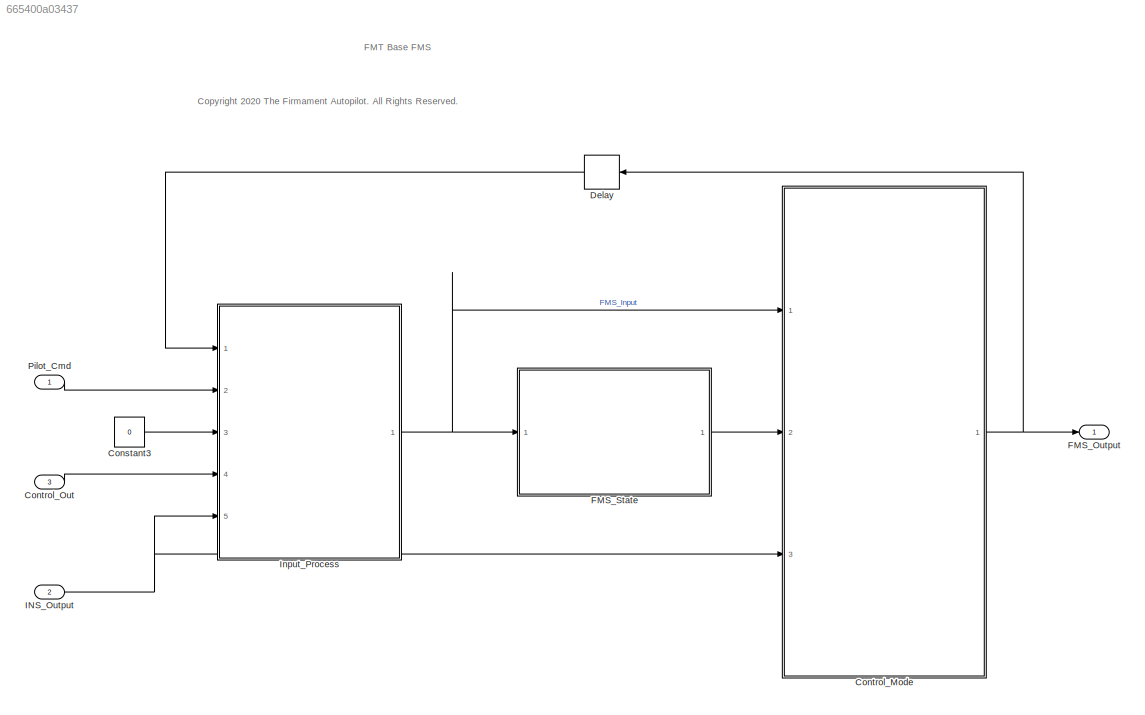
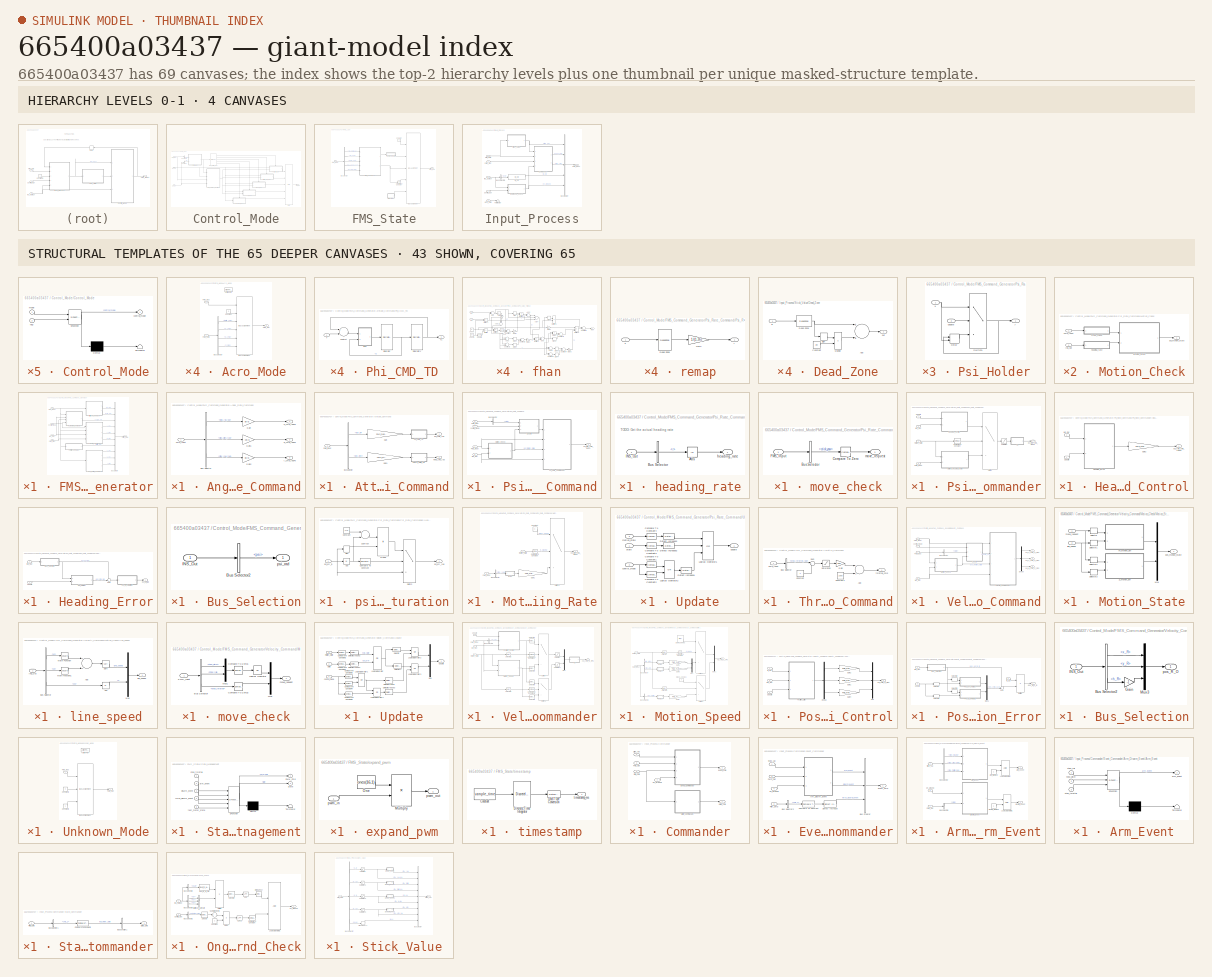
[diagram: thumbnail index - top-2 hierarchy levels (4 canvases) + 43 structural-template representatives of the remaining 65 canvases]
MODEL slx_665400a03437
KIND model
CONFIG AbsTol = auto
CONFIG EnableMultiTasking = off
CONFIG FixedStep = FMS_dt
CONFIG MaxStep = auto
CONFIG MinStep = auto
CONFIG RelTol = 1e-3
CONFIG SampleTimeConstraint = Unconstrained
CONFIG Solver = FixedStepDiscrete
CONFIG SolverName = FixedStepDiscrete
CONFIG StartTime = 0.0
CONFIG StopTime = 10.0
BLOCK [Constant] Constant3
  Value = 0
BLOCK [SubSystem] Control_Mode
  Ports = [3, 1]
  RequestExecContextInheritance = off
  TreatAsAtomicUnit = on
BLOCK [SubSystem] Control_Mode/Acro_Mode
  Ports = [2, 1, 0, 0, 0, 0, 0, 1]
  RequestExecContextInheritance = off
  TreatAsAtomicUnit = on
BLOCK [ActionPort] Control_Mode/Acro_Mode/Action Port
  ActionType = case
  InitializeStates = reset
BLOCK [BusAssignment] Control_Mode/Acro_Mode/Bus Assignment
  AssignedSignals = mode,throttle_cmd,p_cmd,q_cmd,r_cmd
  Ports = [6, 1]
BLOCK [BusSelector] Control_Mode/Acro_Mode/Bus Selector
  OutputAsBus = off
  OutputSignals = throttle_cmd,p_cmd,q_cmd,r_cmd
  Ports = [1, 4]
BLOCK [Constant] Control_Mode/Acro_Mode/Constant
  OutDataTypeStr = Inherit: Inherit via back propagation
  Value = 5
BLOCK [Inport] Control_Mode/Acro_Mode/FMS_Bus
  IconDisplay = Port number
BLOCK [Inport] Control_Mode/Acro_Mode/FMS_Cmd
  IconDisplay = Port number
  Port = 2
BLOCK [Outport] Control_Mode/Acro_Mode/FMS_Out
  IconDisplay = Port number
BLOCK [SubSystem] Control_Mode/Altitude_Hold_Mode
  Ports = [2, 1, 0, 0, 0, 0, 0, 1]
  RequestExecContextInheritance = off
  TreatAsAtomicUnit = on
BLOCK [ActionPort] Control_Mode/Altitude_Hold_Mode/Action Port
  ActionType = case
  InitializeStates = reset
BLOCK [BusAssignment] Control_Mode/Altitude_Hold_Mode/Bus Assignment
  AssignedSignals = mode,phi_cmd,theta_cmd,w_cmd,psi_rate_cmd
  Ports = [6, 1]
BLOCK [BusSelector] Control_Mode/Altitude_Hold_Mode/Bus Selector
  OutputAsBus = off
  OutputSignals = phi_cmd,thera_cmd,w_cmd,psi_rate_cmd
  Ports = [1, 4]
BLOCK [Inport] Control_Mode/Altitude_Hold_Mode/FMS_Bus
  IconDisplay = Port number
BLOCK [Inport] Control_Mode/Altitude_Hold_Mode/FMS_Cmd
  IconDisplay = Port number
  Port = 2
BLOCK [Outport] Control_Mode/Altitude_Hold_Mode/FMS_Out
  IconDisplay = Port number
BLOCK [Constant] Control_Mode/Altitude_Hold_Mode/alt_hold_mode
  OutDataTypeStr = Inherit: Inherit via back propagation
  Value = 3
BLOCK [BusSelector] Control_Mode/Bus Selector
  OutputAsBus = off
  OutputSignals = flag
  Ports = [1, 1]
BLOCK [BusSelector] Control_Mode/Bus Selector1
  OutputAsBus = off
  OutputSignals = stick_val.mode
  Ports = [1, 1]
BLOCK [SubSystem] Control_Mode/Control_Mode
  ErrorFcn = Stateflow.Translate.translate
  PermitHierarchicalResolution = ExplicitOnly
  Ports = [2, 1]
  RequestExecContextInheritance = off
  SFBlockType = Chart
  TreatAsAtomicUnit = on
BLOCK [Demux] Control_Mode/Control_Mode/ Demux 
  Outputs = 1
  Ports = [1, 1]
BLOCK [S-Function] Control_Mode/Control_Mode/ SFunction 
  EnableBusSupport = on
  FunctionName = sf_sfun
  PortCounts = [2 2]
  Ports = [2, 2]
  SFcnIsStateOwnerBlock = off
  SFunctionDeploymentMode = off
  Tag = Stateflow S-Function FMS 1
BLOCK [Terminator] Control_Mode/Control_Mode/ Terminator 
BLOCK [Outport] Control_Mode/Control_Mode/control_mode
  IconDisplay = Port number
BLOCK [Inport] Control_Mode/Control_Mode/flag
  IconDisplay = Port number
  Port = 2
BLOCK [Inport] Control_Mode/Control_Mode/mode
  IconDisplay = Port number
BLOCK [Inport] Control_Mode/FMS_Bus
  IconDisplay = Port number
  Port = 2
BLOCK [SubSystem] Control_Mode/FMS_Command_Generator
  Ports = [4, 1]
  RequestExecContextInheritance = off
BLOCK [SubSystem] Control_Mode/FMS_Command_Generator/Angel_Rate_Command
  Ports = [1, 3]
  RequestExecContextInheritance = off
BLOCK [BusSelector] Control_Mode/FMS_Command_Generator/Angel_Rate_Command/Bus Selector
  OutputAsBus = off
  OutputSignals = stick_val.stick_roll_raw,stick_val.stick_pitch_raw,stick_val.stick_yaw_raw
  Ports = [1, 3]
BLOCK [Inport] Control_Mode/FMS_Command_Generator/Angel_Rate_Command/FMS_Input
  IconDisplay = Port number
BLOCK [Gain] Control_Mode/FMS_Command_Generator/Angel_Rate_Command/Gain
  Gain = pi/3
  ParamDataTypeStr = Inherit: Inherit via internal rule
  SaturateOnIntegerOverflow = off
BLOCK [Gain] Control_Mode/FMS_Command_Generator/Angel_Rate_Command/Gain1
  Gain = -pi/3
  ParamDataTypeStr = Inherit: Inherit via internal rule
  SaturateOnIntegerOverflow = off
BLOCK [Gain] Control_Mode/FMS_Command_Generator/Angel_Rate_Command/Gain2
  Gain = pi/3
  ParamDataTypeStr = Inherit: Inherit via internal rule
  SaturateOnIntegerOverflow = off
BLOCK [Outport] Control_Mode/FMS_Command_Generator/Angel_Rate_Command/p_cmd_radPs
  IconDisplay = Port number
BLOCK [Outport] Control_Mode/FMS_Command_Generator/Angel_Rate_Command/q_cmd_radPs
  IconDisplay = Port number
  Port = 2
BLOCK [Outport] Control_Mode/FMS_Command_Generator/Angel_Rate_Command/r_cmd_radPs
  IconDisplay = Port number
  Port = 3
BLOCK [SubSystem] Control_Mode/FMS_Command_Generator/Attitude_Command
  Ports = [1, 2]
  RequestExecContextInheritance = off
BLOCK [BusSelector] Control_Mode/FMS_Command_Generator/Attitude_Command/Bus Selector
  OutputAsBus = off
  OutputSignals = stick_val.stick_roll,stick_val.stick_pitch
  Ports = [1, 2]
BLOCK [Inport] Control_Mode/FMS_Command_Generator/Attitude_Command/FMS_Input
  IconDisplay = Port number
BLOCK [Gain] Control_Mode/FMS_Command_Generator/Attitude_Command/Gain
  Gain = FMS_PARAM.ROLL_PITCH_LIM
  OutDataTypeStr = Inherit: Inherit via internal rule
  ParamDataTypeStr = Inherit: Inherit via internal rule
  SaturateOnIntegerOverflow = off
BLOCK [Gain] Control_Mode/FMS_Command_Generator/Attitude_Command/Gain1
  Gain = -FMS_PARAM.ROLL_PITCH_LIM
  OutDataTypeStr = Inherit: Inherit via internal rule
  ParamDataTypeStr = Inherit: Inherit via internal rule
  SaturateOnIntegerOverflow = off
BLOCK [SubSystem] Control_Mode/FMS_Command_Generator/Attitude_Command/Phi_CMD_TD
  Ports = [1, 1]
  RequestExecContextInheritance = off
BLOCK [DiscreteIntegrator] Control_Mode/FMS_Command_Generator/Attitude_Command/Phi_CMD_TD/Integrator
  ICPrevOutput = DiscIntNeverNeededParam
  ICPrevScaledInput = DiscIntNeverNeededParam
  InitialConditionSetting = Auto
  Ports = [1, 1]
  SampleTime = -1
BLOCK [DiscreteIntegrator] Control_Mode/FMS_Command_Generator/Attitude_Command/Phi_CMD_TD/Integrator1
  ICPrevOutput = DiscIntNeverNeededParam
  ICPrevScaledInput = DiscIntNeverNeededParam
  InitialConditionSetting = Auto
  Ports = [1, 1]
  SampleTime = -1
BLOCK [Sum] Control_Mode/FMS_Command_Generator/Attitude_Command/Phi_CMD_TD/Subtract
  InputSameDT = off
  Inputs = +-
  OutDataTypeStr = Inherit: Inherit via internal rule
  Ports = [2, 1]
  SaturateOnIntegerOverflow = off
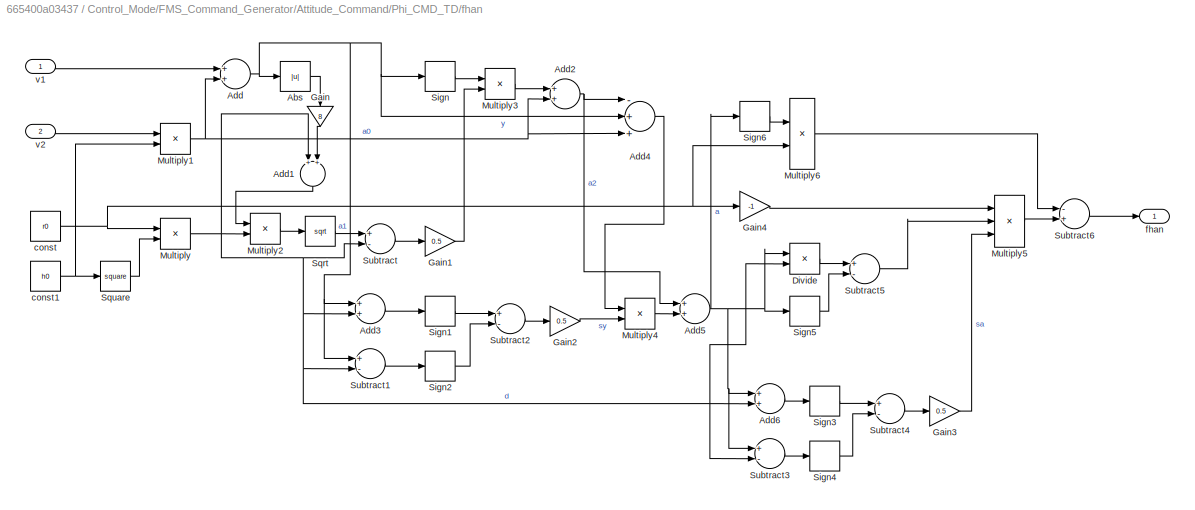
BLOCK [SubSystem] Control_Mode/FMS_Command_Generator/Attitude_Command/Phi_CMD_TD/fhan 
  Ports = [2, 1]
  RequestExecContextInheritance = off
BLOCK [Abs] Control_Mode/FMS_Command_Generator/Attitude_Command/Phi_CMD_TD/fhan /Abs
  SaturateOnIntegerOverflow = off
BLOCK [Sum] Control_Mode/FMS_Command_Generator/Attitude_Command/Phi_CMD_TD/fhan /Add
  InputSameDT = off
  Ports = [2, 1]
  SaturateOnIntegerOverflow = off
BLOCK [Sum] Control_Mode/FMS_Command_Generator/Attitude_Command/Phi_CMD_TD/fhan /Add1
  InputSameDT = off
  Ports = [2, 1]
  SaturateOnIntegerOverflow = off
BLOCK [Sum] Control_Mode/FMS_Command_Generator/Attitude_Command/Phi_CMD_TD/fhan /Add2
  InputSameDT = off
  Ports = [2, 1]
  SaturateOnIntegerOverflow = off
BLOCK [Sum] Control_Mode/FMS_Command_Generator/Attitude_Command/Phi_CMD_TD/fhan /Add3
  InputSameDT = off
  Ports = [2, 1]
  SaturateOnIntegerOverflow = off
BLOCK [Sum] Control_Mode/FMS_Command_Generator/Attitude_Command/Phi_CMD_TD/fhan /Add4
  InputSameDT = off
  Inputs = -++
  OutDataTypeStr = Inherit: Inherit via internal rule
  Ports = [3, 1]
  SaturateOnIntegerOverflow = off
BLOCK [Sum] Control_Mode/FMS_Command_Generator/Attitude_Command/Phi_CMD_TD/fhan /Add5
  InputSameDT = off
  Ports = [2, 1]
  SaturateOnIntegerOverflow = off
BLOCK [Sum] Control_Mode/FMS_Command_Generator/Attitude_Command/Phi_CMD_TD/fhan /Add6
  InputSameDT = off
  Ports = [2, 1]
  SaturateOnIntegerOverflow = off
BLOCK [Product] Control_Mode/FMS_Command_Generator/Attitude_Command/Phi_CMD_TD/fhan /Divide
  InputSameDT = off
  Inputs = */
  OutDataTypeStr = Inherit: Inherit via internal rule
  Ports = [2, 1]
  RndMeth = Floor
  SaturateOnIntegerOverflow = off
BLOCK [Gain] Control_Mode/FMS_Command_Generator/Attitude_Command/Phi_CMD_TD/fhan /Gain
  Gain = 8
  OutDataTypeStr = Inherit: Inherit via internal rule
  ParamDataTypeStr = Inherit: Inherit via internal rule
  SaturateOnIntegerOverflow = off
BLOCK [Gain] Control_Mode/FMS_Command_Generator/Attitude_Command/Phi_CMD_TD/fhan /Gain1
  Gain = 0.5
  ParamDataTypeStr = Inherit: Inherit via internal rule
  SaturateOnIntegerOverflow = off
BLOCK [Gain] Control_Mode/FMS_Command_Generator/Attitude_Command/Phi_CMD_TD/fhan /Gain2
  Gain = 0.5
  ParamDataTypeStr = Inherit: Inherit via internal rule
  SaturateOnIntegerOverflow = off
BLOCK [Gain] Control_Mode/FMS_Command_Generator/Attitude_Command/Phi_CMD_TD/fhan /Gain3
  Gain = 0.5
  ParamDataTypeStr = Inherit: Inherit via internal rule
  SaturateOnIntegerOverflow = off
BLOCK [Gain] Control_Mode/FMS_Command_Generator/Attitude_Command/Phi_CMD_TD/fhan /Gain4
  Gain = -1
  ParamDataTypeStr = Inherit: Inherit via internal rule
  SaturateOnIntegerOverflow = off
BLOCK [Product] Control_Mode/FMS_Command_Generator/Attitude_Command/Phi_CMD_TD/fhan /Multiply
  InputSameDT = off
  Ports = [2, 1]
  RndMeth = Floor
  SaturateOnIntegerOverflow = off
BLOCK [Product] Control_Mode/FMS_Command_Generator/Attitude_Command/Phi_CMD_TD/fhan /Multiply1
  InputSameDT = off
  Ports = [2, 1]
  RndMeth = Floor
  SaturateOnIntegerOverflow = off
BLOCK [Product] Control_Mode/FMS_Command_Generator/Attitude_Command/Phi_CMD_TD/fhan /Multiply2
  InputSameDT = off
  Ports = [2, 1]
  RndMeth = Floor
  SaturateOnIntegerOverflow = off
BLOCK [Product] Control_Mode/FMS_Command_Generator/Attitude_Command/Phi_CMD_TD/fhan /Multiply3
  InputSameDT = off
  Ports = [2, 1]
  RndMeth = Floor
  SaturateOnIntegerOverflow = off
BLOCK [Product] Control_Mode/FMS_Command_Generator/Attitude_Command/Phi_CMD_TD/fhan /Multiply4
  InputSameDT = off
  OutDataTypeStr = single
  Ports = [2, 1]
  RndMeth = Floor
  SaturateOnIntegerOverflow = off
BLOCK [Product] Control_Mode/FMS_Command_Generator/Attitude_Command/Phi_CMD_TD/fhan /Multiply5
  InputSameDT = off
  Inputs = 3
  OutDataTypeStr = Inherit: Inherit via internal rule
  Ports = [3, 1]
  RndMeth = Floor
  SaturateOnIntegerOverflow = off
BLOCK [Product] Control_Mode/FMS_Command_Generator/Attitude_Command/Phi_CMD_TD/fhan /Multiply6
  InputSameDT = off
  OutDataTypeStr = single
  Ports = [2, 1]
  RndMeth = Floor
  SaturateOnIntegerOverflow = off
BLOCK [Signum] Control_Mode/FMS_Command_Generator/Attitude_Command/Phi_CMD_TD/fhan /Sign
BLOCK [Signum] Control_Mode/FMS_Command_Generator/Attitude_Command/Phi_CMD_TD/fhan /Sign1
BLOCK [Signum] Control_Mode/FMS_Command_Generator/Attitude_Command/Phi_CMD_TD/fhan /Sign2
BLOCK [Signum] Control_Mode/FMS_Command_Generator/Attitude_Command/Phi_CMD_TD/fhan /Sign3
BLOCK [Signum] Control_Mode/FMS_Command_Generator/Attitude_Command/Phi_CMD_TD/fhan /Sign4
BLOCK [Signum] Control_Mode/FMS_Command_Generator/Attitude_Command/Phi_CMD_TD/fhan /Sign5
BLOCK [Signum] Control_Mode/FMS_Command_Generator/Attitude_Command/Phi_CMD_TD/fhan /Sign6
BLOCK [Sqrt] Control_Mode/FMS_Command_Generator/Attitude_Command/Phi_CMD_TD/fhan /Sqrt
BLOCK [Math] Control_Mode/FMS_Command_Generator/Attitude_Command/Phi_CMD_TD/fhan /Square
  Operator = square
  Ports = [1, 1]
BLOCK [Sum] Control_Mode/FMS_Command_Generator/Attitude_Command/Phi_CMD_TD/fhan /Subtract
  InputSameDT = off
  Inputs = +-
  Ports = [2, 1]
  SaturateOnIntegerOverflow = off
BLOCK [Sum] Control_Mode/FMS_Command_Generator/Attitude_Command/Phi_CMD_TD/fhan /Subtract1
  InputSameDT = off
  Inputs = +-
  Ports = [2, 1]
  SaturateOnIntegerOverflow = off
BLOCK [Sum] Control_Mode/FMS_Command_Generator/Attitude_Command/Phi_CMD_TD/fhan /Subtract2
  InputSameDT = off
  Inputs = +-
  Ports = [2, 1]
  SaturateOnIntegerOverflow = off
BLOCK [Sum] Control_Mode/FMS_Command_Generator/Attitude_Command/Phi_CMD_TD/fhan /Subtract3
  InputSameDT = off
  Inputs = +-
  Ports = [2, 1]
  SaturateOnIntegerOverflow = off
BLOCK [Sum] Control_Mode/FMS_Command_Generator/Attitude_Command/Phi_CMD_TD/fhan /Subtract4
  InputSameDT = off
  Inputs = +-
  Ports = [2, 1]
  SaturateOnIntegerOverflow = off
BLOCK [Sum] Control_Mode/FMS_Command_Generator/Attitude_Command/Phi_CMD_TD/fhan /Subtract5
  InputSameDT = off
  Inputs = +-
  Ports = [2, 1]
  SaturateOnIntegerOverflow = off
BLOCK [Sum] Control_Mode/FMS_Command_Generator/Attitude_Command/Phi_CMD_TD/fhan /Subtract6
  InputSameDT = off
  Inputs = -+
  Ports = [2, 1]
  SaturateOnIntegerOverflow = off
BLOCK [Constant] Control_Mode/FMS_Command_Generator/Attitude_Command/Phi_CMD_TD/fhan /const
  OutDataTypeStr = single
  Value = r0
BLOCK [Constant] Control_Mode/FMS_Command_Generator/Attitude_Command/Phi_CMD_TD/fhan /const1
  OutDataTypeStr = single
  Value = h0
BLOCK [Outport] Control_Mode/FMS_Command_Generator/Attitude_Command/Phi_CMD_TD/fhan /fhan
  IconDisplay = Port number
BLOCK [Inport] Control_Mode/FMS_Command_Generator/Attitude_Command/Phi_CMD_TD/fhan /v1
  IconDisplay = Port number
BLOCK [Inport] Control_Mode/FMS_Command_Generator/Attitude_Command/Phi_CMD_TD/fhan /v2
  IconDisplay = Port number
  Port = 2
BLOCK [Inport] Control_Mode/FMS_Command_Generator/Attitude_Command/Phi_CMD_TD/v
  IconDisplay = Port number
BLOCK [Outport] Control_Mode/FMS_Command_Generator/Attitude_Command/Phi_CMD_TD/v1
  IconDisplay = Port number
BLOCK [SubSystem] Control_Mode/FMS_Command_Generator/Attitude_Command/Thera_CMD_TD
  Ports = [1, 1]
  RequestExecContextInheritance = off
BLOCK [DiscreteIntegrator] Control_Mode/FMS_Command_Generator/Attitude_Command/Thera_CMD_TD/Integrator
  ICPrevOutput = DiscIntNeverNeededParam
  ICPrevScaledInput = DiscIntNeverNeededParam
  InitialConditionSetting = Auto
  Ports = [1, 1]
  SampleTime = -1
BLOCK [DiscreteIntegrator] Control_Mode/FMS_Command_Generator/Attitude_Command/Thera_CMD_TD/Integrator1
  ICPrevOutput = DiscIntNeverNeededParam
  ICPrevScaledInput = DiscIntNeverNeededParam
  InitialConditionSetting = Auto
  Ports = [1, 1]
  SampleTime = -1
BLOCK [Sum] Control_Mode/FMS_Command_Generator/Attitude_Command/Thera_CMD_TD/Subtract
  InputSameDT = off
  Inputs = +-
  OutDataTypeStr = Inherit: Inherit via internal rule
  Ports = [2, 1]
  SaturateOnIntegerOverflow = off
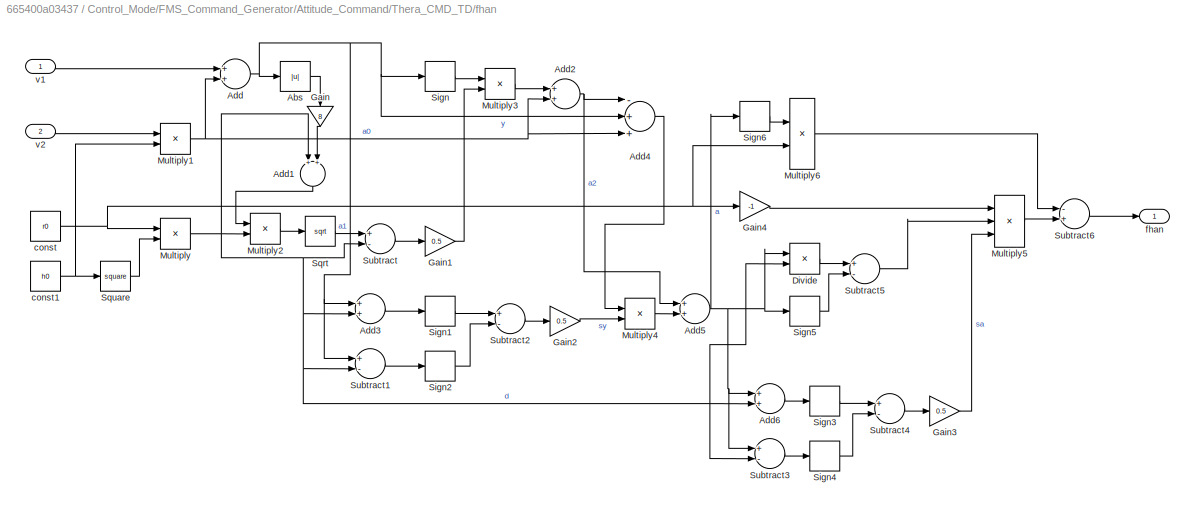
BLOCK [SubSystem] Control_Mode/FMS_Command_Generator/Attitude_Command/Thera_CMD_TD/fhan 
  Ports = [2, 1]
  RequestExecContextInheritance = off
BLOCK [Abs] Control_Mode/FMS_Command_Generator/Attitude_Command/Thera_CMD_TD/fhan /Abs
  SaturateOnIntegerOverflow = off
BLOCK [Sum] Control_Mode/FMS_Command_Generator/Attitude_Command/Thera_CMD_TD/fhan /Add
  InputSameDT = off
  Ports = [2, 1]
  SaturateOnIntegerOverflow = off
BLOCK [Sum] Control_Mode/FMS_Command_Generator/Attitude_Command/Thera_CMD_TD/fhan /Add1
  InputSameDT = off
  Ports = [2, 1]
  SaturateOnIntegerOverflow = off
BLOCK [Sum] Control_Mode/FMS_Command_Generator/Attitude_Command/Thera_CMD_TD/fhan /Add2
  InputSameDT = off
  Ports = [2, 1]
  SaturateOnIntegerOverflow = off
BLOCK [Sum] Control_Mode/FMS_Command_Generator/Attitude_Command/Thera_CMD_TD/fhan /Add3
  InputSameDT = off
  Ports = [2, 1]
  SaturateOnIntegerOverflow = off
BLOCK [Sum] Control_Mode/FMS_Command_Generator/Attitude_Command/Thera_CMD_TD/fhan /Add4
  InputSameDT = off
  Inputs = -++
  OutDataTypeStr = Inherit: Inherit via internal rule
  Ports = [3, 1]
  SaturateOnIntegerOverflow = off
BLOCK [Sum] Control_Mode/FMS_Command_Generator/Attitude_Command/Thera_CMD_TD/fhan /Add5
  InputSameDT = off
  Ports = [2, 1]
  SaturateOnIntegerOverflow = off
BLOCK [Sum] Control_Mode/FMS_Command_Generator/Attitude_Command/Thera_CMD_TD/fhan /Add6
  InputSameDT = off
  Ports = [2, 1]
  SaturateOnIntegerOverflow = off
BLOCK [Product] Control_Mode/FMS_Command_Generator/Attitude_Command/Thera_CMD_TD/fhan /Divide
  InputSameDT = off
  Inputs = */
  OutDataTypeStr = Inherit: Inherit via internal rule
  Ports = [2, 1]
  RndMeth = Floor
  SaturateOnIntegerOverflow = off
BLOCK [Gain] Control_Mode/FMS_Command_Generator/Attitude_Command/Thera_CMD_TD/fhan /Gain
  Gain = 8
  OutDataTypeStr = Inherit: Inherit via internal rule
  ParamDataTypeStr = Inherit: Inherit via internal rule
  SaturateOnIntegerOverflow = off
BLOCK [Gain] Control_Mode/FMS_Command_Generator/Attitude_Command/Thera_CMD_TD/fhan /Gain1
  Gain = 0.5
  ParamDataTypeStr = Inherit: Inherit via internal rule
  SaturateOnIntegerOverflow = off
BLOCK [Gain] Control_Mode/FMS_Command_Generator/Attitude_Command/Thera_CMD_TD/fhan /Gain2
  Gain = 0.5
  ParamDataTypeStr = Inherit: Inherit via internal rule
  SaturateOnIntegerOverflow = off
BLOCK [Gain] Control_Mode/FMS_Command_Generator/Attitude_Command/Thera_CMD_TD/fhan /Gain3
  Gain = 0.5
  ParamDataTypeStr = Inherit: Inherit via internal rule
  SaturateOnIntegerOverflow = off
BLOCK [Gain] Control_Mode/FMS_Command_Generator/Attitude_Command/Thera_CMD_TD/fhan /Gain4
  Gain = -1
  ParamDataTypeStr = Inherit: Inherit via internal rule
  SaturateOnIntegerOverflow = off
BLOCK [Product] Control_Mode/FMS_Command_Generator/Attitude_Command/Thera_CMD_TD/fhan /Multiply
  InputSameDT = off
  Ports = [2, 1]
  RndMeth = Floor
  SaturateOnIntegerOverflow = off
BLOCK [Product] Control_Mode/FMS_Command_Generator/Attitude_Command/Thera_CMD_TD/fhan /Multiply1
  InputSameDT = off
  Ports = [2, 1]
  RndMeth = Floor
  SaturateOnIntegerOverflow = off
BLOCK [Product] Control_Mode/FMS_Command_Generator/Attitude_Command/Thera_CMD_TD/fhan /Multiply2
  InputSameDT = off
  Ports = [2, 1]
  RndMeth = Floor
  SaturateOnIntegerOverflow = off
BLOCK [Product] Control_Mode/FMS_Command_Generator/Attitude_Command/Thera_CMD_TD/fhan /Multiply3
  InputSameDT = off
  Ports = [2, 1]
  RndMeth = Floor
  SaturateOnIntegerOverflow = off
BLOCK [Product] Control_Mode/FMS_Command_Generator/Attitude_Command/Thera_CMD_TD/fhan /Multiply4
  InputSameDT = off
  OutDataTypeStr = single
  Ports = [2, 1]
  RndMeth = Floor
  SaturateOnIntegerOverflow = off
BLOCK [Product] Control_Mode/FMS_Command_Generator/Attitude_Command/Thera_CMD_TD/fhan /Multiply5
  InputSameDT = off
  Inputs = 3
  OutDataTypeStr = Inherit: Inherit via internal rule
  Ports = [3, 1]
  RndMeth = Floor
  SaturateOnIntegerOverflow = off
BLOCK [Product] Control_Mode/FMS_Command_Generator/Attitude_Command/Thera_CMD_TD/fhan /Multiply6
  InputSameDT = off
  OutDataTypeStr = single
  Ports = [2, 1]
  RndMeth = Floor
  SaturateOnIntegerOverflow = off
BLOCK [Signum] Control_Mode/FMS_Command_Generator/Attitude_Command/Thera_CMD_TD/fhan /Sign
BLOCK [Signum] Control_Mode/FMS_Command_Generator/Attitude_Command/Thera_CMD_TD/fhan /Sign1
BLOCK [Signum] Control_Mode/FMS_Command_Generator/Attitude_Command/Thera_CMD_TD/fhan /Sign2
BLOCK [Signum] Control_Mode/FMS_Command_Generator/Attitude_Command/Thera_CMD_TD/fhan /Sign3
BLOCK [Signum] Control_Mode/FMS_Command_Generator/Attitude_Command/Thera_CMD_TD/fhan /Sign4
BLOCK [Signum] Control_Mode/FMS_Command_Generator/Attitude_Command/Thera_CMD_TD/fhan /Sign5
BLOCK [Signum] Control_Mode/FMS_Command_Generator/Attitude_Command/Thera_CMD_TD/fhan /Sign6
BLOCK [Sqrt] Control_Mode/FMS_Command_Generator/Attitude_Command/Thera_CMD_TD/fhan /Sqrt
BLOCK [Math] Control_Mode/FMS_Command_Generator/Attitude_Command/Thera_CMD_TD/fhan /Square
  Operator = square
  Ports = [1, 1]
BLOCK [Sum] Control_Mode/FMS_Command_Generator/Attitude_Command/Thera_CMD_TD/fhan /Subtract
  InputSameDT = off
  Inputs = +-
  Ports = [2, 1]
  SaturateOnIntegerOverflow = off
BLOCK [Sum] Control_Mode/FMS_Command_Generator/Attitude_Command/Thera_CMD_TD/fhan /Subtract1
  InputSameDT = off
  Inputs = +-
  Ports = [2, 1]
  SaturateOnIntegerOverflow = off
BLOCK [Sum] Control_Mode/FMS_Command_Generator/Attitude_Command/Thera_CMD_TD/fhan /Subtract2
  InputSameDT = off
  Inputs = +-
  Ports = [2, 1]
  SaturateOnIntegerOverflow = off
BLOCK [Sum] Control_Mode/FMS_Command_Generator/Attitude_Command/Thera_CMD_TD/fhan /Subtract3
  InputSameDT = off
  Inputs = +-
  Ports = [2, 1]
  SaturateOnIntegerOverflow = off
BLOCK [Sum] Control_Mode/FMS_Command_Generator/Attitude_Command/Thera_CMD_TD/fhan /Subtract4
  InputSameDT = off
  Inputs = +-
  Ports = [2, 1]
  SaturateOnIntegerOverflow = off
BLOCK [Sum] Control_Mode/FMS_Command_Generator/Attitude_Command/Thera_CMD_TD/fhan /Subtract5
  InputSameDT = off
  Inputs = +-
  Ports = [2, 1]
  SaturateOnIntegerOverflow = off
BLOCK [Sum] Control_Mode/FMS_Command_Generator/Attitude_Command/Thera_CMD_TD/fhan /Subtract6
  InputSameDT = off
  Inputs = -+
  Ports = [2, 1]
  SaturateOnIntegerOverflow = off
BLOCK [Constant] Control_Mode/FMS_Command_Generator/Attitude_Command/Thera_CMD_TD/fhan /const
  OutDataTypeStr = single
  Value = r0
BLOCK [Constant] Control_Mode/FMS_Command_Generator/Attitude_Command/Thera_CMD_TD/fhan /const1
  OutDataTypeStr = single
  Value = h0
BLOCK [Outport] Control_Mode/FMS_Command_Generator/Attitude_Command/Thera_CMD_TD/fhan /fhan
  IconDisplay = Port number
BLOCK [Inport] Control_Mode/FMS_Command_Generator/Attitude_Command/Thera_CMD_TD/fhan /v1
  IconDisplay = Port number
BLOCK [Inport] Control_Mode/FMS_Command_Generator/Attitude_Command/Thera_CMD_TD/fhan /v2
  IconDisplay = Port number
  Port = 2
BLOCK [Inport] Control_Mode/FMS_Command_Generator/Attitude_Command/Thera_CMD_TD/v
  IconDisplay = Port number
BLOCK [Outport] Control_Mode/FMS_Command_Generator/Attitude_Command/Thera_CMD_TD/v1
  IconDisplay = Port number
BLOCK [Outport] Control_Mode/FMS_Command_Generator/Attitude_Command/phi_cmd_rad
  IconDisplay = Port number
BLOCK [Outport] Control_Mode/FMS_Command_Generator/Attitude_Command/theta_cmd_rad
  IconDisplay = Port number
  Port = 2
BLOCK [BusCreator] Control_Mode/FMS_Command_Generator/Bus Creator
  DisplayOption = bar
  InheritFromInputs = on
  Inputs = 10
  Ports = [10, 1]
BLOCK [Inport] Control_Mode/FMS_Command_Generator/FMS_Bus
  IconDisplay = Port number
  Port = 2
BLOCK [Outport] Control_Mode/FMS_Command_Generator/FMS_Cmd
  IconDisplay = Port number
BLOCK [Inport] Control_Mode/FMS_Command_Generator/FMS_Input
  IconDisplay = Port number
  Port = 3
BLOCK [Inport] Control_Mode/FMS_Command_Generator/INS_Out
  IconDisplay = Port number
  Port = 4
BLOCK [SubSystem] Control_Mode/FMS_Command_Generator/Psi_Rate_Command
  Ports = [4, 1]
  RequestExecContextInheritance = off
BLOCK [BusSelector] Control_Mode/FMS_Command_Generator/Psi_Rate_Command/Bus Selector
  OutputAsBus = off
  OutputSignals = state
  Ports = [1, 1]
BLOCK [Inport] Control_Mode/FMS_Command_Generator/Psi_Rate_Command/FMS_Bus
  IconDisplay = Port number
  Port = 3
BLOCK [Inport] Control_Mode/FMS_Command_Generator/Psi_Rate_Command/FMS_Input
  IconDisplay = Port number
BLOCK [Inport] Control_Mode/FMS_Command_Generator/Psi_Rate_Command/INS_Out
  IconDisplay = Port number
  Port = 2
BLOCK [SubSystem] Control_Mode/FMS_Command_Generator/Psi_Rate_Command/Motion_Check
  Ports = [2, 1]
  RequestExecContextInheritance = off
BLOCK [Inport] Control_Mode/FMS_Command_Generator/Psi_Rate_Command/Motion_Check/FMS_Input
  IconDisplay = Port number
BLOCK [Inport] Control_Mode/FMS_Command_Generator/Psi_Rate_Command/Motion_Check/INS_Out
  IconDisplay = Port number
  Port = 2
BLOCK [SubSystem] Control_Mode/FMS_Command_Generator/Psi_Rate_Command/Motion_Check/Motion_State
  ErrorFcn = Stateflow.Translate.translate
  PermitHierarchicalResolution = ExplicitOnly
  Ports = [2, 1]
  RequestExecContextInheritance = off
  SFBlockType = Chart
  TreatAsAtomicUnit = on
BLOCK [Demux] Control_Mode/FMS_Command_Generator/Psi_Rate_Command/Motion_Check/Motion_State/ Demux 
  Outputs = 1
  Ports = [1, 1]
BLOCK [S-Function] Control_Mode/FMS_Command_Generator/Psi_Rate_Command/Motion_Check/Motion_State/ SFunction 
  EnableBusSupport = on
  FunctionName = sf_sfun
  PortCounts = [2 2]
  Ports = [2, 2]
  SFcnIsStateOwnerBlock = off
  SFunctionDeploymentMode = off
  Tag = Stateflow S-Function FMS 3
BLOCK [Terminator] Control_Mode/FMS_Command_Generator/Psi_Rate_Command/Motion_Check/Motion_State/ Terminator 
BLOCK [Inport] Control_Mode/FMS_Command_Generator/Psi_Rate_Command/Motion_Check/Motion_State/heading_rate
  IconDisplay = Port number
  Port = 2
BLOCK [Inport] Control_Mode/FMS_Command_Generator/Psi_Rate_Command/Motion_Check/Motion_State/move_cmd
  IconDisplay = Port number
BLOCK [Outport] Control_Mode/FMS_Command_Generator/Psi_Rate_Command/Motion_Check/Motion_State/state
  IconDisplay = Port number
BLOCK [SubSystem] Control_Mode/FMS_Command_Generator/Psi_Rate_Command/Motion_Check/heading_rate
  Ports = [1, 1]
  RequestExecContextInheritance = off
BLOCK [Abs] Control_Mode/FMS_Command_Generator/Psi_Rate_Command/Motion_Check/heading_rate/Abs
  SaturateOnIntegerOverflow = off
BLOCK [BusSelector] Control_Mode/FMS_Command_Generator/Psi_Rate_Command/Motion_Check/heading_rate/Bus Selector
  OutputAsBus = off
  OutputSignals = r
  Ports = [1, 1]
BLOCK [Inport] Control_Mode/FMS_Command_Generator/Psi_Rate_Command/Motion_Check/heading_rate/INS_Out
  IconDisplay = Port number
BLOCK [Outport] Control_Mode/FMS_Command_Generator/Psi_Rate_Command/Motion_Check/heading_rate/heading_rate
  IconDisplay = Port number
BLOCK [SubSystem] Control_Mode/FMS_Command_Generator/Psi_Rate_Command/Motion_Check/move_check
  Ports = [1, 1]
  RequestExecContextInheritance = off
BLOCK [BusSelector] Control_Mode/FMS_Command_Generator/Psi_Rate_Command/Motion_Check/move_check/Bus Selector
  OutputAsBus = off
  OutputSignals = stick_val.stick_yaw
  Ports = [1, 1]
BLOCK [Reference] Control_Mode/FMS_Command_Generator/Psi_Rate_Command/Motion_Check/move_check/Compare To Zero  REF=simulink/Logic and Bit
Operations/Compare
To Zero
  Ports = [1, 1]
  SourceBlock = simulink/Logic and Bit\nOperations/Compare\nTo Zero
  SourceProductBaseCode = SL
  SourceProductName = Simulink
  SourceType = Compare To Zero
BLOCK [Inport] Control_Mode/FMS_Command_Generator/Psi_Rate_Command/Motion_Check/move_check/FMS_Input
  IconDisplay = Port number
BLOCK [Outport] Control_Mode/FMS_Command_Generator/Psi_Rate_Command/Motion_Check/move_check/move_request
  IconDisplay = Port number
BLOCK [Outport] Control_Mode/FMS_Command_Generator/Psi_Rate_Command/Motion_Check/psi_motion_state
  IconDisplay = Port number
BLOCK [SubSystem] Control_Mode/FMS_Command_Generator/Psi_Rate_Command/Psi_Rate_Commander
  Ports = [4, 1]
  RequestExecContextInheritance = off
BLOCK [Reference] Control_Mode/FMS_Command_Generator/Psi_Rate_Command/Psi_Rate_Commander/Compare To Constant  REF=simulink/Logic and Bit
Operations/Compare
To Constant
  Ports = [1, 1]
  SourceBlock = simulink/Logic and Bit\nOperations/Compare\nTo Constant
  SourceProductBaseCode = SL
  SourceProductName = Simulink
  SourceType = Compare To Constant
BLOCK [Inport] Control_Mode/FMS_Command_Generator/Psi_Rate_Command/Psi_Rate_Commander/FMS_Input
  IconDisplay = Port number
  Port = 2
BLOCK [SubSystem] Control_Mode/FMS_Command_Generator/Psi_Rate_Command/Psi_Rate_Commander/Heading_Control
  Ports = [2, 1]
  RequestExecContextInheritance = off
BLOCK [Gain] Control_Mode/FMS_Command_Generator/Psi_Rate_Command/Psi_Rate_Commander/Heading_Control/Gain2
  Gain = FMS_PARAM.YAW_P
  OutDataTypeStr = single
  ParamDataTypeStr = Inherit: Inherit via internal rule
  SaturateOnIntegerOverflow = off
BLOCK [SubSystem] Control_Mode/FMS_Command_Generator/Psi_Rate_Command/Psi_Rate_Commander/Heading_Control/Heading_Error
  Ports = [2, 1]
  RequestExecContextInheritance = off
BLOCK [SubSystem] Control_Mode/FMS_Command_Generator/Psi_Rate_Command/Psi_Rate_Commander/Heading_Control/Heading_Error/Bus_Selection
  Ports = [1, 1]
  RequestExecContextInheritance = off
BLOCK [BusSelector] Control_Mode/FMS_Command_Generator/Psi_Rate_Command/Psi_Rate_Commander/Heading_Control/Heading_Error/Bus_Selection/Bus Selector2
  OutputAsBus = off
  OutputSignals = psi
  Ports = [1, 1]
BLOCK [Inport] Control_Mode/FMS_Command_Generator/Psi_Rate_Command/Psi_Rate_Commander/Heading_Control/Heading_Error/Bus_Selection/INS_Out
  IconDisplay = Port number
BLOCK [Outport] Control_Mode/FMS_Command_Generator/Psi_Rate_Command/Psi_Rate_Commander/Heading_Control/Heading_Error/Bus_Selection/psi_rad
  IconDisplay = Port number
BLOCK [Inport] Control_Mode/FMS_Command_Generator/Psi_Rate_Command/Psi_Rate_Commander/Heading_Control/Heading_Error/INS_Out
  IconDisplay = Port number
BLOCK [SubSystem] Control_Mode/FMS_Command_Generator/Psi_Rate_Command/Psi_Rate_Commander/Heading_Control/Heading_Error/Psi_Holder
  Ports = [2, 1]
  RequestExecContextInheritance = off
BLOCK [Delay] Control_Mode/FMS_Command_Generator/Psi_Rate_Command/Psi_Rate_Commander/Heading_Control/Heading_Error/Psi_Holder/Delay
  DelayLength = 1
  InitialConditionSource = Input port
  InputPortMap = u0,p4
  Ports = [2, 1]
BLOCK [Switch] Control_Mode/FMS_Command_Generator/Psi_Rate_Command/Psi_Rate_Commander/Heading_Control/Heading_Error/Psi_Holder/Switch1
  Criteria = u2 > Threshold
  InputSameDT = off
  SaturateOnIntegerOverflow = off
BLOCK [Inport] Control_Mode/FMS_Command_Generator/Psi_Rate_Command/Psi_Rate_Commander/Heading_Control/Heading_Error/Psi_Holder/u
  IconDisplay = Port number
BLOCK [Inport] Control_Mode/FMS_Command_Generator/Psi_Rate_Command/Psi_Rate_Commander/Heading_Control/Heading_Error/Psi_Holder/update
  IconDisplay = Port number
  Port = 2
BLOCK [Outport] Control_Mode/FMS_Command_Generator/Psi_Rate_Command/Psi_Rate_Commander/Heading_Control/Heading_Error/Psi_Holder/y
  IconDisplay = Port number
BLOCK [Sum] Control_Mode/FMS_Command_Generator/Psi_Rate_Command/Psi_Rate_Commander/Heading_Control/Heading_Error/Sum
  IconShape = round
  InputSameDT = off
  Inputs = -+|
  OutDataTypeStr = Inherit: Inherit via internal rule
  Ports = [2, 1]
  SaturateOnIntegerOverflow = off
BLOCK [Outport] Control_Mode/FMS_Command_Generator/Psi_Rate_Command/Psi_Rate_Commander/Heading_Control/Heading_Error/psi_err_rad
  IconDisplay = Port number
BLOCK [SubSystem] Control_Mode/FMS_Command_Generator/Psi_Rate_Command/Psi_Rate_Commander/Heading_Control/Heading_Error/psi_err_saturation
  Ports = [1, 1]
  RequestExecContextInheritance = off
BLOCK [Abs] Control_Mode/FMS_Command_Generator/Psi_Rate_Command/Psi_Rate_Commander/Heading_Control/Heading_Error/psi_err_saturation/Abs
  SaturateOnIntegerOverflow = off
BLOCK [Reference] Control_Mode/FMS_Command_Generator/Psi_Rate_Command/Psi_Rate_Commander/Heading_Control/Heading_Error/psi_err_saturation/Compare To Constant  REF=simulink/Logic and Bit
Operations/Compare
To Constant
  Ports = [1, 1]
  SourceBlock = simulink/Logic and Bit\nOperations/Compare\nTo Constant
  SourceProductBaseCode = SL
  SourceProductName = Simulink
  SourceType = Compare To Constant
BLOCK [Constant] Control_Mode/FMS_Command_Generator/Psi_Rate_Command/Psi_Rate_Commander/Heading_Control/Heading_Error/psi_err_saturation/Constant
  OutDataTypeStr = single
  Value = 2*pi
BLOCK [Product] Control_Mode/FMS_Command_Generator/Psi_Rate_Command/Psi_Rate_Commander/Heading_Control/Heading_Error/psi_err_saturation/Multiply
  InputSameDT = off
  OutDataTypeStr = Inherit: Inherit via internal rule
  Ports = [2, 1]
  RndMeth = Floor
  SaturateOnIntegerOverflow = off
BLOCK [Signum] Control_Mode/FMS_Command_Generator/Psi_Rate_Command/Psi_Rate_Commander/Heading_Control/Heading_Error/psi_err_saturation/Sign
BLOCK [Sum] Control_Mode/FMS_Command_Generator/Psi_Rate_Command/Psi_Rate_Commander/Heading_Control/Heading_Error/psi_err_saturation/Subtract
  InputSameDT = off
  Inputs = +-
  OutDataTypeStr = Inherit: Inherit via internal rule
  Ports = [2, 1]
  SaturateOnIntegerOverflow = off
BLOCK [Switch] Control_Mode/FMS_Command_Generator/Psi_Rate_Command/Psi_Rate_Commander/Heading_Control/Heading_Error/psi_err_saturation/Switch
  Criteria = u2 > Threshold
  InputSameDT = off
  SaturateOnIntegerOverflow = off
BLOCK [Inport] Control_Mode/FMS_Command_Generator/Psi_Rate_Command/Psi_Rate_Commander/Heading_Control/Heading_Error/psi_err_saturation/psi_err_in
  IconDisplay = Port number
BLOCK [Outport] Control_Mode/FMS_Command_Generator/Psi_Rate_Command/Psi_Rate_Commander/Heading_Control/Heading_Error/psi_err_saturation/psi_err_rad
  IconDisplay = Port number
BLOCK [Inport] Control_Mode/FMS_Command_Generator/Psi_Rate_Command/Psi_Rate_Commander/Heading_Control/Heading_Error/update
  IconDisplay = Port number
  Port = 2
BLOCK [Inport] Control_Mode/FMS_Command_Generator/Psi_Rate_Command/Psi_Rate_Commander/Heading_Control/INS_Out
  IconDisplay = Port number
  Port = 2
BLOCK [Outport] Control_Mode/FMS_Command_Generator/Psi_Rate_Command/Psi_Rate_Commander/Heading_Control/psi_rate_cmd_radPs
  IconDisplay = Port number
BLOCK [Inport] Control_Mode/FMS_Command_Generator/Psi_Rate_Command/Psi_Rate_Commander/Heading_Control/update
  IconDisplay = Port number
BLOCK [Inport] Control_Mode/FMS_Command_Generator/Psi_Rate_Command/Psi_Rate_Commander/INS_Out
  IconDisplay = Port number
  Port = 4
BLOCK [SubSystem] Control_Mode/FMS_Command_Generator/Psi_Rate_Command/Psi_Rate_Commander/Motion_Heading_Rate
  Ports = [2, 1]
  RequestExecContextInheritance = off
BLOCK [BusSelector] Control_Mode/FMS_Command_Generator/Psi_Rate_Command/Psi_Rate_Commander/Motion_Heading_Rate/Bus Selector
  OutputAsBus = off
  OutputSignals = stick_val.stick_yaw
  Ports = [1, 1]
BLOCK [Reference] Control_Mode/FMS_Command_Generator/Psi_Rate_Command/Psi_Rate_Commander/Motion_Heading_Rate/Compare To Constant  REF=simulink/Logic and Bit
Operations/Compare
To Constant
  Ports = [1, 1]
  SourceBlock = simulink/Logic and Bit\nOperations/Compare\nTo Constant
  SourceProductBaseCode = SL
  SourceProductName = Simulink
  SourceType = Compare To Constant
BLOCK [Constant] Control_Mode/FMS_Command_Generator/Psi_Rate_Command/Psi_Rate_Commander/Motion_Heading_Rate/Constant
  OutDataTypeStr = single
  Value = 0
  VectorParams1D = off
BLOCK [Inport] Control_Mode/FMS_Command_Generator/Psi_Rate_Command/Psi_Rate_Commander/Motion_Heading_Rate/FMS_Input
  IconDisplay = Port number
  Port = 2
BLOCK [Gain] Control_Mode/FMS_Command_Generator/Psi_Rate_Command/Psi_Rate_Commander/Motion_Heading_Rate/Gain1
  Gain = FMS_PARAM.YAW_RATE_LIM
  OutDataTypeStr = single
  ParamDataTypeStr = Inherit: Inherit via internal rule
  SaturateOnIntegerOverflow = off
BLOCK [Switch] Control_Mode/FMS_Command_Generator/Psi_Rate_Command/Psi_Rate_Commander/Motion_Heading_Rate/Switch1
  Criteria = u2 > Threshold
  InputSameDT = off
  SaturateOnIntegerOverflow = off
BLOCK [Inport] Control_Mode/FMS_Command_Generator/Psi_Rate_Command/Psi_Rate_Commander/Motion_Heading_Rate/motion_state
  IconDisplay = Port number
BLOCK [Outport] Control_Mode/FMS_Command_Generator/Psi_Rate_Command/Psi_Rate_Commander/Motion_Heading_Rate/psi_rate_cmd_radPs
  IconDisplay = Port number
BLOCK [SubSystem] Control_Mode/FMS_Command_Generator/Psi_Rate_Command/Psi_Rate_Commander/Motion_Heading_Rate/remap
  Ports = [1, 1]
  RequestExecContextInheritance = off
BLOCK [DeadZone] Control_Mode/FMS_Command_Generator/Psi_Rate_Command/Psi_Rate_Commander/Motion_Heading_Rate/remap/Dead Zone
  LowerValue = -th
  UpperValue = th
BLOCK [Gain] Control_Mode/FMS_Command_Generator/Psi_Rate_Command/Psi_Rate_Commander/Motion_Heading_Rate/remap/Gain
  Gain = 1/(1-th)
  OutDataTypeStr = Inherit: Inherit via internal rule
  ParamDataTypeStr = Inherit: Inherit via internal rule
  SaturateOnIntegerOverflow = off
BLOCK [Inport] Control_Mode/FMS_Command_Generator/Psi_Rate_Command/Psi_Rate_Commander/Motion_Heading_Rate/remap/u
  IconDisplay = Port number
BLOCK [Outport] Control_Mode/FMS_Command_Generator/Psi_Rate_Command/Psi_Rate_Commander/Motion_Heading_Rate/remap/y
  IconDisplay = Port number
BLOCK [Saturate] Control_Mode/FMS_Command_Generator/Psi_Rate_Command/Psi_Rate_Commander/Saturation
  InputPortMap = u0
  LowerLimit = -FMS_PARAM.YAW_RATE_LIM
  Ports = [1, 1]
  UpperLimit = FMS_PARAM.YAW_RATE_LIM
BLOCK [Switch] Control_Mode/FMS_Command_Generator/Psi_Rate_Command/Psi_Rate_Commander/Switch
  Criteria = u2 > Threshold
  InputSameDT = off
  SaturateOnIntegerOverflow = off
BLOCK [SubSystem] Control_Mode/FMS_Command_Generator/Psi_Rate_Command/Psi_Rate_Commander/TD
  Ports = [1, 1]
  RequestExecContextInheritance = off
BLOCK [DiscreteIntegrator] Control_Mode/FMS_Command_Generator/Psi_Rate_Command/Psi_Rate_Commander/TD/Integrator
  ICPrevOutput = DiscIntNeverNeededParam
  ICPrevScaledInput = DiscIntNeverNeededParam
  InitialConditionSetting = Auto
  Ports = [1, 1]
  SampleTime = -1
BLOCK [DiscreteIntegrator] Control_Mode/FMS_Command_Generator/Psi_Rate_Command/Psi_Rate_Commander/TD/Integrator1
  ICPrevOutput = DiscIntNeverNeededParam
  ICPrevScaledInput = DiscIntNeverNeededParam
  InitialConditionSetting = Auto
  Ports = [1, 1]
  SampleTime = -1
BLOCK [Sum] Control_Mode/FMS_Command_Generator/Psi_Rate_Command/Psi_Rate_Commander/TD/Subtract
  InputSameDT = off
  Inputs = +-
  OutDataTypeStr = Inherit: Inherit via internal rule
  Ports = [2, 1]
  SaturateOnIntegerOverflow = off
BLOCK [SubSystem] Control_Mode/FMS_Command_Generator/Psi_Rate_Command/Psi_Rate_Commander/TD/fhan 
  Ports = [2, 1]
  RequestExecContextInheritance = off
BLOCK [Abs] Control_Mode/FMS_Command_Generator/Psi_Rate_Command/Psi_Rate_Commander/TD/fhan /Abs
  SaturateOnIntegerOverflow = off
BLOCK [Sum] Control_Mode/FMS_Command_Generator/Psi_Rate_Command/Psi_Rate_Commander/TD/fhan /Add
  InputSameDT = off
  Ports = [2, 1]
  SaturateOnIntegerOverflow = off
BLOCK [Sum] Control_Mode/FMS_Command_Generator/Psi_Rate_Command/Psi_Rate_Commander/TD/fhan /Add1
  InputSameDT = off
  Ports = [2, 1]
  SaturateOnIntegerOverflow = off
BLOCK [Sum] Control_Mode/FMS_Command_Generator/Psi_Rate_Command/Psi_Rate_Commander/TD/fhan /Add2
  InputSameDT = off
  Ports = [2, 1]
  SaturateOnIntegerOverflow = off
BLOCK [Sum] Control_Mode/FMS_Command_Generator/Psi_Rate_Command/Psi_Rate_Commander/TD/fhan /Add3
  InputSameDT = off
  Ports = [2, 1]
  SaturateOnIntegerOverflow = off
BLOCK [Sum] Control_Mode/FMS_Command_Generator/Psi_Rate_Command/Psi_Rate_Commander/TD/fhan /Add4
  InputSameDT = off
  Inputs = -++
  OutDataTypeStr = Inherit: Inherit via internal rule
  Ports = [3, 1]
  SaturateOnIntegerOverflow = off
BLOCK [Sum] Control_Mode/FMS_Command_Generator/Psi_Rate_Command/Psi_Rate_Commander/TD/fhan /Add5
  InputSameDT = off
  Ports = [2, 1]
  SaturateOnIntegerOverflow = off
BLOCK [Sum] Control_Mode/FMS_Command_Generator/Psi_Rate_Command/Psi_Rate_Commander/TD/fhan /Add6
  InputSameDT = off
  Ports = [2, 1]
  SaturateOnIntegerOverflow = off
BLOCK [Product] Control_Mode/FMS_Command_Generator/Psi_Rate_Command/Psi_Rate_Commander/TD/fhan /Divide
  InputSameDT = off
  Inputs = */
  OutDataTypeStr = Inherit: Inherit via internal rule
  Ports = [2, 1]
  RndMeth = Floor
  SaturateOnIntegerOverflow = off
BLOCK [Gain] Control_Mode/FMS_Command_Generator/Psi_Rate_Command/Psi_Rate_Commander/TD/fhan /Gain
  Gain = 8
  OutDataTypeStr = Inherit: Inherit via internal rule
  ParamDataTypeStr = Inherit: Inherit via internal rule
  SaturateOnIntegerOverflow = off
BLOCK [Gain] Control_Mode/FMS_Command_Generator/Psi_Rate_Command/Psi_Rate_Commander/TD/fhan /Gain1
  Gain = 0.5
  ParamDataTypeStr = Inherit: Inherit via internal rule
  SaturateOnIntegerOverflow = off
BLOCK [Gain] Control_Mode/FMS_Command_Generator/Psi_Rate_Command/Psi_Rate_Commander/TD/fhan /Gain2
  Gain = 0.5
  ParamDataTypeStr = Inherit: Inherit via internal rule
  SaturateOnIntegerOverflow = off
BLOCK [Gain] Control_Mode/FMS_Command_Generator/Psi_Rate_Command/Psi_Rate_Commander/TD/fhan /Gain3
  Gain = 0.5
  ParamDataTypeStr = Inherit: Inherit via internal rule
  SaturateOnIntegerOverflow = off
BLOCK [Gain] Control_Mode/FMS_Command_Generator/Psi_Rate_Command/Psi_Rate_Commander/TD/fhan /Gain4
  Gain = -1
  ParamDataTypeStr = Inherit: Inherit via internal rule
  SaturateOnIntegerOverflow = off
BLOCK [Product] Control_Mode/FMS_Command_Generator/Psi_Rate_Command/Psi_Rate_Commander/TD/fhan /Multiply
  InputSameDT = off
  Ports = [2, 1]
  RndMeth = Floor
  SaturateOnIntegerOverflow = off
BLOCK [Product] Control_Mode/FMS_Command_Generator/Psi_Rate_Command/Psi_Rate_Commander/TD/fhan /Multiply1
  InputSameDT = off
  Ports = [2, 1]
  RndMeth = Floor
  SaturateOnIntegerOverflow = off
BLOCK [Product] Control_Mode/FMS_Command_Generator/Psi_Rate_Command/Psi_Rate_Commander/TD/fhan /Multiply2
  InputSameDT = off
  Ports = [2, 1]
  RndMeth = Floor
  SaturateOnIntegerOverflow = off
BLOCK [Product] Control_Mode/FMS_Command_Generator/Psi_Rate_Command/Psi_Rate_Commander/TD/fhan /Multiply3
  InputSameDT = off
  Ports = [2, 1]
  RndMeth = Floor
  SaturateOnIntegerOverflow = off
BLOCK [Product] Control_Mode/FMS_Command_Generator/Psi_Rate_Command/Psi_Rate_Commander/TD/fhan /Multiply4
  InputSameDT = off
  OutDataTypeStr = single
  Ports = [2, 1]
  RndMeth = Floor
  SaturateOnIntegerOverflow = off
BLOCK [Product] Control_Mode/FMS_Command_Generator/Psi_Rate_Command/Psi_Rate_Commander/TD/fhan /Multiply5
  InputSameDT = off
  Inputs = 3
  OutDataTypeStr = Inherit: Inherit via internal rule
  Ports = [3, 1]
  RndMeth = Floor
  SaturateOnIntegerOverflow = off
BLOCK [Product] Control_Mode/FMS_Command_Generator/Psi_Rate_Command/Psi_Rate_Commander/TD/fhan /Multiply6
  InputSameDT = off
  OutDataTypeStr = single
  Ports = [2, 1]
  RndMeth = Floor
  SaturateOnIntegerOverflow = off
BLOCK [Signum] Control_Mode/FMS_Command_Generator/Psi_Rate_Command/Psi_Rate_Commander/TD/fhan /Sign
BLOCK [Signum] Control_Mode/FMS_Command_Generator/Psi_Rate_Command/Psi_Rate_Commander/TD/fhan /Sign1
BLOCK [Signum] Control_Mode/FMS_Command_Generator/Psi_Rate_Command/Psi_Rate_Commander/TD/fhan /Sign2
BLOCK [Signum] Control_Mode/FMS_Command_Generator/Psi_Rate_Command/Psi_Rate_Commander/TD/fhan /Sign3
BLOCK [Signum] Control_Mode/FMS_Command_Generator/Psi_Rate_Command/Psi_Rate_Commander/TD/fhan /Sign4
BLOCK [Signum] Control_Mode/FMS_Command_Generator/Psi_Rate_Command/Psi_Rate_Commander/TD/fhan /Sign5
BLOCK [Signum] Control_Mode/FMS_Command_Generator/Psi_Rate_Command/Psi_Rate_Commander/TD/fhan /Sign6
BLOCK [Sqrt] Control_Mode/FMS_Command_Generator/Psi_Rate_Command/Psi_Rate_Commander/TD/fhan /Sqrt
BLOCK [Math] Control_Mode/FMS_Command_Generator/Psi_Rate_Command/Psi_Rate_Commander/TD/fhan /Square
  Operator = square
  Ports = [1, 1]
BLOCK [Sum] Control_Mode/FMS_Command_Generator/Psi_Rate_Command/Psi_Rate_Commander/TD/fhan /Subtract
  InputSameDT = off
  Inputs = +-
  Ports = [2, 1]
  SaturateOnIntegerOverflow = off
BLOCK [Sum] Control_Mode/FMS_Command_Generator/Psi_Rate_Command/Psi_Rate_Commander/TD/fhan /Subtract1
  InputSameDT = off
  Inputs = +-
  Ports = [2, 1]
  SaturateOnIntegerOverflow = off
BLOCK [Sum] Control_Mode/FMS_Command_Generator/Psi_Rate_Command/Psi_Rate_Commander/TD/fhan /Subtract2
  InputSameDT = off
  Inputs = +-
  Ports = [2, 1]
  SaturateOnIntegerOverflow = off
BLOCK [Sum] Control_Mode/FMS_Command_Generator/Psi_Rate_Command/Psi_Rate_Commander/TD/fhan /Subtract3
  InputSameDT = off
  Inputs = +-
  Ports = [2, 1]
  SaturateOnIntegerOverflow = off
BLOCK [Sum] Control_Mode/FMS_Command_Generator/Psi_Rate_Command/Psi_Rate_Commander/TD/fhan /Subtract4
  InputSameDT = off
  Inputs = +-
  Ports = [2, 1]
  SaturateOnIntegerOverflow = off
BLOCK [Sum] Control_Mode/FMS_Command_Generator/Psi_Rate_Command/Psi_Rate_Commander/TD/fhan /Subtract5
  InputSameDT = off
  Inputs = +-
  Ports = [2, 1]
  SaturateOnIntegerOverflow = off
BLOCK [Sum] Control_Mode/FMS_Command_Generator/Psi_Rate_Command/Psi_Rate_Commander/TD/fhan /Subtract6
  InputSameDT = off
  Inputs = -+
  Ports = [2, 1]
  SaturateOnIntegerOverflow = off
BLOCK [Constant] Control_Mode/FMS_Command_Generator/Psi_Rate_Command/Psi_Rate_Commander/TD/fhan /const
  OutDataTypeStr = single
  Value = r0
BLOCK [Constant] Control_Mode/FMS_Command_Generator/Psi_Rate_Command/Psi_Rate_Commander/TD/fhan /const1
  OutDataTypeStr = single
  Value = h0
BLOCK [Outport] Control_Mode/FMS_Command_Generator/Psi_Rate_Command/Psi_Rate_Commander/TD/fhan /fhan
  IconDisplay = Port number
BLOCK [Inport] Control_Mode/FMS_Command_Generator/Psi_Rate_Command/Psi_Rate_Commander/TD/fhan /v1
  IconDisplay = Port number
BLOCK [Inport] Control_Mode/FMS_Command_Generator/Psi_Rate_Command/Psi_Rate_Commander/TD/fhan /v2
  IconDisplay = Port number
  Port = 2
BLOCK [Inport] Control_Mode/FMS_Command_Generator/Psi_Rate_Command/Psi_Rate_Commander/TD/v
  IconDisplay = Port number
BLOCK [Outport] Control_Mode/FMS_Command_Generator/Psi_Rate_Command/Psi_Rate_Commander/TD/v1
  IconDisplay = Port number
BLOCK [Inport] Control_Mode/FMS_Command_Generator/Psi_Rate_Command/Psi_Rate_Commander/motion_state
  IconDisplay = Port number
  Port = 3
BLOCK [Outport] Control_Mode/FMS_Command_Generator/Psi_Rate_Command/Psi_Rate_Commander/psi_rate_cmd_radPs
  IconDisplay = Port number
BLOCK [Inport] Control_Mode/FMS_Command_Generator/Psi_Rate_Command/Psi_Rate_Commander/update
  IconDisplay = Port number
BLOCK [SubSystem] Control_Mode/FMS_Command_Generator/Psi_Rate_Command/Update
  Ports = [3, 1]
  RequestExecContextInheritance = off
BLOCK [Reference] Control_Mode/FMS_Command_Generator/Psi_Rate_Command/Update/Compare To Constant1  REF=simulink/Logic and Bit
Operations/Compare
To Constant
  Ports = [1, 1]
  SourceBlock = simulink/Logic and Bit\nOperations/Compare\nTo Constant
  SourceProductBaseCode = SL
  SourceProductName = Simulink
  SourceType = Compare To Constant
BLOCK [Reference] Control_Mode/FMS_Command_Generator/Psi_Rate_Command/Update/Compare To Constant2  REF=simulink/Logic and Bit
Operations/Compare
To Constant
  Ports = [1, 1]
  SourceBlock = simulink/Logic and Bit\nOperations/Compare\nTo Constant
  SourceProductBaseCode = SL
  SourceProductName = Simulink
  SourceType = Compare To Constant
BLOCK [Reference] Control_Mode/FMS_Command_Generator/Psi_Rate_Command/Update/Compare To Constant3  REF=simulink/Logic and Bit
Operations/Compare
To Constant
  Ports = [1, 1]
  SourceBlock = simulink/Logic and Bit\nOperations/Compare\nTo Constant
  SourceProductBaseCode = SL
  SourceProductName = Simulink
  SourceType = Compare To Constant
BLOCK [Reference] Control_Mode/FMS_Command_Generator/Psi_Rate_Command/Update/Compare To Constant4  REF=simulink/Logic and Bit
Operations/Compare
To Constant
  Ports = [1, 1]
  SourceBlock = simulink/Logic and Bit\nOperations/Compare\nTo Constant
  SourceProductBaseCode = SL
  SourceProductName = Simulink
  SourceType = Compare To Constant
BLOCK [Reference] Control_Mode/FMS_Command_Generator/Psi_Rate_Command/Update/Detect Increase1  REF=simulink/Logic and Bit
Operations/Detect
Increase
  Ports = [1, 1]
  SourceBlock = simulink/Logic and Bit\nOperations/Detect\nIncrease
  SourceProductBaseCode = SL
  SourceProductName = Simulink
  SourceType = Detect Increase
BLOCK [Reference] Control_Mode/FMS_Command_Generator/Psi_Rate_Command/Update/Detect Increase2  REF=simulink/Logic and Bit
Operations/Detect
Increase
  Ports = [1, 1]
  SourceBlock = simulink/Logic and Bit\nOperations/Detect\nIncrease
  SourceProductBaseCode = SL
  SourceProductName = Simulink
  SourceType = Detect Increase
BLOCK [Reference] Control_Mode/FMS_Command_Generator/Psi_Rate_Command/Update/Detect Increase3  REF=simulink/Logic and Bit
Operations/Detect
Increase
  Ports = [1, 1]
  SourceBlock = simulink/Logic and Bit\nOperations/Detect\nIncrease
  SourceProductBaseCode = SL
  SourceProductName = Simulink
  SourceType = Detect Increase
BLOCK [Logic] Control_Mode/FMS_Command_Generator/Psi_Rate_Command/Update/Logical Operator1
  AllPortsSameDT = off
  Inputs = 3
  Operator = OR
  OutDataTypeStr = boolean
  Ports = [3, 1]
BLOCK [Logic] Control_Mode/FMS_Command_Generator/Psi_Rate_Command/Update/Logical Operator2
  AllPortsSameDT = off
  Operator = OR
  OutDataTypeStr = boolean
  Ports = [2, 1]
BLOCK [Inport] Control_Mode/FMS_Command_Generator/Psi_Rate_Command/Update/control_mode
  IconDisplay = Port number
  Port = 2
BLOCK [Inport] Control_Mode/FMS_Command_Generator/Psi_Rate_Command/Update/motion_state
  IconDisplay = Port number
  Port = 3
BLOCK [Inport] Control_Mode/FMS_Command_Generator/Psi_Rate_Command/Update/state
  IconDisplay = Port number
BLOCK [Outport] Control_Mode/FMS_Command_Generator/Psi_Rate_Command/Update/update
  IconDisplay = Port number
BLOCK [Inport] Control_Mode/FMS_Command_Generator/Psi_Rate_Command/control_mode
  IconDisplay = Port number
  Port = 4
BLOCK [Outport] Control_Mode/FMS_Command_Generator/Psi_Rate_Command/psi_rate_cmd_radPs
  IconDisplay = Port number
BLOCK [SubSystem] Control_Mode/FMS_Command_Generator/Throttle_Command
  Ports = [1, 1]
  RequestExecContextInheritance = off
BLOCK [Sum] Control_Mode/FMS_Command_Generator/Throttle_Command/Add
  InputSameDT = off
  OutDataTypeStr = Inherit: Inherit via internal rule
  Ports = [2, 1]
  SaturateOnIntegerOverflow = off
BLOCK [BusSelector] Control_Mode/FMS_Command_Generator/Throttle_Command/Bus Selector
  OutputAsBus = off
  OutputSignals = stick_val.stick_throttle_raw
  Ports = [1, 1]
BLOCK [Constant] Control_Mode/FMS_Command_Generator/Throttle_Command/Constant
  OutDataTypeStr = single
BLOCK [Constant] Control_Mode/FMS_Command_Generator/Throttle_Command/Constant1
  OutDataTypeStr = uint32
  Value = 1000
BLOCK [Inport] Control_Mode/FMS_Command_Generator/Throttle_Command/FMS_Input
  IconDisplay = Port number
BLOCK [Gain] Control_Mode/FMS_Command_Generator/Throttle_Command/Gain
  Gain = 500
  OutDataTypeStr = uint32
  ParamDataTypeStr = Inherit: Inherit via internal rule
  SaturateOnIntegerOverflow = off
BLOCK [Saturate] Control_Mode/FMS_Command_Generator/Throttle_Command/Saturation
  InputPortMap = u0
  LowerLimit = 0
  Ports = [1, 1]
  UpperLimit = 2
BLOCK [Sum] Control_Mode/FMS_Command_Generator/Throttle_Command/Sum
  IconShape = round
  InputSameDT = off
  Inputs = |++
  OutDataTypeStr = Inherit: Inherit via internal rule
  Ports = [2, 1]
  SaturateOnIntegerOverflow = off
BLOCK [Outport] Control_Mode/FMS_Command_Generator/Throttle_Command/throttle_cmd
  IconDisplay = Port number
BLOCK [SubSystem] Control_Mode/FMS_Command_Generator/Velocity_Command
  Ports = [4, 3]
  RequestExecContextInheritance = off
BLOCK [BusSelector] Control_Mode/FMS_Command_Generator/Velocity_Command/Bus Selector
  OutputAsBus = off
  OutputSignals = state
  Ports = [1, 1]
BLOCK [Demux] Control_Mode/FMS_Command_Generator/Velocity_Command/Demux
  DisplayOption = bar
  Outputs = 3
  Ports = [1, 3]
BLOCK [Inport] Control_Mode/FMS_Command_Generator/Velocity_Command/FMS_Bus
  IconDisplay = Port number
  Port = 4
BLOCK [Inport] Control_Mode/FMS_Command_Generator/Velocity_Command/FMS_Input
  IconDisplay = Port number
  Port = 2
BLOCK [Inport] Control_Mode/FMS_Command_Generator/Velocity_Command/INS_Out
  IconDisplay = Port number
  Port = 3
BLOCK [SubSystem] Control_Mode/FMS_Command_Generator/Velocity_Command/Motion_Check
  Ports = [2, 1]
  RequestExecContextInheritance = off
BLOCK [Inport] Control_Mode/FMS_Command_Generator/Velocity_Command/Motion_Check/FMS_Input
  IconDisplay = Port number
BLOCK [Inport] Control_Mode/FMS_Command_Generator/Velocity_Command/Motion_Check/INS_Out
  IconDisplay = Port number
  Port = 2
BLOCK [SubSystem] Control_Mode/FMS_Command_Generator/Velocity_Command/Motion_Check/Motion_State
  Ports = [2, 1]
  RequestExecContextInheritance = off
BLOCK [Mux] Control_Mode/FMS_Command_Generator/Velocity_Command/Motion_Check/Motion_State/Mux
  DisplayOption = bar
  Inputs = 2
  Ports = [2, 1]
BLOCK [Selector] Control_Mode/FMS_Command_Generator/Velocity_Command/Motion_Check/Motion_State/Selector
  IndexOptions = Index vector (dialog)
  Indices = 1
  InputPortWidth = 2
  OutputSizes = 1
  Ports = [1, 1]
BLOCK [Selector] Control_Mode/FMS_Command_Generator/Velocity_Command/Motion_Check/Motion_State/Selector1
  IndexOptions = Index vector (dialog)
  Indices = 1
  InputPortWidth = 2
  OutputSizes = 1
  Ports = [1, 1]
BLOCK [Selector] Control_Mode/FMS_Command_Generator/Velocity_Command/Motion_Check/Motion_State/Selector2
  IndexOptions = Index vector (dialog)
  Indices = 2
  InputPortWidth = 2
  OutputSizes = 1
  Ports = [1, 1]
BLOCK [Selector] Control_Mode/FMS_Command_Generator/Velocity_Command/Motion_Check/Motion_State/Selector3
  IndexOptions = Index vector (dialog)
  Indices = 2
  InputPortWidth = 2
  OutputSizes = 1
  Ports = [1, 1]
BLOCK [SubSystem] Control_Mode/FMS_Command_Generator/Velocity_Command/Motion_Check/Motion_State/XY_Motion_SM
  ErrorFcn = Stateflow.Translate.translate
  PermitHierarchicalResolution = ExplicitOnly
  Ports = [2, 1]
  RequestExecContextInheritance = off
  SFBlockType = Chart
  TreatAsAtomicUnit = on
BLOCK [Demux] Control_Mode/FMS_Command_Generator/Velocity_Command/Motion_Check/Motion_State/XY_Motion_SM/ Demux 
  Outputs = 1
  Ports = [1, 1]
BLOCK [S-Function] Control_Mode/FMS_Command_Generator/Velocity_Command/Motion_Check/Motion_State/XY_Motion_SM/ SFunction 
  EnableBusSupport = on
  FunctionName = sf_sfun
  PortCounts = [2 2]
  Ports = [2, 2]
  SFcnIsStateOwnerBlock = off
  SFunctionDeploymentMode = off
  Tag = Stateflow S-Function FMS 13
BLOCK [Terminator] Control_Mode/FMS_Command_Generator/Velocity_Command/Motion_Check/Motion_State/XY_Motion_SM/ Terminator 
BLOCK [Inport] Control_Mode/FMS_Command_Generator/Velocity_Command/Motion_Check/Motion_State/XY_Motion_SM/move_cmd
  IconDisplay = Port number
BLOCK [Inport] Control_Mode/FMS_Command_Generator/Velocity_Command/Motion_Check/Motion_State/XY_Motion_SM/speed
  IconDisplay = Port number
  Port = 2
BLOCK [Outport] Control_Mode/FMS_Command_Generator/Velocity_Command/Motion_Check/Motion_State/XY_Motion_SM/state
  IconDisplay = Port number
BLOCK [SubSystem] Control_Mode/FMS_Command_Generator/Velocity_Command/Motion_Check/Motion_State/Z_Motion_SM
  ErrorFcn = Stateflow.Translate.translate
  PermitHierarchicalResolution = ExplicitOnly
  Ports = [2, 1]
  RequestExecContextInheritance = off
  SFBlockType = Chart
  TreatAsAtomicUnit = on
BLOCK [Demux] Control_Mode/FMS_Command_Generator/Velocity_Command/Motion_Check/Motion_State/Z_Motion_SM/ Demux 
  Outputs = 1
  Ports = [1, 1]
BLOCK [S-Function] Control_Mode/FMS_Command_Generator/Velocity_Command/Motion_Check/Motion_State/Z_Motion_SM/ SFunction 
  EnableBusSupport = on
  FunctionName = sf_sfun
  PortCounts = [2 2]
  Ports = [2, 2]
  SFcnIsStateOwnerBlock = off
  SFunctionDeploymentMode = off
  Tag = Stateflow S-Function FMS 10
BLOCK [Terminator] Control_Mode/FMS_Command_Generator/Velocity_Command/Motion_Check/Motion_State/Z_Motion_SM/ Terminator 
BLOCK [Inport] Control_Mode/FMS_Command_Generator/Velocity_Command/Motion_Check/Motion_State/Z_Motion_SM/move_cmd
  IconDisplay = Port number
BLOCK [Inport] Control_Mode/FMS_Command_Generator/Velocity_Command/Motion_Check/Motion_State/Z_Motion_SM/speed
  IconDisplay = Port number
  Port = 2
BLOCK [Outport] Control_Mode/FMS_Command_Generator/Velocity_Command/Motion_Check/Motion_State/Z_Motion_SM/state
  IconDisplay = Port number
BLOCK [Inport] Control_Mode/FMS_Command_Generator/Velocity_Command/Motion_Check/Motion_State/line_speed
  IconDisplay = Port number
  Port = 2
BLOCK [Inport] Control_Mode/FMS_Command_Generator/Velocity_Command/Motion_Check/Motion_State/move_request
  IconDisplay = Port number
BLOCK [Outport] Control_Mode/FMS_Command_Generator/Velocity_Command/Motion_Check/Motion_State/pos_motion_state
  IconDisplay = Port number
BLOCK [SubSystem] Control_Mode/FMS_Command_Generator/Velocity_Command/Motion_Check/line_speed
  Ports = [1, 1]
  RequestExecContextInheritance = off
BLOCK [Abs] Control_Mode/FMS_Command_Generator/Velocity_Command/Motion_Check/line_speed/Abs
  SaturateOnIntegerOverflow = off
BLOCK [Sum] Control_Mode/FMS_Command_Generator/Velocity_Command/Motion_Check/line_speed/Add
  InputSameDT = off
  OutDataTypeStr = Inherit: Inherit via internal rule
  Ports = [2, 1]
  SaturateOnIntegerOverflow = off
BLOCK [BusSelector] Control_Mode/FMS_Command_Generator/Velocity_Command/Motion_Check/line_speed/Bus Selector
  OutputAsBus = off
  OutputSignals = vn,ve,vd
  Ports = [1, 3]
BLOCK [Inport] Control_Mode/FMS_Command_Generator/Velocity_Command/Motion_Check/line_speed/INS_Out
  IconDisplay = Port number
BLOCK [Math] Control_Mode/FMS_Command_Generator/Velocity_Command/Motion_Check/line_speed/Math Function
  Operator = square
  Ports = [1, 1]
BLOCK [Math] Control_Mode/FMS_Command_Generator/Velocity_Command/Motion_Check/line_speed/Math Function1
  Operator = square
  Ports = [1, 1]
BLOCK [Mux] Control_Mode/FMS_Command_Generator/Velocity_Command/Motion_Check/line_speed/Mux
  DisplayOption = bar
  Inputs = 2
  Ports = [2, 1]
BLOCK [Sqrt] Control_Mode/FMS_Command_Generator/Velocity_Command/Motion_Check/line_speed/Sqrt
BLOCK [Outport] Control_Mode/FMS_Command_Generator/Velocity_Command/Motion_Check/line_speed/line_speed
  IconDisplay = Port number
BLOCK [SubSystem] Control_Mode/FMS_Command_Generator/Velocity_Command/Motion_Check/move_check
  Ports = [1, 1]
  RequestExecContextInheritance = off
BLOCK [BusSelector] Control_Mode/FMS_Command_Generator/Velocity_Command/Motion_Check/move_check/Bus Selector
  OutputAsBus = off
  OutputSignals = stick_val.stick_pitch,stick_val.stick_roll,stick_val.stick_throttle
  Ports = [1, 3]
BLOCK [Reference] Control_Mode/FMS_Command_Generator/Velocity_Command/Motion_Check/move_check/Compare To Zero1  REF=simulink/Logic and Bit
Operations/Compare
To Zero
  Ports = [1, 1]
  SourceBlock = simulink/Logic and Bit\nOperations/Compare\nTo Zero
  SourceProductBaseCode = SL
  SourceProductName = Simulink
  SourceType = Compare To Zero
BLOCK [Reference] Control_Mode/FMS_Command_Generator/Velocity_Command/Motion_Check/move_check/Compare To Zero2  REF=simulink/Logic and Bit
Operations/Compare
To Zero
  Ports = [1, 1]
  SourceBlock = simulink/Logic and Bit\nOperations/Compare\nTo Zero
  SourceProductBaseCode = SL
  SourceProductName = Simulink
  SourceType = Compare To Zero
BLOCK [Inport] Control_Mode/FMS_Command_Generator/Velocity_Command/Motion_Check/move_check/FMS_Input
  IconDisplay = Port number
BLOCK [Logic] Control_Mode/FMS_Command_Generator/Velocity_Command/Motion_Check/move_check/Logical Operator
  AllPortsSameDT = off
  Inputs = 1
  Operator = OR
  OutDataTypeStr = boolean
  Ports = [1, 1]
BLOCK [Mux] Control_Mode/FMS_Command_Generator/Velocity_Command/Motion_Check/move_check/Mux
  DisplayOption = bar
  Inputs = 2
  Ports = [2, 1]
BLOCK [Mux] Control_Mode/FMS_Command_Generator/Velocity_Command/Motion_Check/move_check/Mux1
  DisplayOption = bar
  Inputs = 2
  Ports = [2, 1]
BLOCK [Outport] Control_Mode/FMS_Command_Generator/Velocity_Command/Motion_Check/move_check/move_request
  IconDisplay = Port number
BLOCK [Outport] Control_Mode/FMS_Command_Generator/Velocity_Command/Motion_Check/pos_motion_state
  IconDisplay = Port number
BLOCK [SubSystem] Control_Mode/FMS_Command_Generator/Velocity_Command/Update
  Ports = [3, 1]
  RequestExecContextInheritance = off
BLOCK [Reference] Control_Mode/FMS_Command_Generator/Velocity_Command/Update/Compare To Constant1  REF=simulink/Logic and Bit
Operations/Compare
To Constant
  Ports = [1, 1]
  SourceBlock = simulink/Logic and Bit\nOperations/Compare\nTo Constant
  SourceProductBaseCode = SL
  SourceProductName = Simulink
  SourceType = Compare To Constant
BLOCK [Reference] Control_Mode/FMS_Command_Generator/Velocity_Command/Update/Compare To Constant2  REF=simulink/Logic and Bit
Operations/Compare
To Constant
  Ports = [1, 1]
  SourceBlock = simulink/Logic and Bit\nOperations/Compare\nTo Constant
  SourceProductBaseCode = SL
  SourceProductName = Simulink
  SourceType = Compare To Constant
BLOCK [Reference] Control_Mode/FMS_Command_Generator/Velocity_Command/Update/Compare To Constant3  REF=simulink/Logic and Bit
Operations/Compare
To Constant
  Ports = [1, 1]
  SourceBlock = simulink/Logic and Bit\nOperations/Compare\nTo Constant
  SourceProductBaseCode = SL
  SourceProductName = Simulink
  SourceType = Compare To Constant
BLOCK [Reference] Control_Mode/FMS_Command_Generator/Velocity_Command/Update/Compare To Constant4  REF=simulink/Logic and Bit
Operations/Compare
To Constant
  Ports = [1, 1]
  SourceBlock = simulink/Logic and Bit\nOperations/Compare\nTo Constant
  SourceProductBaseCode = SL
  SourceProductName = Simulink
  SourceType = Compare To Constant
BLOCK [Reference] Control_Mode/FMS_Command_Generator/Velocity_Command/Update/Compare To Constant5  REF=simulink/Logic and Bit
Operations/Compare
To Constant
  Ports = [1, 1]
  SourceBlock = simulink/Logic and Bit\nOperations/Compare\nTo Constant
  SourceProductBaseCode = SL
  SourceProductName = Simulink
  SourceType = Compare To Constant
BLOCK [Reference] Control_Mode/FMS_Command_Generator/Velocity_Command/Update/Detect Increase  REF=simulink/Logic and Bit
Operations/Detect
Increase
  Ports = [1, 1]
  SourceBlock = simulink/Logic and Bit\nOperations/Detect\nIncrease
  SourceProductBaseCode = SL
  SourceProductName = Simulink
  SourceType = Detect Increase
BLOCK [Reference] Control_Mode/FMS_Command_Generator/Velocity_Command/Update/Detect Increase1  REF=simulink/Logic and Bit
Operations/Detect
Increase
  Ports = [1, 1]
  SourceBlock = simulink/Logic and Bit\nOperations/Detect\nIncrease
  SourceProductBaseCode = SL
  SourceProductName = Simulink
  SourceType = Detect Increase
BLOCK [Reference] Control_Mode/FMS_Command_Generator/Velocity_Command/Update/Detect Increase2  REF=simulink/Logic and Bit
Operations/Detect
Increase
  Ports = [1, 1]
  SourceBlock = simulink/Logic and Bit\nOperations/Detect\nIncrease
  SourceProductBaseCode = SL
  SourceProductName = Simulink
  SourceType = Detect Increase
BLOCK [Reference] Control_Mode/FMS_Command_Generator/Velocity_Command/Update/Detect Increase3  REF=simulink/Logic and Bit
Operations/Detect
Increase
  Ports = [1, 1]
  SourceBlock = simulink/Logic and Bit\nOperations/Detect\nIncrease
  SourceProductBaseCode = SL
  SourceProductName = Simulink
  SourceType = Detect Increase
BLOCK [Logic] Control_Mode/FMS_Command_Generator/Velocity_Command/Update/Logical Operator
  AllPortsSameDT = off
  Operator = OR
  OutDataTypeStr = boolean
  Ports = [2, 1]
BLOCK [Logic] Control_Mode/FMS_Command_Generator/Velocity_Command/Update/Logical Operator1
  AllPortsSameDT = off
  Operator = OR
  OutDataTypeStr = boolean
  Ports = [2, 1]
BLOCK [Logic] Control_Mode/FMS_Command_Generator/Velocity_Command/Update/Logical Operator2
  AllPortsSameDT = off
  Operator = OR
  OutDataTypeStr = boolean
  Ports = [2, 1]
BLOCK [Logic] Control_Mode/FMS_Command_Generator/Velocity_Command/Update/Logical Operator3
  AllPortsSameDT = off
  Operator = OR
  OutDataTypeStr = boolean
  Ports = [2, 1]
BLOCK [Logic] Control_Mode/FMS_Command_Generator/Velocity_Command/Update/Logical Operator4
  AllPortsSameDT = off
  Operator = OR
  OutDataTypeStr = boolean
  Ports = [2, 1]
BLOCK [Mux] Control_Mode/FMS_Command_Generator/Velocity_Command/Update/Mux
  DisplayOption = bar
  Inputs = 2
  Ports = [2, 1]
BLOCK [Selector] Control_Mode/FMS_Command_Generator/Velocity_Command/Update/Selector
  IndexOptions = Index vector (dialog)
  Indices = 1
  InputPortWidth = 2
  OutputSizes = 1
  Ports = [1, 1]
BLOCK [Selector] Control_Mode/FMS_Command_Generator/Velocity_Command/Update/Selector1
  IndexOptions = Index vector (dialog)
  Indices = 2
  InputPortWidth = 2
  OutputSizes = 1
  Ports = [1, 1]
BLOCK [Inport] Control_Mode/FMS_Command_Generator/Velocity_Command/Update/control_mode
  IconDisplay = Port number
BLOCK [Inport] Control_Mode/FMS_Command_Generator/Velocity_Command/Update/motion_state
  IconDisplay = Port number
  Port = 3
BLOCK [Inport] Control_Mode/FMS_Command_Generator/Velocity_Command/Update/state
  IconDisplay = Port number
  Port = 2
BLOCK [Outport] Control_Mode/FMS_Command_Generator/Velocity_Command/Update/update
  IconDisplay = Port number
BLOCK [SubSystem] Control_Mode/FMS_Command_Generator/Velocity_Command/Velocity_Commander
  Ports = [4, 1]
  RequestExecContextInheritance = off
BLOCK [BusSelector] Control_Mode/FMS_Command_Generator/Velocity_Command/Velocity_Commander/Bus Selector1
  OutputAsBus = off
  OutputSignals = M_CO
  Ports = [1, 1]
BLOCK [Reference] Control_Mode/FMS_Command_Generator/Velocity_Command/Velocity_Commander/Compare To Constant  REF=simulink/Logic and Bit
Operations/Compare
To Constant
  Ports = [1, 1]
  SourceBlock = simulink/Logic and Bit\nOperations/Compare\nTo Constant
  SourceProductBaseCode = SL
  SourceProductName = Simulink
  SourceType = Compare To Constant
BLOCK [Reference] Control_Mode/FMS_Command_Generator/Velocity_Command/Velocity_Commander/Compare To Constant1  REF=simulink/Logic and Bit
Operations/Compare
To Constant
  Ports = [1, 1]
  SourceBlock = simulink/Logic and Bit\nOperations/Compare\nTo Constant
  SourceProductBaseCode = SL
  SourceProductName = Simulink
  SourceType = Compare To Constant
BLOCK [Inport] Control_Mode/FMS_Command_Generator/Velocity_Command/Velocity_Commander/FMS_Input
  IconDisplay = Port number
BLOCK [Inport] Control_Mode/FMS_Command_Generator/Velocity_Command/Velocity_Commander/INS_Out
  IconDisplay = Port number
  Port = 4
BLOCK [SubSystem] Control_Mode/FMS_Command_Generator/Velocity_Command/Velocity_Commander/Motion_Speed
  Ports = [2, 1]
  RequestExecContextInheritance = off
BLOCK [BusSelector] Control_Mode/FMS_Command_Generator/Velocity_Command/Velocity_Commander/Motion_Speed/Bus Selector
  OutputAsBus = off
  OutputSignals = stick_val.stick_pitch,stick_val.stick_roll
  Ports = [1, 2]
BLOCK [BusSelector] Control_Mode/FMS_Command_Generator/Velocity_Command/Velocity_Commander/Motion_Speed/Bus Selector1
  OutputAsBus = off
  OutputSignals = stick_val.stick_throttle
  Ports = [1, 1]
BLOCK [Reference] Control_Mode/FMS_Command_Generator/Velocity_Command/Velocity_Commander/Motion_Speed/Compare To Constant  REF=simulink/Logic and Bit
Operations/Compare
To Constant
  Ports = [1, 1]
  SourceBlock = simulink/Logic and Bit\nOperations/Compare\nTo Constant
  SourceProductBaseCode = SL
  SourceProductName = Simulink
  SourceType = Compare To Constant
BLOCK [Inport] Control_Mode/FMS_Command_Generator/Velocity_Command/Velocity_Commander/Motion_Speed/FMS_Input
  IconDisplay = Port number
  Port = 2
BLOCK [Gain] Control_Mode/FMS_Command_Generator/Velocity_Command/Velocity_Commander/Motion_Speed/Gain1
  Gain = FMS_PARAM.VEL_XY_LIM
  OutDataTypeStr = single
  ParamDataTypeStr = Inherit: Inherit via internal rule
  SaturateOnIntegerOverflow = off
BLOCK [Gain] Control_Mode/FMS_Command_Generator/Velocity_Command/Velocity_Commander/Motion_Speed/Gain5
  Gain = FMS_PARAM.VEL_XY_LIM
  OutDataTypeStr = single
  ParamDataTypeStr = Inherit: Inherit via internal rule
  SaturateOnIntegerOverflow = off
BLOCK [Gain] Control_Mode/FMS_Command_Generator/Velocity_Command/Velocity_Commander/Motion_Speed/Gain6
  Gain = -FMS_PARAM.VEL_Z_LIM
  OutDataTypeStr = single
  ParamDataTypeStr = Inherit: Inherit via internal rule
  SaturateOnIntegerOverflow = off
BLOCK [Mux] Control_Mode/FMS_Command_Generator/Velocity_Command/Velocity_Commander/Motion_Speed/Mux
  DisplayOption = bar
  Inputs = 2
  Ports = [2, 1]
BLOCK [Mux] Control_Mode/FMS_Command_Generator/Velocity_Command/Velocity_Commander/Motion_Speed/Mux1
  DisplayOption = bar
  Inputs = 2
  Ports = [2, 1]
BLOCK [Selector] Control_Mode/FMS_Command_Generator/Velocity_Command/Velocity_Commander/Motion_Speed/Selector
  IndexOptions = Index vector (dialog)
  Indices = 1
  InputPortWidth = 2
  OutputSizes = 1
  Ports = [1, 1]
BLOCK [Selector] Control_Mode/FMS_Command_Generator/Velocity_Command/Velocity_Commander/Motion_Speed/Selector1
  IndexOptions = Index vector (dialog)
  Indices = 2
  InputPortWidth = 2
  OutputSizes = 1
  Ports = [1, 1]
BLOCK [Switch] Control_Mode/FMS_Command_Generator/Velocity_Command/Velocity_Commander/Motion_Speed/Switch1
  Criteria = u2 > Threshold
  InputSameDT = off
  SaturateOnIntegerOverflow = off
BLOCK [Switch] Control_Mode/FMS_Command_Generator/Velocity_Command/Velocity_Commander/Motion_Speed/Switch2
  Criteria = u2 > Threshold
  InputSameDT = off
  SaturateOnIntegerOverflow = off
BLOCK [Constant] Control_Mode/FMS_Command_Generator/Velocity_Command/Velocity_Commander/Motion_Speed/brake_speed
  OutDataTypeStr = single
  Value = [0;0]
  VectorParams1D = off
BLOCK [Constant] Control_Mode/FMS_Command_Generator/Velocity_Command/Velocity_Commander/Motion_Speed/brake_speed1
  OutDataTypeStr = single
  Value = 0
  VectorParams1D = off
BLOCK [Inport] Control_Mode/FMS_Command_Generator/Velocity_Command/Velocity_Commander/Motion_Speed/motion_state
  IconDisplay = Port number
BLOCK [SubSystem] Control_Mode/FMS_Command_Generator/Velocity_Command/Velocity_Commander/Motion_Speed/remap
  Ports = [1, 1]
  RequestExecContextInheritance = off
BLOCK [DeadZone] Control_Mode/FMS_Command_Generator/Velocity_Command/Velocity_Commander/Motion_Speed/remap/Dead Zone
  LowerValue = -th
  UpperValue = th
BLOCK [Gain] Control_Mode/FMS_Command_Generator/Velocity_Command/Velocity_Commander/Motion_Speed/remap/Gain
  Gain = 1/(1-th)
  OutDataTypeStr = Inherit: Inherit via internal rule
  ParamDataTypeStr = Inherit: Inherit via internal rule
  SaturateOnIntegerOverflow = off
BLOCK [Inport] Control_Mode/FMS_Command_Generator/Velocity_Command/Velocity_Commander/Motion_Speed/remap/u
  IconDisplay = Port number
BLOCK [Outport] Control_Mode/FMS_Command_Generator/Velocity_Command/Velocity_Commander/Motion_Speed/remap/y
  IconDisplay = Port number
BLOCK [SubSystem] Control_Mode/FMS_Command_Generator/Velocity_Command/Velocity_Commander/Motion_Speed/remap1
  Ports = [1, 1]
  RequestExecContextInheritance = off
BLOCK [DeadZone] Control_Mode/FMS_Command_Generator/Velocity_Command/Velocity_Commander/Motion_Speed/remap1/Dead Zone
  LowerValue = -th
  UpperValue = th
BLOCK [Gain] Control_Mode/FMS_Command_Generator/Velocity_Command/Velocity_Commander/Motion_Speed/remap1/Gain
  Gain = 1/(1-th)
  OutDataTypeStr = Inherit: Inherit via internal rule
  ParamDataTypeStr = Inherit: Inherit via internal rule
  SaturateOnIntegerOverflow = off
BLOCK [Inport] Control_Mode/FMS_Command_Generator/Velocity_Command/Velocity_Commander/Motion_Speed/remap1/u
  IconDisplay = Port number
BLOCK [Outport] Control_Mode/FMS_Command_Generator/Velocity_Command/Velocity_Commander/Motion_Speed/remap1/y
  IconDisplay = Port number
BLOCK [SubSystem] Control_Mode/FMS_Command_Generator/Velocity_Command/Velocity_Commander/Motion_Speed/remap2
  Ports = [1, 1]
  RequestExecContextInheritance = off
BLOCK [DeadZone] Control_Mode/FMS_Command_Generator/Velocity_Command/Velocity_Commander/Motion_Speed/remap2/Dead Zone
  LowerValue = -th
  UpperValue = th
BLOCK [Gain] Control_Mode/FMS_Command_Generator/Velocity_Command/Velocity_Commander/Motion_Speed/remap2/Gain
  Gain = 1/(1-th)
  OutDataTypeStr = Inherit: Inherit via internal rule
  ParamDataTypeStr = Inherit: Inherit via internal rule
  SaturateOnIntegerOverflow = off
BLOCK [Inport] Control_Mode/FMS_Command_Generator/Velocity_Command/Velocity_Commander/Motion_Speed/remap2/u
  IconDisplay = Port number
BLOCK [Outport] Control_Mode/FMS_Command_Generator/Velocity_Command/Velocity_Commander/Motion_Speed/remap2/y
  IconDisplay = Port number
BLOCK [Outport] Control_Mode/FMS_Command_Generator/Velocity_Command/Velocity_Commander/Motion_Speed/vel_cmd_C_mPs
  IconDisplay = Port number
BLOCK [Mux] Control_Mode/FMS_Command_Generator/Velocity_Command/Velocity_Commander/Mux
  DisplayOption = bar
  Inputs = 2
  Ports = [2, 1]
BLOCK [SubSystem] Control_Mode/FMS_Command_Generator/Velocity_Command/Velocity_Commander/Position_Control
  Ports = [3, 1]
  RequestExecContextInheritance = off
BLOCK [Demux] Control_Mode/FMS_Command_Generator/Velocity_Command/Velocity_Commander/Position_Control/Demux
  DisplayOption = bar
  Outputs = 3
  Ports = [1, 3]
BLOCK [Gain] Control_Mode/FMS_Command_Generator/Velocity_Command/Velocity_Commander/Position_Control/Gain1
  Gain = FMS_PARAM.XY_P
  OutDataTypeStr = single
  ParamDataTypeStr = Inherit: Inherit via internal rule
  SaturateOnIntegerOverflow = off
BLOCK [Gain] Control_Mode/FMS_Command_Generator/Velocity_Command/Velocity_Commander/Position_Control/Gain2
  Gain = FMS_PARAM.XY_P
  OutDataTypeStr = single
  ParamDataTypeStr = Inherit: Inherit via internal rule
  SaturateOnIntegerOverflow = off
BLOCK [Gain] Control_Mode/FMS_Command_Generator/Velocity_Command/Velocity_Commander/Position_Control/Gain4
  Gain = FMS_PARAM.Z_P
  OutDataTypeStr = single
  ParamDataTypeStr = Inherit: Inherit via internal rule
  SaturateOnIntegerOverflow = off
BLOCK [Inport] Control_Mode/FMS_Command_Generator/Velocity_Command/Velocity_Commander/Position_Control/INS_Out
  IconDisplay = Port number
  Port = 3
BLOCK [Inport] Control_Mode/FMS_Command_Generator/Velocity_Command/Velocity_Commander/Position_Control/M_CO
  IconDisplay = Port number
  Port = 2
BLOCK [Mux] Control_Mode/FMS_Command_Generator/Velocity_Command/Velocity_Commander/Position_Control/Mux
  DisplayOption = bar
  Inputs = 3
  Ports = [3, 1]
BLOCK [SubSystem] Control_Mode/FMS_Command_Generator/Velocity_Command/Velocity_Commander/Position_Control/Position_Error
  Ports = [3, 1]
  RequestExecContextInheritance = off
BLOCK [SubSystem] Control_Mode/FMS_Command_Generator/Velocity_Command/Velocity_Commander/Position_Control/Position_Error/Bus_Selection
  Ports = [1, 1]
  RequestExecContextInheritance = off
BLOCK [BusSelector] Control_Mode/FMS_Command_Generator/Velocity_Command/Velocity_Commander/Position_Control/Position_Error/Bus_Selection/Bus Selector2
  OutputAsBus = off
  OutputSignals = x_R,y_R,h_R
  Ports = [1, 3]
BLOCK [Gain] Control_Mode/FMS_Command_Generator/Velocity_Command/Velocity_Commander/Position_Control/Position_Error/Bus_Selection/Gain
  Gain = -1
  OutDataTypeStr = Inherit: Inherit via internal rule
  ParamDataTypeStr = Inherit: Inherit via internal rule
  SaturateOnIntegerOverflow = off
BLOCK [Inport] Control_Mode/FMS_Command_Generator/Velocity_Command/Velocity_Commander/Position_Control/Position_Error/Bus_Selection/INS_Out
  IconDisplay = Port number
BLOCK [Mux] Control_Mode/FMS_Command_Generator/Velocity_Command/Velocity_Commander/Position_Control/Position_Error/Bus_Selection/Mux3
  DisplayOption = bar
  Inputs = 3
  Ports = [3, 1]
BLOCK [Outport] Control_Mode/FMS_Command_Generator/Velocity_Command/Velocity_Commander/Position_Control/Position_Error/Bus_Selection/pos_R_O
  IconDisplay = Port number
BLOCK [Inport] Control_Mode/FMS_Command_Generator/Velocity_Command/Velocity_Commander/Position_Control/Position_Error/INS_Out
  IconDisplay = Port number
  Port = 2
BLOCK [Inport] Control_Mode/FMS_Command_Generator/Velocity_Command/Velocity_Commander/Position_Control/Position_Error/M_CO
  IconDisplay = Port number
BLOCK [Product] Control_Mode/FMS_Command_Generator/Velocity_Command/Velocity_Commander/Position_Control/Position_Error/Multiply
  InputSameDT = off
  Multiplication = Matrix(*)
  OutDataTypeStr = Inherit: Inherit via internal rule
  Ports = [2, 1]
  RndMeth = Floor
  SaturateOnIntegerOverflow = off
BLOCK [Mux] Control_Mode/FMS_Command_Generator/Velocity_Command/Velocity_Commander/Position_Control/Position_Error/Mux1
  DisplayOption = bar
  Inputs = 2
  Ports = [2, 1]
BLOCK [SubSystem] Control_Mode/FMS_Command_Generator/Velocity_Command/Velocity_Commander/Position_Control/Position_Error/Pos_XY_Holder
  Ports = [2, 1]
  RequestExecContextInheritance = off
BLOCK [Delay] Control_Mode/FMS_Command_Generator/Velocity_Command/Velocity_Commander/Position_Control/Position_Error/Pos_XY_Holder/Delay
  DelayLength = 1
  InitialConditionSource = Input port
  InputPortMap = u0,p4
  Ports = [2, 1]
BLOCK [Switch] Control_Mode/FMS_Command_Generator/Velocity_Command/Velocity_Commander/Position_Control/Position_Error/Pos_XY_Holder/Switch1
  Criteria = u2 > Threshold
  InputSameDT = off
  SaturateOnIntegerOverflow = off
BLOCK [Inport] Control_Mode/FMS_Command_Generator/Velocity_Command/Velocity_Commander/Position_Control/Position_Error/Pos_XY_Holder/u
  IconDisplay = Port number
BLOCK [Inport] Control_Mode/FMS_Command_Generator/Velocity_Command/Velocity_Commander/Position_Control/Position_Error/Pos_XY_Holder/update
  IconDisplay = Port number
  Port = 2
BLOCK [Outport] Control_Mode/FMS_Command_Generator/Velocity_Command/Velocity_Commander/Position_Control/Position_Error/Pos_XY_Holder/y
  IconDisplay = Port number
BLOCK [SubSystem] Control_Mode/FMS_Command_Generator/Velocity_Command/Velocity_Commander/Position_Control/Position_Error/Pos_Z_Holder1
  Ports = [2, 1]
  RequestExecContextInheritance = off
BLOCK [Delay] Control_Mode/FMS_Command_Generator/Velocity_Command/Velocity_Commander/Position_Control/Position_Error/Pos_Z_Holder1/Delay
  DelayLength = 1
  InitialConditionSource = Input port
  InputPortMap = u0,p4
  Ports = [2, 1]
BLOCK [Switch] Control_Mode/FMS_Command_Generator/Velocity_Command/Velocity_Commander/Position_Control/Position_Error/Pos_Z_Holder1/Switch1
  Criteria = u2 > Threshold
  InputSameDT = off
  SaturateOnIntegerOverflow = off
BLOCK [Inport] Control_Mode/FMS_Command_Generator/Velocity_Command/Velocity_Commander/Position_Control/Position_Error/Pos_Z_Holder1/u
  IconDisplay = Port number
BLOCK [Inport] Control_Mode/FMS_Command_Generator/Velocity_Command/Velocity_Commander/Position_Control/Position_Error/Pos_Z_Holder1/update
  IconDisplay = Port number
  Port = 2
BLOCK [Outport] Control_Mode/FMS_Command_Generator/Velocity_Command/Velocity_Commander/Position_Control/Position_Error/Pos_Z_Holder1/y
  IconDisplay = Port number
BLOCK [Selector] Control_Mode/FMS_Command_Generator/Velocity_Command/Velocity_Commander/Position_Control/Position_Error/Selector
  IndexOptions = Index vector (dialog)
  Indices = 1
  InputPortWidth = 2
  OutputSizes = 1
  Ports = [1, 1]
BLOCK [Selector] Control_Mode/FMS_Command_Generator/Velocity_Command/Velocity_Commander/Position_Control/Position_Error/Selector1
  IndexOptions = Index vector (dialog)
  Indices = 2
  InputPortWidth = 2
  OutputSizes = 1
  Ports = [1, 1]
BLOCK [Selector] Control_Mode/FMS_Command_Generator/Velocity_Command/Velocity_Commander/Position_Control/Position_Error/Selector2
  IndexOptions = Index vector (dialog)
  Indices = [1 2]
  InputPortWidth = 3
  OutputSizes = 1
  Ports = [1, 1]
BLOCK [Selector] Control_Mode/FMS_Command_Generator/Velocity_Command/Velocity_Commander/Position_Control/Position_Error/Selector3
  IndexOptions = Index vector (dialog)
  Indices = 3
  InputPortWidth = 3
  OutputSizes = 1
  Ports = [1, 1]
BLOCK [Sum] Control_Mode/FMS_Command_Generator/Velocity_Command/Velocity_Commander/Position_Control/Position_Error/Sum
  IconShape = round
  InputSameDT = off
  Inputs = -+|
  OutDataTypeStr = Inherit: Inherit via internal rule
  Ports = [2, 1]
  SaturateOnIntegerOverflow = off
BLOCK [Outport] Control_Mode/FMS_Command_Generator/Velocity_Command/Velocity_Commander/Position_Control/Position_Error/pos_err_C_m
  IconDisplay = Port number
BLOCK [Inport] Control_Mode/FMS_Command_Generator/Velocity_Command/Velocity_Commander/Position_Control/Position_Error/update
  IconDisplay = Port number
  Port = 3
BLOCK [Inport] Control_Mode/FMS_Command_Generator/Velocity_Command/Velocity_Commander/Position_Control/update
  IconDisplay = Port number
BLOCK [Outport] Control_Mode/FMS_Command_Generator/Velocity_Command/Velocity_Commander/Position_Control/vel_cmd_C_mPs
  IconDisplay = Port number
BLOCK [Saturate] Control_Mode/FMS_Command_Generator/Velocity_Command/Velocity_Commander/Saturation
  InputPortMap = u0
  LowerLimit = -FMS_PARAM.VEL_XY_LIM
  Ports = [1, 1]
  UpperLimit = FMS_PARAM.VEL_XY_LIM
BLOCK [Saturate] Control_Mode/FMS_Command_Generator/Velocity_Command/Velocity_Commander/Saturation1
  InputPortMap = u0
  LowerLimit = -FMS_PARAM.VEL_Z_LIM
  Ports = [1, 1]
  UpperLimit = FMS_PARAM.VEL_Z_LIM
BLOCK [Selector] Control_Mode/FMS_Command_Generator/Velocity_Command/Velocity_Commander/Selector1
  IndexOptions = Index vector (dialog)
  Indices = [1 2]
  InputPortWidth = 3
  OutputSizes = 1
  Ports = [1, 1]
BLOCK [Selector] Control_Mode/FMS_Command_Generator/Velocity_Command/Velocity_Commander/Selector2
  IndexOptions = Index vector (dialog)
  Indices = 1
  InputPortWidth = 2
  OutputSizes = 1
  Ports = [1, 1]
BLOCK [Selector] Control_Mode/FMS_Command_Generator/Velocity_Command/Velocity_Commander/Selector3
  IndexOptions = Index vector (dialog)
  Indices = 2
  InputPortWidth = 2
  OutputSizes = 1
  Ports = [1, 1]
BLOCK [Selector] Control_Mode/FMS_Command_Generator/Velocity_Command/Velocity_Commander/Selector4
  IndexOptions = Index vector (dialog)
  Indices = [1 2]
  InputPortWidth = 3
  OutputSizes = 1
  Ports = [1, 1]
BLOCK [Selector] Control_Mode/FMS_Command_Generator/Velocity_Command/Velocity_Commander/Selector5
  IndexOptions = Index vector (dialog)
  Indices = 3
  InputPortWidth = 3
  OutputSizes = 1
  Ports = [1, 1]
BLOCK [Selector] Control_Mode/FMS_Command_Generator/Velocity_Command/Velocity_Commander/Selector6
  IndexOptions = Index vector (dialog)
  Indices = 3
  InputPortWidth = 3
  OutputSizes = 1
  Ports = [1, 1]
BLOCK [Switch] Control_Mode/FMS_Command_Generator/Velocity_Command/Velocity_Commander/Switch
  Criteria = u2 > Threshold
  InputSameDT = off
  SaturateOnIntegerOverflow = off
BLOCK [Switch] Control_Mode/FMS_Command_Generator/Velocity_Command/Velocity_Commander/Switch1
  Criteria = u2 > Threshold
  InputSameDT = off
  SaturateOnIntegerOverflow = off
BLOCK [SubSystem] Control_Mode/FMS_Command_Generator/Velocity_Command/Velocity_Commander/TD
  Ports = [1, 1]
  RequestExecContextInheritance = off
BLOCK [DiscreteIntegrator] Control_Mode/FMS_Command_Generator/Velocity_Command/Velocity_Commander/TD/Integrator
  ICPrevOutput = DiscIntNeverNeededParam
  ICPrevScaledInput = DiscIntNeverNeededParam
  InitialConditionSetting = Auto
  Ports = [1, 1]
  SampleTime = -1
BLOCK [DiscreteIntegrator] Control_Mode/FMS_Command_Generator/Velocity_Command/Velocity_Commander/TD/Integrator1
  ICPrevOutput = DiscIntNeverNeededParam
  ICPrevScaledInput = DiscIntNeverNeededParam
  InitialConditionSetting = Auto
  Ports = [1, 1]
  SampleTime = -1
BLOCK [Sum] Control_Mode/FMS_Command_Generator/Velocity_Command/Velocity_Commander/TD/Subtract
  InputSameDT = off
  Inputs = +-
  OutDataTypeStr = Inherit: Inherit via internal rule
  Ports = [2, 1]
  SaturateOnIntegerOverflow = off
BLOCK [SubSystem] Control_Mode/FMS_Command_Generator/Velocity_Command/Velocity_Commander/TD/fhan 
  Ports = [2, 1]
  RequestExecContextInheritance = off
BLOCK [Abs] Control_Mode/FMS_Command_Generator/Velocity_Command/Velocity_Commander/TD/fhan /Abs
  SaturateOnIntegerOverflow = off
BLOCK [Sum] Control_Mode/FMS_Command_Generator/Velocity_Command/Velocity_Commander/TD/fhan /Add
  InputSameDT = off
  Ports = [2, 1]
  SaturateOnIntegerOverflow = off
BLOCK [Sum] Control_Mode/FMS_Command_Generator/Velocity_Command/Velocity_Commander/TD/fhan /Add1
  InputSameDT = off
  Ports = [2, 1]
  SaturateOnIntegerOverflow = off
BLOCK [Sum] Control_Mode/FMS_Command_Generator/Velocity_Command/Velocity_Commander/TD/fhan /Add2
  InputSameDT = off
  Ports = [2, 1]
  SaturateOnIntegerOverflow = off
BLOCK [Sum] Control_Mode/FMS_Command_Generator/Velocity_Command/Velocity_Commander/TD/fhan /Add3
  InputSameDT = off
  Ports = [2, 1]
  SaturateOnIntegerOverflow = off
BLOCK [Sum] Control_Mode/FMS_Command_Generator/Velocity_Command/Velocity_Commander/TD/fhan /Add4
  InputSameDT = off
  Inputs = -++
  OutDataTypeStr = Inherit: Inherit via internal rule
  Ports = [3, 1]
  SaturateOnIntegerOverflow = off
BLOCK [Sum] Control_Mode/FMS_Command_Generator/Velocity_Command/Velocity_Commander/TD/fhan /Add5
  InputSameDT = off
  Ports = [2, 1]
  SaturateOnIntegerOverflow = off
BLOCK [Sum] Control_Mode/FMS_Command_Generator/Velocity_Command/Velocity_Commander/TD/fhan /Add6
  InputSameDT = off
  Ports = [2, 1]
  SaturateOnIntegerOverflow = off
BLOCK [Product] Control_Mode/FMS_Command_Generator/Velocity_Command/Velocity_Commander/TD/fhan /Divide
  InputSameDT = off
  Inputs = */
  OutDataTypeStr = Inherit: Inherit via internal rule
  Ports = [2, 1]
  RndMeth = Floor
  SaturateOnIntegerOverflow = off
BLOCK [Gain] Control_Mode/FMS_Command_Generator/Velocity_Command/Velocity_Commander/TD/fhan /Gain
  Gain = 8
  OutDataTypeStr = Inherit: Inherit via internal rule
  ParamDataTypeStr = Inherit: Inherit via internal rule
  SaturateOnIntegerOverflow = off
BLOCK [Gain] Control_Mode/FMS_Command_Generator/Velocity_Command/Velocity_Commander/TD/fhan /Gain1
  Gain = 0.5
  ParamDataTypeStr = Inherit: Inherit via internal rule
  SaturateOnIntegerOverflow = off
BLOCK [Gain] Control_Mode/FMS_Command_Generator/Velocity_Command/Velocity_Commander/TD/fhan /Gain2
  Gain = 0.5
  ParamDataTypeStr = Inherit: Inherit via internal rule
  SaturateOnIntegerOverflow = off
BLOCK [Gain] Control_Mode/FMS_Command_Generator/Velocity_Command/Velocity_Commander/TD/fhan /Gain3
  Gain = 0.5
  ParamDataTypeStr = Inherit: Inherit via internal rule
  SaturateOnIntegerOverflow = off
BLOCK [Gain] Control_Mode/FMS_Command_Generator/Velocity_Command/Velocity_Commander/TD/fhan /Gain4
  Gain = -1
  ParamDataTypeStr = Inherit: Inherit via internal rule
  SaturateOnIntegerOverflow = off
BLOCK [Product] Control_Mode/FMS_Command_Generator/Velocity_Command/Velocity_Commander/TD/fhan /Multiply
  InputSameDT = off
  Ports = [2, 1]
  RndMeth = Floor
  SaturateOnIntegerOverflow = off
BLOCK [Product] Control_Mode/FMS_Command_Generator/Velocity_Command/Velocity_Commander/TD/fhan /Multiply1
  InputSameDT = off
  Ports = [2, 1]
  RndMeth = Floor
  SaturateOnIntegerOverflow = off
BLOCK [Product] Control_Mode/FMS_Command_Generator/Velocity_Command/Velocity_Commander/TD/fhan /Multiply2
  InputSameDT = off
  Ports = [2, 1]
  RndMeth = Floor
  SaturateOnIntegerOverflow = off
BLOCK [Product] Control_Mode/FMS_Command_Generator/Velocity_Command/Velocity_Commander/TD/fhan /Multiply3
  InputSameDT = off
  Ports = [2, 1]
  RndMeth = Floor
  SaturateOnIntegerOverflow = off
BLOCK [Product] Control_Mode/FMS_Command_Generator/Velocity_Command/Velocity_Commander/TD/fhan /Multiply4
  InputSameDT = off
  OutDataTypeStr = single
  Ports = [2, 1]
  RndMeth = Floor
  SaturateOnIntegerOverflow = off
BLOCK [Product] Control_Mode/FMS_Command_Generator/Velocity_Command/Velocity_Commander/TD/fhan /Multiply5
  InputSameDT = off
  Inputs = 3
  OutDataTypeStr = Inherit: Inherit via internal rule
  Ports = [3, 1]
  RndMeth = Floor
  SaturateOnIntegerOverflow = off
BLOCK [Product] Control_Mode/FMS_Command_Generator/Velocity_Command/Velocity_Commander/TD/fhan /Multiply6
  InputSameDT = off
  OutDataTypeStr = single
  Ports = [2, 1]
  RndMeth = Floor
  SaturateOnIntegerOverflow = off
BLOCK [Signum] Control_Mode/FMS_Command_Generator/Velocity_Command/Velocity_Commander/TD/fhan /Sign
BLOCK [Signum] Control_Mode/FMS_Command_Generator/Velocity_Command/Velocity_Commander/TD/fhan /Sign1
BLOCK [Signum] Control_Mode/FMS_Command_Generator/Velocity_Command/Velocity_Commander/TD/fhan /Sign2
BLOCK [Signum] Control_Mode/FMS_Command_Generator/Velocity_Command/Velocity_Commander/TD/fhan /Sign3
BLOCK [Signum] Control_Mode/FMS_Command_Generator/Velocity_Command/Velocity_Commander/TD/fhan /Sign4
BLOCK [Signum] Control_Mode/FMS_Command_Generator/Velocity_Command/Velocity_Commander/TD/fhan /Sign5
BLOCK [Signum] Control_Mode/FMS_Command_Generator/Velocity_Command/Velocity_Commander/TD/fhan /Sign6
BLOCK [Sqrt] Control_Mode/FMS_Command_Generator/Velocity_Command/Velocity_Commander/TD/fhan /Sqrt
BLOCK [Math] Control_Mode/FMS_Command_Generator/Velocity_Command/Velocity_Commander/TD/fhan /Square
  Operator = square
  Ports = [1, 1]
BLOCK [Sum] Control_Mode/FMS_Command_Generator/Velocity_Command/Velocity_Commander/TD/fhan /Subtract
  InputSameDT = off
  Inputs = +-
  Ports = [2, 1]
  SaturateOnIntegerOverflow = off
BLOCK [Sum] Control_Mode/FMS_Command_Generator/Velocity_Command/Velocity_Commander/TD/fhan /Subtract1
  InputSameDT = off
  Inputs = +-
  Ports = [2, 1]
  SaturateOnIntegerOverflow = off
BLOCK [Sum] Control_Mode/FMS_Command_Generator/Velocity_Command/Velocity_Commander/TD/fhan /Subtract2
  InputSameDT = off
  Inputs = +-
  Ports = [2, 1]
  SaturateOnIntegerOverflow = off
BLOCK [Sum] Control_Mode/FMS_Command_Generator/Velocity_Command/Velocity_Commander/TD/fhan /Subtract3
  InputSameDT = off
  Inputs = +-
  Ports = [2, 1]
  SaturateOnIntegerOverflow = off
BLOCK [Sum] Control_Mode/FMS_Command_Generator/Velocity_Command/Velocity_Commander/TD/fhan /Subtract4
  InputSameDT = off
  Inputs = +-
  Ports = [2, 1]
  SaturateOnIntegerOverflow = off
BLOCK [Sum] Control_Mode/FMS_Command_Generator/Velocity_Command/Velocity_Commander/TD/fhan /Subtract5
  InputSameDT = off
  Inputs = +-
  Ports = [2, 1]
  SaturateOnIntegerOverflow = off
BLOCK [Sum] Control_Mode/FMS_Command_Generator/Velocity_Command/Velocity_Commander/TD/fhan /Subtract6
  InputSameDT = off
  Inputs = -+
  Ports = [2, 1]
  SaturateOnIntegerOverflow = off
BLOCK [Constant] Control_Mode/FMS_Command_Generator/Velocity_Command/Velocity_Commander/TD/fhan /const
  OutDataTypeStr = single
  Value = r0
BLOCK [Constant] Control_Mode/FMS_Command_Generator/Velocity_Command/Velocity_Commander/TD/fhan /const1
  OutDataTypeStr = single
  Value = h0
BLOCK [Outport] Control_Mode/FMS_Command_Generator/Velocity_Command/Velocity_Commander/TD/fhan /fhan
  IconDisplay = Port number
BLOCK [Inport] Control_Mode/FMS_Command_Generator/Velocity_Command/Velocity_Commander/TD/fhan /v1
  IconDisplay = Port number
BLOCK [Inport] Control_Mode/FMS_Command_Generator/Velocity_Command/Velocity_Commander/TD/fhan /v2
  IconDisplay = Port number
  Port = 2
BLOCK [Inport] Control_Mode/FMS_Command_Generator/Velocity_Command/Velocity_Commander/TD/v
  IconDisplay = Port number
BLOCK [Outport] Control_Mode/FMS_Command_Generator/Velocity_Command/Velocity_Commander/TD/v1
  IconDisplay = Port number
BLOCK [Inport] Control_Mode/FMS_Command_Generator/Velocity_Command/Velocity_Commander/motion_state
  IconDisplay = Port number
  Port = 3
BLOCK [Inport] Control_Mode/FMS_Command_Generator/Velocity_Command/Velocity_Commander/update
  IconDisplay = Port number
  Port = 2
BLOCK [Outport] Control_Mode/FMS_Command_Generator/Velocity_Command/Velocity_Commander/vel_cmd_C_mPs
  IconDisplay = Port number
BLOCK [Inport] Control_Mode/FMS_Command_Generator/Velocity_Command/control_mode
  IconDisplay = Port number
BLOCK [Outport] Control_Mode/FMS_Command_Generator/Velocity_Command/vel_u_cmd_C_mPs
  IconDisplay = Port number
BLOCK [Outport] Control_Mode/FMS_Command_Generator/Velocity_Command/vel_v_cmd_C_mPs
  IconDisplay = Port number
  Port = 2
BLOCK [Outport] Control_Mode/FMS_Command_Generator/Velocity_Command/vel_w_cmd_C_mPs
  IconDisplay = Port number
  Port = 3
BLOCK [Inport] Control_Mode/FMS_Command_Generator/control_mode
  IconDisplay = Port number
BLOCK [Inport] Control_Mode/FMS_Input
  IconDisplay = Port number
BLOCK [Outport] Control_Mode/FMS_Out
  IconDisplay = Port number
BLOCK [Inport] Control_Mode/INS_Out
  IconDisplay = Port number
  Port = 3
BLOCK [SubSystem] Control_Mode/Manual_Mode
  Ports = [2, 1, 0, 0, 0, 0, 0, 1]
  RequestExecContextInheritance = off
  TreatAsAtomicUnit = on
BLOCK [ActionPort] Control_Mode/Manual_Mode/Action Port
  ActionType = case
  InitializeStates = reset
BLOCK [BusAssignment] Control_Mode/Manual_Mode/Bus Assignment
  AssignedSignals = mode,throttle_cmd,phi_cmd,theta_cmd,psi_rate_cmd
  Ports = [6, 1]
BLOCK [BusSelector] Control_Mode/Manual_Mode/Bus Selector
  OutputAsBus = off
  OutputSignals = throttle_cmd,phi_cmd,thera_cmd,psi_rate_cmd
  Ports = [1, 4]
BLOCK [Inport] Control_Mode/Manual_Mode/FMS_Bus
  IconDisplay = Port number
BLOCK [Inport] Control_Mode/Manual_Mode/FMS_Cmd
  IconDisplay = Port number
  Port = 2
BLOCK [Outport] Control_Mode/Manual_Mode/FMS_Out
  IconDisplay = Port number
BLOCK [Constant] Control_Mode/Manual_Mode/manual_mode
  OutDataTypeStr = Inherit: Inherit via back propagation
  Value = 4
BLOCK [Merge] Control_Mode/Merge
  Inputs = 5
  Ports = [5, 1]
BLOCK [SwitchCase] Control_Mode/Mode_Switch_Case
  CaseConditions = {2,3,4,5}
  Ports = [1, 5]
BLOCK [SubSystem] Control_Mode/Position_Mode
  Ports = [2, 1, 0, 0, 0, 0, 0, 1]
  RequestExecContextInheritance = off
  TreatAsAtomicUnit = on
BLOCK [ActionPort] Control_Mode/Position_Mode/Action Port
  ActionType = case
  InitializeStates = reset
BLOCK [BusAssignment] Control_Mode/Position_Mode/Bus Assignment
  AssignedSignals = mode,u_cmd,v_cmd,w_cmd,psi_rate_cmd
  Ports = [6, 1]
BLOCK [BusSelector] Control_Mode/Position_Mode/Bus Selector
  OutputAsBus = off
  OutputSignals = u_cmd,v_cmd,w_cmd,psi_rate_cmd
  Ports = [1, 4]
BLOCK [Inport] Control_Mode/Position_Mode/FMS_Bus
  IconDisplay = Port number
BLOCK [Inport] Control_Mode/Position_Mode/FMS_Cmd
  IconDisplay = Port number
  Port = 2
BLOCK [Outport] Control_Mode/Position_Mode/FMS_Out
  IconDisplay = Port number
BLOCK [Constant] Control_Mode/Position_Mode/position_mode
  OutDataTypeStr = Inherit: Inherit via back propagation
  Value = 2
BLOCK [SubSystem] Control_Mode/Unknown_Mode
  Ports = [1, 1, 0, 0, 0, 0, 0, 1]
  RequestExecContextInheritance = off
  TreatAsAtomicUnit = on
BLOCK [ActionPort] Control_Mode/Unknown_Mode/Action Port
  ActionType = default
  InitializeStates = reset
BLOCK [BusAssignment] Control_Mode/Unknown_Mode/Bus Assignment
  AssignedSignals = mode,reset
  Ports = [3, 1]
BLOCK [Constant] Control_Mode/Unknown_Mode/Constant1
  OutDataTypeStr = Inherit: Inherit via back propagation
  Value = 0
BLOCK [Constant] Control_Mode/Unknown_Mode/Constant2
  OutDataTypeStr = Inherit: Inherit via back propagation
BLOCK [Inport] Control_Mode/Unknown_Mode/FMS_Bus
  IconDisplay = Port number
BLOCK [Outport] Control_Mode/Unknown_Mode/FMS_Out
  IconDisplay = Port number
BLOCK [Inport] Control_Out
  IconDisplay = Port number
  OutDataTypeStr = Bus: Control_Out_Bus
  Port = 3
BLOCK [Delay] Delay
  DelayLength = 1
  InputPortMap = u0
  Ports = [1, 1]
BLOCK [Outport] FMS_Output
  IconDisplay = Port number
  OutDataTypeStr = Bus: FMS_Out_Bus
BLOCK [SubSystem] FMS_State
  Ports = [1, 1]
  RequestExecContextInheritance = off
  TreatAsAtomicUnit = on
BLOCK [BusAssignment] FMS_State/Bus Assignment
  AssignedSignals = actuator_cmd,state,reset,timestamp
  Ports = [5, 1]
BLOCK [BusSelector] FMS_State/Bus Selector
  OutputAsBus = off
  OutputSignals = stick_val.stick_throttle_raw,event_cmd.arm_event,event_cmd.disarm_event,event_cmd.force_disarm_event,state_cmd.test_motor_state
  Ports = [1, 5]
BLOCK [Reference] FMS_State/Compare To Constant  REF=simulink/Logic and Bit
Operations/Compare
To Constant
  Ports = [1, 1]
  SourceBlock = simulink/Logic and Bit\nOperations/Compare\nTo Constant
  SourceProductBaseCode = SL
  SourceProductName = Simulink
  SourceType = Compare To Constant
BLOCK [Constant] FMS_State/Constant
  OutDataTypeStr = Bus: FMS_Out_Bus
  Value = 0
BLOCK [Outport] FMS_State/FMS_Bus
  IconDisplay = Port number
BLOCK [Inport] FMS_State/FMS_Input
  IconDisplay = Port number
BLOCK [SubSystem] FMS_State/State_Management
  ErrorFcn = Stateflow.Translate.translate
  PermitHierarchicalResolution = ExplicitOnly
  Ports = [5, 2]
  RequestExecContextInheritance = off
  SFBlockType = Chart
  TreatAsAtomicUnit = on
BLOCK [Demux] FMS_State/State_Management/ Demux 
  Outputs = 1
  Ports = [1, 1]
BLOCK [S-Function] FMS_State/State_Management/ SFunction 
  EnableBusSupport = on
  FunctionName = sf_sfun
  PortCounts = [5 3]
  Ports = [5, 3]
  SFcnIsStateOwnerBlock = off
  SFunctionDeploymentMode = off
  Tag = Stateflow S-Function FMS 4
BLOCK [Terminator] FMS_State/State_Management/ Terminator 
BLOCK [Outport] FMS_State/State_Management/PWM_Cmd
  IconDisplay = Port number
BLOCK [Outport] FMS_State/State_Management/State
  IconDisplay = Port number
  Port = 2
BLOCK [Inport] FMS_State/State_Management/arm_event
  IconDisplay = Port number
  Port = 2
BLOCK [Inport] FMS_State/State_Management/disarm_event
  IconDisplay = Port number
  Port = 3
BLOCK [Inport] FMS_State/State_Management/force_disarm_event
  IconDisplay = Port number
  Port = 4
BLOCK [Inport] FMS_State/State_Management/stick_throttle
  IconDisplay = Port number
BLOCK [Inport] FMS_State/State_Management/test_motor_state
  IconDisplay = Port number
  Port = 5
BLOCK [SubSystem] FMS_State/expand_pwm
  Ports = [1, 1]
  RequestExecContextInheritance = off
BLOCK [Product] FMS_State/expand_pwm/Multiply
  InputSameDT = off
  OutDataTypeStr = uint16
  Ports = [2, 1]
  RndMeth = Floor
  SaturateOnIntegerOverflow = off
BLOCK [Constant] FMS_State/expand_pwm/One
  OutDataTypeStr = uint16
  Value = ones(16,1)
BLOCK [Inport] FMS_State/expand_pwm/pwm_in
  IconDisplay = Port number
BLOCK [Outport] FMS_State/expand_pwm/pwm_out
  IconDisplay = Port number
BLOCK [SubSystem] FMS_State/timestamp
  Ports = [0, 1]
  RequestExecContextInheritance = off
BLOCK [Constant] FMS_State/timestamp/Constant
  OutDataTypeStr = uint32
  Value = sample_time
BLOCK [DataTypeConversion] FMS_State/timestamp/Data Type Conversion
  OutDataTypeStr = uint32
  RndMeth = Floor
  SaturateOnIntegerOverflow = off
BLOCK [DiscreteIntegrator] FMS_State/timestamp/Discrete-Time Integrator
  ICPrevOutput = DiscIntNeverNeededParam
  ICPrevScaledInput = DiscIntNeverNeededParam
  InitialConditionSetting = Auto
  IntegratorMethod = Accumulation: Forward Euler
  Ports = [1, 1]
  SampleTime = -1
BLOCK [Outport] FMS_State/timestamp/timestamp_ms
  IconDisplay = Port number
BLOCK [Inport] INS_Output
  IconDisplay = Port number
  OutDataTypeStr = Bus: INS_Out_Bus
  Port = 2
BLOCK [SubSystem] Input_Process
  Ports = [5, 1]
  RequestExecContextInheritance = off
  TreatAsAtomicUnit = on
BLOCK [BusCreator] Input_Process/Bus Creator
  DisplayOption = bar
  InheritFromInputs = on
  Inputs = 5
  Ports = [5, 1]
BLOCK [BusSelector] Input_Process/Bus Selector1
  OutputAsBus = off
  OutputSignals = psi
  Ports = [1, 1]
BLOCK [SubSystem] Input_Process/Commander
  Ports = [4, 2]
  RequestExecContextInheritance = off
BLOCK [SubSystem] Input_Process/Commander/Event_Commander
  Ports = [4, 1]
  RequestExecContextInheritance = off
BLOCK [SubSystem] Input_Process/Commander/Event_Commander/Arm_Disarm_Event
  Ports = [3, 2]
  RequestExecContextInheritance = off
BLOCK [SubSystem] Input_Process/Commander/Event_Commander/Arm_Disarm_Event/Arm_Event
  ErrorFcn = Stateflow.Translate.translate
  PermitHierarchicalResolution = ExplicitOnly
  Ports = [3, 1]
  RequestExecContextInheritance = off
  SFBlockType = Chart
  TreatAsAtomicUnit = on
BLOCK [Demux] Input_Process/Commander/Event_Commander/Arm_Disarm_Event/Arm_Event/ Demux 
  Outputs = 1
  Ports = [1, 1]
BLOCK [S-Function] Input_Process/Commander/Event_Commander/Arm_Disarm_Event/Arm_Event/ SFunction 
  EnableBusSupport = on
  FunctionName = sf_sfun
  PortCounts = [3 2]
  Ports = [3, 2]
  SFcnIsStateOwnerBlock = off
  SFunctionDeploymentMode = off
  Tag = Stateflow S-Function FMS 5
BLOCK [Terminator] Input_Process/Commander/Event_Commander/Arm_Disarm_Event/Arm_Event/ Terminator 
BLOCK [Outport] Input_Process/Commander/Event_Commander/Arm_Disarm_Event/Arm_Event/arm_event
  IconDisplay = Port number
BLOCK [Inport] Input_Process/Commander/Event_Commander/Arm_Disarm_Event/Arm_Event/stick_pitch
  IconDisplay = Port number
  Port = 2
BLOCK [Inport] Input_Process/Commander/Event_Commander/Arm_Disarm_Event/Arm_Event/stick_roll
  IconDisplay = Port number
BLOCK [Inport] Input_Process/Commander/Event_Commander/Arm_Disarm_Event/Arm_Event/stick_throttle
  IconDisplay = Port number
  Port = 3
BLOCK [BusSelector] Input_Process/Commander/Event_Commander/Arm_Disarm_Event/Bus Selector
  OutputAsBus = off
  OutputSignals = stick_roll_raw,stick_pitch_raw,stick_throttle_raw
  Ports = [1, 3]
BLOCK [BusSelector] Input_Process/Commander/Event_Commander/Arm_Disarm_Event/Bus Selector1
  OutputAsBus = off
  OutputSignals = state
  Ports = [1, 1]
BLOCK [SubSystem] Input_Process/Commander/Event_Commander/Arm_Disarm_Event/Disarm_Event
  ErrorFcn = Stateflow.Translate.translate
  PermitHierarchicalResolution = ExplicitOnly
  Ports = [2, 1]
  RequestExecContextInheritance = off
  SFBlockType = Chart
  TreatAsAtomicUnit = on
BLOCK [Demux] Input_Process/Commander/Event_Commander/Arm_Disarm_Event/Disarm_Event/ Demux 
  Outputs = 1
  Ports = [1, 1]
BLOCK [S-Function] Input_Process/Commander/Event_Commander/Arm_Disarm_Event/Disarm_Event/ SFunction 
  EnableBusSupport = on
  FunctionName = sf_sfun
  PortCounts = [2 2]
  Ports = [2, 2]
  SFcnIsStateOwnerBlock = off
  SFunctionDeploymentMode = off
  Tag = Stateflow S-Function FMS 12
BLOCK [Terminator] Input_Process/Commander/Event_Commander/Arm_Disarm_Event/Disarm_Event/ Terminator 
BLOCK [Outport] Input_Process/Commander/Event_Commander/Arm_Disarm_Event/Disarm_Event/disarm_event
  IconDisplay = Port number
BLOCK [Inport] Input_Process/Commander/Event_Commander/Arm_Disarm_Event/Disarm_Event/on_ground
  IconDisplay = Port number
BLOCK [Inport] Input_Process/Commander/Event_Commander/Arm_Disarm_Event/Disarm_Event/state
  IconDisplay = Port number
  Port = 2
BLOCK [Inport] Input_Process/Commander/Event_Commander/Arm_Disarm_Event/FMS_Out
  IconDisplay = Port number
  Port = 2
BLOCK [Logic] Input_Process/Commander/Event_Commander/Arm_Disarm_Event/Logical Operator
  AllPortsSameDT = off
  OutDataTypeStr = boolean
  Ports = [2, 1]
BLOCK [Logic] Input_Process/Commander/Event_Commander/Arm_Disarm_Event/Logical Operator1
  AllPortsSameDT = off
  OutDataTypeStr = boolean
  Ports = [2, 1]
BLOCK [Inport] Input_Process/Commander/Event_Commander/Arm_Disarm_Event/Stick_Val
  IconDisplay = Port number
BLOCK [Constant] Input_Process/Commander/Event_Commander/Arm_Disarm_Event/arm_allowed
  OutDataTypeStr = uint8
BLOCK [Outport] Input_Process/Commander/Event_Commander/Arm_Disarm_Event/arm_event
  IconDisplay = Port number
BLOCK [Constant] Input_Process/Commander/Event_Commander/Arm_Disarm_Event/disarm_allowed
  OutDataTypeStr = uint8
BLOCK [Outport] Input_Process/Commander/Event_Commander/Arm_Disarm_Event/disarm_event
  IconDisplay = Port number
  Port = 2
BLOCK [Inport] Input_Process/Commander/Event_Commander/Arm_Disarm_Event/on_ground
  IconDisplay = Port number
  Port = 3
BLOCK [BusCreator] Input_Process/Commander/Event_Commander/Bus Creator
  DisplayOption = bar
  InheritFromInputs = on
  Inputs = 3
  Ports = [3, 1]
BLOCK [BusSelector] Input_Process/Commander/Event_Commander/Bus Selector2
  OutputAsBus = off
  OutputSignals = cmd_1
  Ports = [1, 1]
BLOCK [Reference] Input_Process/Commander/Event_Commander/Compare To Constant  REF=simulink/Logic and Bit
Operations/Compare
To Constant
  Ports = [1, 1]
  SourceBlock = simulink/Logic and Bit\nOperations/Compare\nTo Constant
  SourceProductBaseCode = SL
  SourceProductName = Simulink
  SourceType = Compare To Constant
BLOCK [Reference] Input_Process/Commander/Event_Commander/Detect Increase  REF=simulink/Logic and Bit
Operations/Detect
Increase
  Ports = [1, 1]
  SourceBlock = simulink/Logic and Bit\nOperations/Detect\nIncrease
  SourceProductBaseCode = SL
  SourceProductName = Simulink
  SourceType = Detect Increase
BLOCK [Outport] Input_Process/Commander/Event_Commander/Event_Cmd
  IconDisplay = Port number
BLOCK [Inport] Input_Process/Commander/Event_Commander/FMS_Out
  IconDisplay = Port number
  Port = 2
BLOCK [Inport] Input_Process/Commander/Event_Commander/Pilot_Cmd
  IconDisplay = Port number
  Port = 3
BLOCK [Inport] Input_Process/Commander/Event_Commander/Stick_Val
  IconDisplay = Port number
BLOCK [Inport] Input_Process/Commander/Event_Commander/on_ground
  IconDisplay = Port number
  Port = 4
BLOCK [Inport] Input_Process/Commander/FMS_Out
  IconDisplay = Port number
  Port = 3
BLOCK [Inport] Input_Process/Commander/Pilot_Cmd
  IconDisplay = Port number
  Port = 2
BLOCK [SubSystem] Input_Process/Commander/State_Commander
  Ports = [1, 1]
  RequestExecContextInheritance = off
BLOCK [BusCreator] Input_Process/Commander/State_Commander/Bus Creator1
  DisplayOption = bar
  InheritFromInputs = on
  Inputs = 1
  Ports = [1, 1]
BLOCK [BusSelector] Input_Process/Commander/State_Commander/Bus Selector1
  OutputAsBus = off
  OutputSignals = cmd_2
  Ports = [1, 1]
BLOCK [Reference] Input_Process/Commander/State_Commander/Compare To Constant3  REF=simulink/Logic and Bit
Operations/Compare
To Constant
  Ports = [1, 1]
  SourceBlock = simulink/Logic and Bit\nOperations/Compare\nTo Constant
  SourceProductBaseCode = SL
  SourceProductName = Simulink
  SourceType = Compare To Constant
BLOCK [Inport] Input_Process/Commander/State_Commander/Pilot_Cmd
  IconDisplay = Port number
BLOCK [Outport] Input_Process/Commander/State_Commander/State_Cmd
  IconDisplay = Port number
BLOCK [Inport] Input_Process/Commander/Stick_Val
  IconDisplay = Port number
BLOCK [Outport] Input_Process/Commander/event_cmd
  IconDisplay = Port number
BLOCK [Inport] Input_Process/Commander/on_ground
  IconDisplay = Port number
  Port = 4
BLOCK [Outport] Input_Process/Commander/state_cmd
  IconDisplay = Port number
  Port = 2
BLOCK [Inport] Input_Process/Control_Out
  IconDisplay = Port number
  Port = 4
BLOCK [Outport] Input_Process/FMS_Input
  IconDisplay = Port number
BLOCK [Inport] Input_Process/FMS_Out
  IconDisplay = Port number
BLOCK [Inport] Input_Process/GCS_Cmd
  IconDisplay = Port number
  Port = 3
BLOCK [Inport] Input_Process/INS_Output
  IconDisplay = Port number
  Port = 5
BLOCK [Reference] Input_Process/M_CO  REF=Rotation/M_CO
  Ports = [1, 1]
  SourceBlock = Rotation/M_CO
  SourceType = SubSystem
BLOCK [SubSystem] Input_Process/Onground_Check
  Ports = [2, 1]
  RequestExecContextInheritance = off
BLOCK [BusSelector] Input_Process/Onground_Check/Bus Selector1
  OutputAsBus = off
  OutputSignals = actuator_cmd
  Ports = [1, 1]
BLOCK [BusSelector] Input_Process/Onground_Check/Bus Selector2
  OutputAsBus = off
  OutputSignals = quat
  Ports = [1, 1]
BLOCK [BusSelector] Input_Process/Onground_Check/Bus Selector3
  OutputAsBus = off
  OutputSignals = ax,ay,az
  Ports = [1, 3]
BLOCK [Reference] Input_Process/Onground_Check/Compare To Constant  REF=simulink/Logic and Bit
Operations/Compare
To Constant
  Ports = [1, 1]
  SourceBlock = simulink/Logic and Bit\nOperations/Compare\nTo Constant
  SourceProductBaseCode = SL
  SourceProductName = Simulink
  SourceType = Compare To Constant
BLOCK [Constant] Input_Process/Onground_Check/Constant
  OutDataTypeStr = uint16
  Value = 4
BLOCK [Inport] Input_Process/Onground_Check/Control_Out
  IconDisplay = Port number
  Port = 2
BLOCK [Product] Input_Process/Onground_Check/Divide
  InputSameDT = off
  Inputs = */
  OutDataTypeStr = Inherit: Inherit via internal rule
  Ports = [2, 1]
  RndMeth = Floor
  SaturateOnIntegerOverflow = off
BLOCK [Inport] Input_Process/Onground_Check/INS_Output
  IconDisplay = Port number
BLOCK [Reference] Input_Process/Onground_Check/Interval Test  REF=simulink/Logic and Bit
Operations/Interval Test
  Ports = [1, 1]
  SourceBlock = simulink/Logic and Bit\nOperations/Interval Test
  SourceProductBaseCode = SL
  SourceProductName = Simulink
  SourceType = Interval Test
BLOCK [Reference] Input_Process/Onground_Check/LPF  REF=Filter/LPF
  Ports = [1, 1]
  SourceBlock = Filter/LPF
BLOCK [Reference] Input_Process/Onground_Check/LPF1  REF=Filter/LPF
  Ports = [1, 1]
  SourceBlock = Filter/LPF
BLOCK [Logic] Input_Process/Onground_Check/Logical Operator1
  AllPortsSameDT = off
  OutDataTypeStr = boolean
  Ports = [2, 1]
BLOCK [Concatenate] Input_Process/Onground_Check/Matrix Concatenate3
  ConcatenateDimension = 2
  NumInputs = 3
  Ports = [3, 1]
BLOCK [Product] Input_Process/Onground_Check/Multiply
  InputSameDT = off
  Multiplication = Matrix(*)
  OutDataTypeStr = Inherit: Inherit via internal rule
  Ports = [2, 1]
  RndMeth = Floor
  SaturateOnIntegerOverflow = off
BLOCK [Reference] Input_Process/Onground_Check/Quat_to_M_OB  REF=Rotation/Quat_to_M_OB
  Ports = [1, 1]
  SourceBlock = Rotation/Quat_to_M_OB
  SourceType = SubSystem
BLOCK [Selector] Input_Process/Onground_Check/Selector
  IndexOptions = Index vector (dialog)
  Indices = [1:4]
  InputPortWidth = 16
  OutputSizes = 1
  Ports = [1, 1]
BLOCK [Selector] Input_Process/Onground_Check/Selector1
  IndexOptions = Index vector (dialog)
  Indices = 3
  InputPortWidth = 3
  OutputSizes = 1
  Ports = [1, 1]
BLOCK [Sum] Input_Process/Onground_Check/Sum of Elements
  InputSameDT = off
  Inputs = +
  OutDataTypeStr = Inherit: Inherit via internal rule
  Ports = [1, 1]
  SaturateOnIntegerOverflow = off
BLOCK [Outport] Input_Process/Onground_Check/on_ground
  IconDisplay = Port number
BLOCK [Inport] Input_Process/Pilot_Cmd
  IconDisplay = Port number
  Port = 2
BLOCK [SubSystem] Input_Process/Stick_Value
  Ports = [1, 1]
  RequestExecContextInheritance = off
BLOCK [BusCreator] Input_Process/Stick_Value/Bus Creator
  DisplayOption = bar
  InheritFromInputs = on
  Inputs = 9
  Ports = [9, 1]
BLOCK [BusSelector] Input_Process/Stick_Value/Bus Selector
  OutputAsBus = off
  OutputSignals = ls_lr,ls_ud,rs_lr,rs_ud,mode
  Ports = [1, 5]
BLOCK [SubSystem] Input_Process/Stick_Value/Dead_Zone
  Ports = [1, 1]
  RequestExecContextInheritance = off
BLOCK [Sum] Input_Process/Stick_Value/Dead_Zone/Add
  InputSameDT = off
  OutDataTypeStr = Inherit: Inherit via internal rule
  Ports = [2, 1]
  SaturateOnIntegerOverflow = off
BLOCK [Constant] Input_Process/Stick_Value/Dead_Zone/Constant
  OutDataTypeStr = single
  Value = len
BLOCK [DeadZone] Input_Process/Stick_Value/Dead_Zone/Dead Zone
  LowerValue = -len
  UpperValue = len
BLOCK [Product] Input_Process/Stick_Value/Dead_Zone/Multiply
  InputSameDT = off
  OutDataTypeStr = Inherit: Inherit via internal rule
  Ports = [2, 1]
  RndMeth = Floor
  SaturateOnIntegerOverflow = off
BLOCK [Signum] Input_Process/Stick_Value/Dead_Zone/Sign
BLOCK [Inport] Input_Process/Stick_Value/Dead_Zone/in
  IconDisplay = Port number
BLOCK [Outport] Input_Process/Stick_Value/Dead_Zone/out
  IconDisplay = Port number
BLOCK [SubSystem] Input_Process/Stick_Value/Dead_Zone1
  Ports = [1, 1]
  RequestExecContextInheritance = off
BLOCK [Sum] Input_Process/Stick_Value/Dead_Zone1/Add
  InputSameDT = off
  OutDataTypeStr = Inherit: Inherit via internal rule
  Ports = [2, 1]
  SaturateOnIntegerOverflow = off
BLOCK [Constant] Input_Process/Stick_Value/Dead_Zone1/Constant
  OutDataTypeStr = single
  Value = len
BLOCK [DeadZone] Input_Process/Stick_Value/Dead_Zone1/Dead Zone
  LowerValue = -len
  UpperValue = len
BLOCK [Product] Input_Process/Stick_Value/Dead_Zone1/Multiply
  InputSameDT = off
  OutDataTypeStr = Inherit: Inherit via internal rule
  Ports = [2, 1]
  RndMeth = Floor
  SaturateOnIntegerOverflow = off
BLOCK [Signum] Input_Process/Stick_Value/Dead_Zone1/Sign
BLOCK [Inport] Input_Process/Stick_Value/Dead_Zone1/in
  IconDisplay = Port number
BLOCK [Outport] Input_Process/Stick_Value/Dead_Zone1/out
  IconDisplay = Port number
BLOCK [SubSystem] Input_Process/Stick_Value/Dead_Zone2
  Ports = [1, 1]
  RequestExecContextInheritance = off
BLOCK [Sum] Input_Process/Stick_Value/Dead_Zone2/Add
  InputSameDT = off
  OutDataTypeStr = Inherit: Inherit via internal rule
  Ports = [2, 1]
  SaturateOnIntegerOverflow = off
BLOCK [Constant] Input_Process/Stick_Value/Dead_Zone2/Constant
  OutDataTypeStr = single
  Value = len
BLOCK [DeadZone] Input_Process/Stick_Value/Dead_Zone2/Dead Zone
  LowerValue = -len
  UpperValue = len
BLOCK [Product] Input_Process/Stick_Value/Dead_Zone2/Multiply
  InputSameDT = off
  OutDataTypeStr = Inherit: Inherit via internal rule
  Ports = [2, 1]
  RndMeth = Floor
  SaturateOnIntegerOverflow = off
BLOCK [Signum] Input_Process/Stick_Value/Dead_Zone2/Sign
BLOCK [Inport] Input_Process/Stick_Value/Dead_Zone2/in
  IconDisplay = Port number
BLOCK [Outport] Input_Process/Stick_Value/Dead_Zone2/out
  IconDisplay = Port number
BLOCK [SubSystem] Input_Process/Stick_Value/Dead_Zone3
  Ports = [1, 1]
  RequestExecContextInheritance = off
BLOCK [Sum] Input_Process/Stick_Value/Dead_Zone3/Add
  InputSameDT = off
  OutDataTypeStr = Inherit: Inherit via internal rule
  Ports = [2, 1]
  SaturateOnIntegerOverflow = off
BLOCK [Constant] Input_Process/Stick_Value/Dead_Zone3/Constant
  OutDataTypeStr = single
  Value = len
BLOCK [DeadZone] Input_Process/Stick_Value/Dead_Zone3/Dead Zone
  LowerValue = -len
  UpperValue = len
BLOCK [Product] Input_Process/Stick_Value/Dead_Zone3/Multiply
  InputSameDT = off
  OutDataTypeStr = Inherit: Inherit via internal rule
  Ports = [2, 1]
  RndMeth = Floor
  SaturateOnIntegerOverflow = off
BLOCK [Signum] Input_Process/Stick_Value/Dead_Zone3/Sign
BLOCK [Inport] Input_Process/Stick_Value/Dead_Zone3/in
  IconDisplay = Port number
BLOCK [Outport] Input_Process/Stick_Value/Dead_Zone3/out
  IconDisplay = Port number
BLOCK [Inport] Input_Process/Stick_Value/Pilot_Cmd
  IconDisplay = Port number
BLOCK [Saturate] Input_Process/Stick_Value/Saturation
  InputPortMap = u0
  LowerLimit = -1
  Ports = [1, 1]
  UpperLimit = 1
BLOCK [Saturate] Input_Process/Stick_Value/Saturation1
  InputPortMap = u0
  LowerLimit = -1
  Ports = [1, 1]
  UpperLimit = 1
BLOCK [Saturate] Input_Process/Stick_Value/Saturation2
  InputPortMap = u0
  LowerLimit = -1
  Ports = [1, 1]
  UpperLimit = 1
BLOCK [Saturate] Input_Process/Stick_Value/Saturation3
  InputPortMap = u0
  LowerLimit = -1
  Ports = [1, 1]
  UpperLimit = 1
BLOCK [SignalConversion] Input_Process/Stick_Value/Signal Copy4
  OverrideOpt = off
BLOCK [Outport] Input_Process/Stick_Value/Stick_Val
  IconDisplay = Port number
BLOCK [Terminator] Input_Process/Terminator
BLOCK [Inport] Pilot_Cmd
  IconDisplay = Port number
  OutDataTypeStr = Bus: Pilot_Cmd_Bus
ANNOTATION (root): <copyright redacted>
ANNOTATION (root): FMT Base FMS
ANNOTATION Control_Mode/FMS_Command_Generator/Psi_Rate_Command/Motion_Check/heading_rate: TODO: Get the actual heading rate
LINE Constant3:1 -> Input_Process:3
LINE Control_Mode/Acro_Mode/Bus Assignment:1 -> Control_Mode/Acro_Mode/FMS_Out:1
LINE Control_Mode/Acro_Mode/Bus Selector:1 -> Control_Mode/Acro_Mode/Bus Assignment:3
LINE Control_Mode/Acro_Mode/Bus Selector:2 -> Control_Mode/Acro_Mode/Bus Assignment:4
LINE Control_Mode/Acro_Mode/Bus Selector:3 -> Control_Mode/Acro_Mode/Bus Assignment:5
LINE Control_Mode/Acro_Mode/Bus Selector:4 -> Control_Mode/Acro_Mode/Bus Assignment:6
LINE Control_Mode/Acro_Mode/Constant:1 -> Control_Mode/Acro_Mode/Bus Assignment:2
LINE Control_Mode/Acro_Mode/FMS_Bus:1 -> Control_Mode/Acro_Mode/Bus Assignment:1
LINE Control_Mode/Acro_Mode/FMS_Cmd:1 -> Control_Mode/Acro_Mode/Bus Selector:1
LINE Control_Mode/Acro_Mode:1 -> Control_Mode/Merge:4
LINE Control_Mode/Altitude_Hold_Mode/Bus Assignment:1 -> Control_Mode/Altitude_Hold_Mode/FMS_Out:1
LINE Control_Mode/Altitude_Hold_Mode/Bus Selector:1 -> Control_Mode/Altitude_Hold_Mode/Bus Assignment:3
LINE Control_Mode/Altitude_Hold_Mode/Bus Selector:2 -> Control_Mode/Altitude_Hold_Mode/Bus Assignment:4
LINE Control_Mode/Altitude_Hold_Mode/Bus Selector:3 -> Control_Mode/Altitude_Hold_Mode/Bus Assignment:5
LINE Control_Mode/Altitude_Hold_Mode/Bus Selector:4 -> Control_Mode/Altitude_Hold_Mode/Bus Assignment:6
LINE Control_Mode/Altitude_Hold_Mode/FMS_Bus:1 -> Control_Mode/Altitude_Hold_Mode/Bus Assignment:1
LINE Control_Mode/Altitude_Hold_Mode/FMS_Cmd:1 -> Control_Mode/Altitude_Hold_Mode/Bus Selector:1
LINE Control_Mode/Altitude_Hold_Mode/alt_hold_mode:1 -> Control_Mode/Altitude_Hold_Mode/Bus Assignment:2
LINE Control_Mode/Altitude_Hold_Mode:1 -> Control_Mode/Merge:2
LINE Control_Mode/Bus Selector1:1 -> Control_Mode/Control_Mode:1
LINE Control_Mode/Bus Selector:1 -> Control_Mode/Control_Mode:2
NET Control_Mode/Control_Mode:1 -> Control_Mode/FMS_Command_Generator:1, Control_Mode/Mode_Switch_Case:1
NET Control_Mode/FMS_Bus:1 -> Control_Mode/Acro_Mode:1, Control_Mode/Altitude_Hold_Mode:1, Control_Mode/FMS_Command_Generator:2, Control_Mode/Manual_Mode:1, Control_Mode/Position_Mode:1, Control_Mode/Unknown_Mode:1
LINE Control_Mode/FMS_Command_Generator/Angel_Rate_Command/Bus Selector:1 -> Control_Mode/FMS_Command_Generator/Angel_Rate_Command/Gain:1
LINE Control_Mode/FMS_Command_Generator/Angel_Rate_Command/Bus Selector:2 -> Control_Mode/FMS_Command_Generator/Angel_Rate_Command/Gain1:1
LINE Control_Mode/FMS_Command_Generator/Angel_Rate_Command/Bus Selector:3 -> Control_Mode/FMS_Command_Generator/Angel_Rate_Command/Gain2:1
LINE Control_Mode/FMS_Command_Generator/Angel_Rate_Command/FMS_Input:1 -> Control_Mode/FMS_Command_Generator/Angel_Rate_Command/Bus Selector:1
LINE Control_Mode/FMS_Command_Generator/Angel_Rate_Command/Gain1:1 -> Control_Mode/FMS_Command_Generator/Angel_Rate_Command/q_cmd_radPs:1
LINE Control_Mode/FMS_Command_Generator/Angel_Rate_Command/Gain2:1 -> Control_Mode/FMS_Command_Generator/Angel_Rate_Command/r_cmd_radPs:1
LINE Control_Mode/FMS_Command_Generator/Angel_Rate_Command/Gain:1 -> Control_Mode/FMS_Command_Generator/Angel_Rate_Command/p_cmd_radPs:1
LINE Control_Mode/FMS_Command_Generator/Angel_Rate_Command:1 -> Control_Mode/FMS_Command_Generator/Bus Creator:8
LINE Control_Mode/FMS_Command_Generator/Angel_Rate_Command:2 -> Control_Mode/FMS_Command_Generator/Bus Creator:9
LINE Control_Mode/FMS_Command_Generator/Angel_Rate_Command:3 -> Control_Mode/FMS_Command_Generator/Bus Creator:10
LINE Control_Mode/FMS_Command_Generator/Attitude_Command/Bus Selector:1 -> Control_Mode/FMS_Command_Generator/Attitude_Command/Gain:1
LINE Control_Mode/FMS_Command_Generator/Attitude_Command/Bus Selector:2 -> Control_Mode/FMS_Command_Generator/Attitude_Command/Gain1:1
LINE Control_Mode/FMS_Command_Generator/Attitude_Command/FMS_Input:1 -> Control_Mode/FMS_Command_Generator/Attitude_Command/Bus Selector:1
LINE Control_Mode/FMS_Command_Generator/Attitude_Command/Gain1:1 -> Control_Mode/FMS_Command_Generator/Attitude_Command/Thera_CMD_TD:1
LINE Control_Mode/FMS_Command_Generator/Attitude_Command/Gain:1 -> Control_Mode/FMS_Command_Generator/Attitude_Command/Phi_CMD_TD:1
NET Control_Mode/FMS_Command_Generator/Attitude_Command/Phi_CMD_TD/Integrator1:1 -> Control_Mode/FMS_Command_Generator/Attitude_Command/Phi_CMD_TD/Subtract:1, Control_Mode/FMS_Command_Generator/Attitude_Command/Phi_CMD_TD/v1:1
NET Control_Mode/FMS_Command_Generator/Attitude_Command/Phi_CMD_TD/Integrator:1 -> Control_Mode/FMS_Command_Generator/Attitude_Command/Phi_CMD_TD/Integrator1:1, Control_Mode/FMS_Command_Generator/Attitude_Command/Phi_CMD_TD/fhan :2
LINE Control_Mode/FMS_Command_Generator/Attitude_Command/Phi_CMD_TD/Subtract:1 -> Control_Mode/FMS_Command_Generator/Attitude_Command/Phi_CMD_TD/fhan :1
LINE Control_Mode/FMS_Command_Generator/Attitude_Command/Phi_CMD_TD/fhan /Abs:1 -> Control_Mode/FMS_Command_Generator/Attitude_Command/Phi_CMD_TD/fhan /Gain:1
LINE Control_Mode/FMS_Command_Generator/Attitude_Command/Phi_CMD_TD/fhan /Add1:1 -> Control_Mode/FMS_Command_Generator/Attitude_Command/Phi_CMD_TD/fhan /Multiply2:1
NET Control_Mode/FMS_Command_Generator/Attitude_Command/Phi_CMD_TD/fhan /Add2:1 -> Control_Mode/FMS_Command_Generator/Attitude_Command/Phi_CMD_TD/fhan /Add4:1, Control_Mode/FMS_Command_Generator/Attitude_Command/Phi_CMD_TD/fhan /Add5:1
LINE Control_Mode/FMS_Command_Generator/Attitude_Command/Phi_CMD_TD/fhan /Add3:1 -> Control_Mode/FMS_Command_Generator/Attitude_Command/Phi_CMD_TD/fhan /Sign1:1
LINE Control_Mode/FMS_Command_Generator/Attitude_Command/Phi_CMD_TD/fhan /Add4:1 -> Control_Mode/FMS_Command_Generator/Attitude_Command/Phi_CMD_TD/fhan /Multiply4:1
NET Control_Mode/FMS_Command_Generator/Attitude_Command/Phi_CMD_TD/fhan /Add5:1 -> Control_Mode/FMS_Command_Generator/Attitude_Command/Phi_CMD_TD/fhan /Add6:1, Control_Mode/FMS_Command_Generator/Attitude_Command/Phi_CMD_TD/fhan /Divide:1, Control_Mode/FMS_Command_Generator/Attitude_Command/Phi_CMD_TD/fhan /Sign5:1, Control_Mode/FMS_Command_Generator/Attitude_Command/Phi_CMD_TD/fhan /Sign6:1, Control_Mode/FMS_Command_Generator/Attitude_Command/Phi_CMD_TD/fhan /Subtract3:1
LINE Control_Mode/FMS_Command_Generator/Attitude_Command/Phi_CMD_TD/fhan /Add6:1 -> Control_Mode/FMS_Command_Generator/Attitude_Command/Phi_CMD_TD/fhan /Sign3:1
NET Control_Mode/FMS_Command_Generator/Attitude_Command/Phi_CMD_TD/fhan /Add:1 -> Control_Mode/FMS_Command_Generator/Attitude_Command/Phi_CMD_TD/fhan /Abs:1, Control_Mode/FMS_Command_Generator/Attitude_Command/Phi_CMD_TD/fhan /Add3:1, Control_Mode/FMS_Command_Generator/Attitude_Command/Phi_CMD_TD/fhan /Add4:2, Control_Mode/FMS_Command_Generator/Attitude_Command/Phi_CMD_TD/fhan /Sign:1, Control_Mode/FMS_Command_Generator/Attitude_Command/Phi_CMD_TD/fhan /Subtract1:1
LINE Control_Mode/FMS_Command_Generator/Attitude_Command/Phi_CMD_TD/fhan /Divide:1 -> Control_Mode/FMS_Command_Generator/Attitude_Command/Phi_CMD_TD/fhan /Subtract5:1
LINE Control_Mode/FMS_Command_Generator/Attitude_Command/Phi_CMD_TD/fhan /Gain1:1 -> Control_Mode/FMS_Command_Generator/Attitude_Command/Phi_CMD_TD/fhan /Multiply3:2
LINE Control_Mode/FMS_Command_Generator/Attitude_Command/Phi_CMD_TD/fhan /Gain2:1 -> Control_Mode/FMS_Command_Generator/Attitude_Command/Phi_CMD_TD/fhan /Multiply4:2
LINE Control_Mode/FMS_Command_Generator/Attitude_Command/Phi_CMD_TD/fhan /Gain3:1 -> Control_Mode/FMS_Command_Generator/Attitude_Command/Phi_CMD_TD/fhan /Multiply5:3
LINE Control_Mode/FMS_Command_Generator/Attitude_Command/Phi_CMD_TD/fhan /Gain4:1 -> Control_Mode/FMS_Command_Generator/Attitude_Command/Phi_CMD_TD/fhan /Multiply5:1
LINE Control_Mode/FMS_Command_Generator/Attitude_Command/Phi_CMD_TD/fhan /Gain:1 -> Control_Mode/FMS_Command_Generator/Attitude_Command/Phi_CMD_TD/fhan /Add1:2
NET Control_Mode/FMS_Command_Generator/Attitude_Command/Phi_CMD_TD/fhan /Multiply1:1 -> Control_Mode/FMS_Command_Generator/Attitude_Command/Phi_CMD_TD/fhan /Add2:2, Control_Mode/FMS_Command_Generator/Attitude_Command/Phi_CMD_TD/fhan /Add4:3, Control_Mode/FMS_Command_Generator/Attitude_Command/Phi_CMD_TD/fhan /Add:2
LINE Control_Mode/FMS_Command_Generator/Attitude_Command/Phi_CMD_TD/fhan /Multiply2:1 -> Control_Mode/FMS_Command_Generator/Attitude_Command/Phi_CMD_TD/fhan /Sqrt:1
LINE Control_Mode/FMS_Command_Generator/Attitude_Command/Phi_CMD_TD/fhan /Multiply3:1 -> Control_Mode/FMS_Command_Generator/Attitude_Command/Phi_CMD_TD/fhan /Add2:1
LINE Control_Mode/FMS_Command_Generator/Attitude_Command/Phi_CMD_TD/fhan /Multiply4:1 -> Control_Mode/FMS_Command_Generator/Attitude_Command/Phi_CMD_TD/fhan /Add5:2
LINE Control_Mode/FMS_Command_Generator/Attitude_Command/Phi_CMD_TD/fhan /Multiply5:1 -> Control_Mode/FMS_Command_Generator/Attitude_Command/Phi_CMD_TD/fhan /Subtract6:2
LINE Control_Mode/FMS_Command_Generator/Attitude_Command/Phi_CMD_TD/fhan /Multiply6:1 -> Control_Mode/FMS_Command_Generator/Attitude_Command/Phi_CMD_TD/fhan /Subtract6:1
NET Control_Mode/FMS_Command_Generator/Attitude_Command/Phi_CMD_TD/fhan /Multiply:1 -> Control_Mode/FMS_Command_Generator/Attitude_Command/Phi_CMD_TD/fhan /Add1:1, Control_Mode/FMS_Command_Generator/Attitude_Command/Phi_CMD_TD/fhan /Add3:2, Control_Mode/FMS_Command_Generator/Attitude_Command/Phi_CMD_TD/fhan /Add6:2, Control_Mode/FMS_Command_Generator/Attitude_Command/Phi_CMD_TD/fhan /Divide:2, Control_Mode/FMS_Command_Generator/Attitude_Command/Phi_CMD_TD/fhan /Multiply2:2, Control_Mode/FMS_Command_Generator/Attitude_Command/Phi_CMD_TD/fhan /Subtract1:2, Control_Mode/FMS_Command_Generator/Attitude_Command/Phi_CMD_TD/fhan /Subtract3:2, Control_Mode/FMS_Command_Generator/Attitude_Command/Phi_CMD_TD/fhan /Subtract:2
LINE Control_Mode/FMS_Command_Generator/Attitude_Command/Phi_CMD_TD/fhan /Sign1:1 -> Control_Mode/FMS_Command_Generator/Attitude_Command/Phi_CMD_TD/fhan /Subtract2:1
LINE Control_Mode/FMS_Command_Generator/Attitude_Command/Phi_CMD_TD/fhan /Sign2:1 -> Control_Mode/FMS_Command_Generator/Attitude_Command/Phi_CMD_TD/fhan /Subtract2:2
LINE Control_Mode/FMS_Command_Generator/Attitude_Command/Phi_CMD_TD/fhan /Sign3:1 -> Control_Mode/FMS_Command_Generator/Attitude_Command/Phi_CMD_TD/fhan /Subtract4:1
LINE Control_Mode/FMS_Command_Generator/Attitude_Command/Phi_CMD_TD/fhan /Sign4:1 -> Control_Mode/FMS_Command_Generator/Attitude_Command/Phi_CMD_TD/fhan /Subtract4:2
LINE Control_Mode/FMS_Command_Generator/Attitude_Command/Phi_CMD_TD/fhan /Sign5:1 -> Control_Mode/FMS_Command_Generator/Attitude_Command/Phi_CMD_TD/fhan /Subtract5:2
LINE Control_Mode/FMS_Command_Generator/Attitude_Command/Phi_CMD_TD/fhan /Sign6:1 -> Control_Mode/FMS_Command_Generator/Attitude_Command/Phi_CMD_TD/fhan /Multiply6:1
LINE Control_Mode/FMS_Command_Generator/Attitude_Command/Phi_CMD_TD/fhan /Sign:1 -> Control_Mode/FMS_Command_Generator/Attitude_Command/Phi_CMD_TD/fhan /Multiply3:1
LINE Control_Mode/FMS_Command_Generator/Attitude_Command/Phi_CMD_TD/fhan /Sqrt:1 -> Control_Mode/FMS_Command_Generator/Attitude_Command/Phi_CMD_TD/fhan /Subtract:1
LINE Control_Mode/FMS_Command_Generator/Attitude_Command/Phi_CMD_TD/fhan /Square:1 -> Control_Mode/FMS_Command_Generator/Attitude_Command/Phi_CMD_TD/fhan /Multiply:2
LINE Control_Mode/FMS_Command_Generator/Attitude_Command/Phi_CMD_TD/fhan /Subtract1:1 -> Control_Mode/FMS_Command_Generator/Attitude_Command/Phi_CMD_TD/fhan /Sign2:1
LINE Control_Mode/FMS_Command_Generator/Attitude_Command/Phi_CMD_TD/fhan /Subtract2:1 -> Control_Mode/FMS_Command_Generator/Attitude_Command/Phi_CMD_TD/fhan /Gain2:1
LINE Control_Mode/FMS_Command_Generator/Attitude_Command/Phi_CMD_TD/fhan /Subtract3:1 -> Control_Mode/FMS_Command_Generator/Attitude_Command/Phi_CMD_TD/fhan /Sign4:1
LINE Control_Mode/FMS_Command_Generator/Attitude_Command/Phi_CMD_TD/fhan /Subtract4:1 -> Control_Mode/FMS_Command_Generator/Attitude_Command/Phi_CMD_TD/fhan /Gain3:1
LINE Control_Mode/FMS_Command_Generator/Attitude_Command/Phi_CMD_TD/fhan /Subtract5:1 -> Control_Mode/FMS_Command_Generator/Attitude_Command/Phi_CMD_TD/fhan /Multiply5:2
LINE Control_Mode/FMS_Command_Generator/Attitude_Command/Phi_CMD_TD/fhan /Subtract6:1 -> Control_Mode/FMS_Command_Generator/Attitude_Command/Phi_CMD_TD/fhan /fhan:1
LINE Control_Mode/FMS_Command_Generator/Attitude_Command/Phi_CMD_TD/fhan /Subtract:1 -> Control_Mode/FMS_Command_Generator/Attitude_Command/Phi_CMD_TD/fhan /Gain1:1
NET Control_Mode/FMS_Command_Generator/Attitude_Command/Phi_CMD_TD/fhan /const1:1 -> Control_Mode/FMS_Command_Generator/Attitude_Command/Phi_CMD_TD/fhan /Multiply1:2, Control_Mode/FMS_Command_Generator/Attitude_Command/Phi_CMD_TD/fhan /Square:1
NET Control_Mode/FMS_Command_Generator/Attitude_Command/Phi_CMD_TD/fhan /const:1 -> Control_Mode/FMS_Command_Generator/Attitude_Command/Phi_CMD_TD/fhan /Gain4:1, Control_Mode/FMS_Command_Generator/Attitude_Command/Phi_CMD_TD/fhan /Multiply6:2, Control_Mode/FMS_Command_Generator/Attitude_Command/Phi_CMD_TD/fhan /Multiply:1
LINE Control_Mode/FMS_Command_Generator/Attitude_Command/Phi_CMD_TD/fhan /v1:1 -> Control_Mode/FMS_Command_Generator/Attitude_Command/Phi_CMD_TD/fhan /Add:1
LINE Control_Mode/FMS_Command_Generator/Attitude_Command/Phi_CMD_TD/fhan /v2:1 -> Control_Mode/FMS_Command_Generator/Attitude_Command/Phi_CMD_TD/fhan /Multiply1:1
LINE Control_Mode/FMS_Command_Generator/Attitude_Command/Phi_CMD_TD/fhan :1 -> Control_Mode/FMS_Command_Generator/Attitude_Command/Phi_CMD_TD/Integrator:1
LINE Control_Mode/FMS_Command_Generator/Attitude_Command/Phi_CMD_TD/v:1 -> Control_Mode/FMS_Command_Generator/Attitude_Command/Phi_CMD_TD/Subtract:2
LINE Control_Mode/FMS_Command_Generator/Attitude_Command/Phi_CMD_TD:1 -> Control_Mode/FMS_Command_Generator/Attitude_Command/phi_cmd_rad:1
NET Control_Mode/FMS_Command_Generator/Attitude_Command/Thera_CMD_TD/Integrator1:1 -> Control_Mode/FMS_Command_Generator/Attitude_Command/Thera_CMD_TD/Subtract:1, Control_Mode/FMS_Command_Generator/Attitude_Command/Thera_CMD_TD/v1:1
NET Control_Mode/FMS_Command_Generator/Attitude_Command/Thera_CMD_TD/Integrator:1 -> Control_Mode/FMS_Command_Generator/Attitude_Command/Thera_CMD_TD/Integrator1:1, Control_Mode/FMS_Command_Generator/Attitude_Command/Thera_CMD_TD/fhan :2
LINE Control_Mode/FMS_Command_Generator/Attitude_Command/Thera_CMD_TD/Subtract:1 -> Control_Mode/FMS_Command_Generator/Attitude_Command/Thera_CMD_TD/fhan :1
LINE Control_Mode/FMS_Command_Generator/Attitude_Command/Thera_CMD_TD/fhan /Abs:1 -> Control_Mode/FMS_Command_Generator/Attitude_Command/Thera_CMD_TD/fhan /Gain:1
LINE Control_Mode/FMS_Command_Generator/Attitude_Command/Thera_CMD_TD/fhan /Add1:1 -> Control_Mode/FMS_Command_Generator/Attitude_Command/Thera_CMD_TD/fhan /Multiply2:1
NET Control_Mode/FMS_Command_Generator/Attitude_Command/Thera_CMD_TD/fhan /Add2:1 -> Control_Mode/FMS_Command_Generator/Attitude_Command/Thera_CMD_TD/fhan /Add4:1, Control_Mode/FMS_Command_Generator/Attitude_Command/Thera_CMD_TD/fhan /Add5:1
LINE Control_Mode/FMS_Command_Generator/Attitude_Command/Thera_CMD_TD/fhan /Add3:1 -> Control_Mode/FMS_Command_Generator/Attitude_Command/Thera_CMD_TD/fhan /Sign1:1
LINE Control_Mode/FMS_Command_Generator/Attitude_Command/Thera_CMD_TD/fhan /Add4:1 -> Control_Mode/FMS_Command_Generator/Attitude_Command/Thera_CMD_TD/fhan /Multiply4:1
NET Control_Mode/FMS_Command_Generator/Attitude_Command/Thera_CMD_TD/fhan /Add5:1 -> Control_Mode/FMS_Command_Generator/Attitude_Command/Thera_CMD_TD/fhan /Add6:1, Control_Mode/FMS_Command_Generator/Attitude_Command/Thera_CMD_TD/fhan /Divide:1, Control_Mode/FMS_Command_Generator/Attitude_Command/Thera_CMD_TD/fhan /Sign5:1, Control_Mode/FMS_Command_Generator/Attitude_Command/Thera_CMD_TD/fhan /Sign6:1, Control_Mode/FMS_Command_Generator/Attitude_Command/Thera_CMD_TD/fhan /Subtract3:1
LINE Control_Mode/FMS_Command_Generator/Attitude_Command/Thera_CMD_TD/fhan /Add6:1 -> Control_Mode/FMS_Command_Generator/Attitude_Command/Thera_CMD_TD/fhan /Sign3:1
NET Control_Mode/FMS_Command_Generator/Attitude_Command/Thera_CMD_TD/fhan /Add:1 -> Control_Mode/FMS_Command_Generator/Attitude_Command/Thera_CMD_TD/fhan /Abs:1, Control_Mode/FMS_Command_Generator/Attitude_Command/Thera_CMD_TD/fhan /Add3:1, Control_Mode/FMS_Command_Generator/Attitude_Command/Thera_CMD_TD/fhan /Add4:2, Control_Mode/FMS_Command_Generator/Attitude_Command/Thera_CMD_TD/fhan /Sign:1, Control_Mode/FMS_Command_Generator/Attitude_Command/Thera_CMD_TD/fhan /Subtract1:1
LINE Control_Mode/FMS_Command_Generator/Attitude_Command/Thera_CMD_TD/fhan /Divide:1 -> Control_Mode/FMS_Command_Generator/Attitude_Command/Thera_CMD_TD/fhan /Subtract5:1
LINE Control_Mode/FMS_Command_Generator/Attitude_Command/Thera_CMD_TD/fhan /Gain1:1 -> Control_Mode/FMS_Command_Generator/Attitude_Command/Thera_CMD_TD/fhan /Multiply3:2
LINE Control_Mode/FMS_Command_Generator/Attitude_Command/Thera_CMD_TD/fhan /Gain2:1 -> Control_Mode/FMS_Command_Generator/Attitude_Command/Thera_CMD_TD/fhan /Multiply4:2
LINE Control_Mode/FMS_Command_Generator/Attitude_Command/Thera_CMD_TD/fhan /Gain3:1 -> Control_Mode/FMS_Command_Generator/Attitude_Command/Thera_CMD_TD/fhan /Multiply5:3
LINE Control_Mode/FMS_Command_Generator/Attitude_Command/Thera_CMD_TD/fhan /Gain4:1 -> Control_Mode/FMS_Command_Generator/Attitude_Command/Thera_CMD_TD/fhan /Multiply5:1
LINE Control_Mode/FMS_Command_Generator/Attitude_Command/Thera_CMD_TD/fhan /Gain:1 -> Control_Mode/FMS_Command_Generator/Attitude_Command/Thera_CMD_TD/fhan /Add1:2
NET Control_Mode/FMS_Command_Generator/Attitude_Command/Thera_CMD_TD/fhan /Multiply1:1 -> Control_Mode/FMS_Command_Generator/Attitude_Command/Thera_CMD_TD/fhan /Add2:2, Control_Mode/FMS_Command_Generator/Attitude_Command/Thera_CMD_TD/fhan /Add4:3, Control_Mode/FMS_Command_Generator/Attitude_Command/Thera_CMD_TD/fhan /Add:2
LINE Control_Mode/FMS_Command_Generator/Attitude_Command/Thera_CMD_TD/fhan /Multiply2:1 -> Control_Mode/FMS_Command_Generator/Attitude_Command/Thera_CMD_TD/fhan /Sqrt:1
LINE Control_Mode/FMS_Command_Generator/Attitude_Command/Thera_CMD_TD/fhan /Multiply3:1 -> Control_Mode/FMS_Command_Generator/Attitude_Command/Thera_CMD_TD/fhan /Add2:1
LINE Control_Mode/FMS_Command_Generator/Attitude_Command/Thera_CMD_TD/fhan /Multiply4:1 -> Control_Mode/FMS_Command_Generator/Attitude_Command/Thera_CMD_TD/fhan /Add5:2
LINE Control_Mode/FMS_Command_Generator/Attitude_Command/Thera_CMD_TD/fhan /Multiply5:1 -> Control_Mode/FMS_Command_Generator/Attitude_Command/Thera_CMD_TD/fhan /Subtract6:2
LINE Control_Mode/FMS_Command_Generator/Attitude_Command/Thera_CMD_TD/fhan /Multiply6:1 -> Control_Mode/FMS_Command_Generator/Attitude_Command/Thera_CMD_TD/fhan /Subtract6:1
NET Control_Mode/FMS_Command_Generator/Attitude_Command/Thera_CMD_TD/fhan /Multiply:1 -> Control_Mode/FMS_Command_Generator/Attitude_Command/Thera_CMD_TD/fhan /Add1:1, Control_Mode/FMS_Command_Generator/Attitude_Command/Thera_CMD_TD/fhan /Add3:2, Control_Mode/FMS_Command_Generator/Attitude_Command/Thera_CMD_TD/fhan /Add6:2, Control_Mode/FMS_Command_Generator/Attitude_Command/Thera_CMD_TD/fhan /Divide:2, Control_Mode/FMS_Command_Generator/Attitude_Command/Thera_CMD_TD/fhan /Multiply2:2, Control_Mode/FMS_Command_Generator/Attitude_Command/Thera_CMD_TD/fhan /Subtract1:2, Control_Mode/FMS_Command_Generator/Attitude_Command/Thera_CMD_TD/fhan /Subtract3:2, Control_Mode/FMS_Command_Generator/Attitude_Command/Thera_CMD_TD/fhan /Subtract:2
LINE Control_Mode/FMS_Command_Generator/Attitude_Command/Thera_CMD_TD/fhan /Sign1:1 -> Control_Mode/FMS_Command_Generator/Attitude_Command/Thera_CMD_TD/fhan /Subtract2:1
LINE Control_Mode/FMS_Command_Generator/Attitude_Command/Thera_CMD_TD/fhan /Sign2:1 -> Control_Mode/FMS_Command_Generator/Attitude_Command/Thera_CMD_TD/fhan /Subtract2:2
LINE Control_Mode/FMS_Command_Generator/Attitude_Command/Thera_CMD_TD/fhan /Sign3:1 -> Control_Mode/FMS_Command_Generator/Attitude_Command/Thera_CMD_TD/fhan /Subtract4:1
LINE Control_Mode/FMS_Command_Generator/Attitude_Command/Thera_CMD_TD/fhan /Sign4:1 -> Control_Mode/FMS_Command_Generator/Attitude_Command/Thera_CMD_TD/fhan /Subtract4:2
LINE Control_Mode/FMS_Command_Generator/Attitude_Command/Thera_CMD_TD/fhan /Sign5:1 -> Control_Mode/FMS_Command_Generator/Attitude_Command/Thera_CMD_TD/fhan /Subtract5:2
LINE Control_Mode/FMS_Command_Generator/Attitude_Command/Thera_CMD_TD/fhan /Sign6:1 -> Control_Mode/FMS_Command_Generator/Attitude_Command/Thera_CMD_TD/fhan /Multiply6:1
LINE Control_Mode/FMS_Command_Generator/Attitude_Command/Thera_CMD_TD/fhan /Sign:1 -> Control_Mode/FMS_Command_Generator/Attitude_Command/Thera_CMD_TD/fhan /Multiply3:1
LINE Control_Mode/FMS_Command_Generator/Attitude_Command/Thera_CMD_TD/fhan /Sqrt:1 -> Control_Mode/FMS_Command_Generator/Attitude_Command/Thera_CMD_TD/fhan /Subtract:1
LINE Control_Mode/FMS_Command_Generator/Attitude_Command/Thera_CMD_TD/fhan /Square:1 -> Control_Mode/FMS_Command_Generator/Attitude_Command/Thera_CMD_TD/fhan /Multiply:2
LINE Control_Mode/FMS_Command_Generator/Attitude_Command/Thera_CMD_TD/fhan /Subtract1:1 -> Control_Mode/FMS_Command_Generator/Attitude_Command/Thera_CMD_TD/fhan /Sign2:1
LINE Control_Mode/FMS_Command_Generator/Attitude_Command/Thera_CMD_TD/fhan /Subtract2:1 -> Control_Mode/FMS_Command_Generator/Attitude_Command/Thera_CMD_TD/fhan /Gain2:1
LINE Control_Mode/FMS_Command_Generator/Attitude_Command/Thera_CMD_TD/fhan /Subtract3:1 -> Control_Mode/FMS_Command_Generator/Attitude_Command/Thera_CMD_TD/fhan /Sign4:1
LINE Control_Mode/FMS_Command_Generator/Attitude_Command/Thera_CMD_TD/fhan /Subtract4:1 -> Control_Mode/FMS_Command_Generator/Attitude_Command/Thera_CMD_TD/fhan /Gain3:1
LINE Control_Mode/FMS_Command_Generator/Attitude_Command/Thera_CMD_TD/fhan /Subtract5:1 -> Control_Mode/FMS_Command_Generator/Attitude_Command/Thera_CMD_TD/fhan /Multiply5:2
LINE Control_Mode/FMS_Command_Generator/Attitude_Command/Thera_CMD_TD/fhan /Subtract6:1 -> Control_Mode/FMS_Command_Generator/Attitude_Command/Thera_CMD_TD/fhan /fhan:1
LINE Control_Mode/FMS_Command_Generator/Attitude_Command/Thera_CMD_TD/fhan /Subtract:1 -> Control_Mode/FMS_Command_Generator/Attitude_Command/Thera_CMD_TD/fhan /Gain1:1
NET Control_Mode/FMS_Command_Generator/Attitude_Command/Thera_CMD_TD/fhan /const1:1 -> Control_Mode/FMS_Command_Generator/Attitude_Command/Thera_CMD_TD/fhan /Multiply1:2, Control_Mode/FMS_Command_Generator/Attitude_Command/Thera_CMD_TD/fhan /Square:1
NET Control_Mode/FMS_Command_Generator/Attitude_Command/Thera_CMD_TD/fhan /const:1 -> Control_Mode/FMS_Command_Generator/Attitude_Command/Thera_CMD_TD/fhan /Gain4:1, Control_Mode/FMS_Command_Generator/Attitude_Command/Thera_CMD_TD/fhan /Multiply6:2, Control_Mode/FMS_Command_Generator/Attitude_Command/Thera_CMD_TD/fhan /Multiply:1
LINE Control_Mode/FMS_Command_Generator/Attitude_Command/Thera_CMD_TD/fhan /v1:1 -> Control_Mode/FMS_Command_Generator/Attitude_Command/Thera_CMD_TD/fhan /Add:1
LINE Control_Mode/FMS_Command_Generator/Attitude_Command/Thera_CMD_TD/fhan /v2:1 -> Control_Mode/FMS_Command_Generator/Attitude_Command/Thera_CMD_TD/fhan /Multiply1:1
LINE Control_Mode/FMS_Command_Generator/Attitude_Command/Thera_CMD_TD/fhan :1 -> Control_Mode/FMS_Command_Generator/Attitude_Command/Thera_CMD_TD/Integrator:1
LINE Control_Mode/FMS_Command_Generator/Attitude_Command/Thera_CMD_TD/v:1 -> Control_Mode/FMS_Command_Generator/Attitude_Command/Thera_CMD_TD/Subtract:2
LINE Control_Mode/FMS_Command_Generator/Attitude_Command/Thera_CMD_TD:1 -> Control_Mode/FMS_Command_Generator/Attitude_Command/theta_cmd_rad:1
LINE Control_Mode/FMS_Command_Generator/Attitude_Command:1 -> Control_Mode/FMS_Command_Generator/Bus Creator:1
LINE Control_Mode/FMS_Command_Generator/Attitude_Command:2 -> Control_Mode/FMS_Command_Generator/Bus Creator:2
LINE Control_Mode/FMS_Command_Generator/Bus Creator:1 -> Control_Mode/FMS_Command_Generator/FMS_Cmd:1
NET Control_Mode/FMS_Command_Generator/FMS_Bus:1 -> Control_Mode/FMS_Command_Generator/Psi_Rate_Command:3, Control_Mode/FMS_Command_Generator/Velocity_Command:4
NET Control_Mode/FMS_Command_Generator/FMS_Input:1 -> Control_Mode/FMS_Command_Generator/Angel_Rate_Command:1, Control_Mode/FMS_Command_Generator/Attitude_Command:1, Control_Mode/FMS_Command_Generator/Psi_Rate_Command:1, Control_Mode/FMS_Command_Generator/Throttle_Command:1, Control_Mode/FMS_Command_Generator/Velocity_Command:2
NET Control_Mode/FMS_Command_Generator/INS_Out:1 -> Control_Mode/FMS_Command_Generator/Psi_Rate_Command:2, Control_Mode/FMS_Command_Generator/Velocity_Command:3
LINE Control_Mode/FMS_Command_Generator/Psi_Rate_Command/Bus Selector:1 -> Control_Mode/FMS_Command_Generator/Psi_Rate_Command/Update:1
LINE Control_Mode/FMS_Command_Generator/Psi_Rate_Command/FMS_Bus:1 -> Control_Mode/FMS_Command_Generator/Psi_Rate_Command/Bus Selector:1
NET Control_Mode/FMS_Command_Generator/Psi_Rate_Command/FMS_Input:1 -> Control_Mode/FMS_Command_Generator/Psi_Rate_Command/Motion_Check:1, Control_Mode/FMS_Command_Generator/Psi_Rate_Command/Psi_Rate_Commander:2
NET Control_Mode/FMS_Command_Generator/Psi_Rate_Command/INS_Out:1 -> Control_Mode/FMS_Command_Generator/Psi_Rate_Command/Motion_Check:2, Control_Mode/FMS_Command_Generator/Psi_Rate_Command/Psi_Rate_Commander:4
LINE Control_Mode/FMS_Command_Generator/Psi_Rate_Command/Motion_Check/FMS_Input:1 -> Control_Mode/FMS_Command_Generator/Psi_Rate_Command/Motion_Check/move_check:1
LINE Control_Mode/FMS_Command_Generator/Psi_Rate_Command/Motion_Check/INS_Out:1 -> Control_Mode/FMS_Command_Generator/Psi_Rate_Command/Motion_Check/heading_rate:1
LINE Control_Mode/FMS_Command_Generator/Psi_Rate_Command/Motion_Check/Motion_State:1 -> Control_Mode/FMS_Command_Generator/Psi_Rate_Command/Motion_Check/psi_motion_state:1
LINE Control_Mode/FMS_Command_Generator/Psi_Rate_Command/Motion_Check/heading_rate/Abs:1 -> Control_Mode/FMS_Command_Generator/Psi_Rate_Command/Motion_Check/heading_rate/heading_rate:1
LINE Control_Mode/FMS_Command_Generator/Psi_Rate_Command/Motion_Check/heading_rate/Bus Selector:1 -> Control_Mode/FMS_Command_Generator/Psi_Rate_Command/Motion_Check/heading_rate/Abs:1
LINE Control_Mode/FMS_Command_Generator/Psi_Rate_Command/Motion_Check/heading_rate/INS_Out:1 -> Control_Mode/FMS_Command_Generator/Psi_Rate_Command/Motion_Check/heading_rate/Bus Selector:1
LINE Control_Mode/FMS_Command_Generator/Psi_Rate_Command/Motion_Check/heading_rate:1 -> Control_Mode/FMS_Command_Generator/Psi_Rate_Command/Motion_Check/Motion_State:2
LINE Control_Mode/FMS_Command_Generator/Psi_Rate_Command/Motion_Check/move_check/Bus Selector:1 -> Control_Mode/FMS_Command_Generator/Psi_Rate_Command/Motion_Check/move_check/Compare To Zero:1
LINE Control_Mode/FMS_Command_Generator/Psi_Rate_Command/Motion_Check/move_check/Compare To Zero:1 -> Control_Mode/FMS_Command_Generator/Psi_Rate_Command/Motion_Check/move_check/move_request:1
LINE Control_Mode/FMS_Command_Generator/Psi_Rate_Command/Motion_Check/move_check/FMS_Input:1 -> Control_Mode/FMS_Command_Generator/Psi_Rate_Command/Motion_Check/move_check/Bus Selector:1
LINE Control_Mode/FMS_Command_Generator/Psi_Rate_Command/Motion_Check/move_check:1 -> Control_Mode/FMS_Command_Generator/Psi_Rate_Command/Motion_Check/Motion_State:1
NET Control_Mode/FMS_Command_Generator/Psi_Rate_Command/Motion_Check:1 -> Control_Mode/FMS_Command_Generator/Psi_Rate_Command/Psi_Rate_Commander:3, Control_Mode/FMS_Command_Generator/Psi_Rate_Command/Update:3
LINE Control_Mode/FMS_Command_Generator/Psi_Rate_Command/Psi_Rate_Commander/Compare To Constant:1 -> Control_Mode/FMS_Command_Generator/Psi_Rate_Command/Psi_Rate_Commander/Switch:2
LINE Control_Mode/FMS_Command_Generator/Psi_Rate_Command/Psi_Rate_Commander/FMS_Input:1 -> Control_Mode/FMS_Command_Generator/Psi_Rate_Command/Psi_Rate_Commander/Motion_Heading_Rate:2
LINE Control_Mode/FMS_Command_Generator/Psi_Rate_Command/Psi_Rate_Commander/Heading_Control/Gain2:1 -> Control_Mode/FMS_Command_Generator/Psi_Rate_Command/Psi_Rate_Commander/Heading_Control/psi_rate_cmd_radPs:1
LINE Control_Mode/FMS_Command_Generator/Psi_Rate_Command/Psi_Rate_Commander/Heading_Control/Heading_Error/Bus_Selection/Bus Selector2:1 -> Control_Mode/FMS_Command_Generator/Psi_Rate_Command/Psi_Rate_Commander/Heading_Control/Heading_Error/Bus_Selection/psi_rad:1
LINE Control_Mode/FMS_Command_Generator/Psi_Rate_Command/Psi_Rate_Commander/Heading_Control/Heading_Error/Bus_Selection/INS_Out:1 -> Control_Mode/FMS_Command_Generator/Psi_Rate_Command/Psi_Rate_Commander/Heading_Control/Heading_Error/Bus_Selection/Bus Selector2:1
NET Control_Mode/FMS_Command_Generator/Psi_Rate_Command/Psi_Rate_Commander/Heading_Control/Heading_Error/Bus_Selection:1 -> Control_Mode/FMS_Command_Generator/Psi_Rate_Command/Psi_Rate_Commander/Heading_Control/Heading_Error/Psi_Holder:1, Control_Mode/FMS_Command_Generator/Psi_Rate_Command/Psi_Rate_Commander/Heading_Control/Heading_Error/Sum:1
LINE Control_Mode/FMS_Command_Generator/Psi_Rate_Command/Psi_Rate_Commander/Heading_Control/Heading_Error/INS_Out:1 -> Control_Mode/FMS_Command_Generator/Psi_Rate_Command/Psi_Rate_Commander/Heading_Control/Heading_Error/Bus_Selection:1
LINE Control_Mode/FMS_Command_Generator/Psi_Rate_Command/Psi_Rate_Commander/Heading_Control/Heading_Error/Psi_Holder/Delay:1 -> Control_Mode/FMS_Command_Generator/Psi_Rate_Command/Psi_Rate_Commander/Heading_Control/Heading_Error/Psi_Holder/Switch1:3
NET Control_Mode/FMS_Command_Generator/Psi_Rate_Command/Psi_Rate_Commander/Heading_Control/Heading_Error/Psi_Holder/Switch1:1 -> Control_Mode/FMS_Command_Generator/Psi_Rate_Command/Psi_Rate_Commander/Heading_Control/Heading_Error/Psi_Holder/Delay:1, Control_Mode/FMS_Command_Generator/Psi_Rate_Command/Psi_Rate_Commander/Heading_Control/Heading_Error/Psi_Holder/y:1
NET Control_Mode/FMS_Command_Generator/Psi_Rate_Command/Psi_Rate_Commander/Heading_Control/Heading_Error/Psi_Holder/u:1 -> Control_Mode/FMS_Command_Generator/Psi_Rate_Command/Psi_Rate_Commander/Heading_Control/Heading_Error/Psi_Holder/Delay:2, Control_Mode/FMS_Command_Generator/Psi_Rate_Command/Psi_Rate_Commander/Heading_Control/Heading_Error/Psi_Holder/Switch1:1
LINE Control_Mode/FMS_Command_Generator/Psi_Rate_Command/Psi_Rate_Commander/Heading_Control/Heading_Error/Psi_Holder/update:1 -> Control_Mode/FMS_Command_Generator/Psi_Rate_Command/Psi_Rate_Commander/Heading_Control/Heading_Error/Psi_Holder/Switch1:2
LINE Control_Mode/FMS_Command_Generator/Psi_Rate_Command/Psi_Rate_Commander/Heading_Control/Heading_Error/Psi_Holder:1 -> Control_Mode/FMS_Command_Generator/Psi_Rate_Command/Psi_Rate_Commander/Heading_Control/Heading_Error/Sum:2
LINE Control_Mode/FMS_Command_Generator/Psi_Rate_Command/Psi_Rate_Commander/Heading_Control/Heading_Error/Sum:1 -> Control_Mode/FMS_Command_Generator/Psi_Rate_Command/Psi_Rate_Commander/Heading_Control/Heading_Error/psi_err_saturation:1
NET Control_Mode/FMS_Command_Generator/Psi_Rate_Command/Psi_Rate_Commander/Heading_Control/Heading_Error/psi_err_saturation/Abs:1 -> Control_Mode/FMS_Command_Generator/Psi_Rate_Command/Psi_Rate_Commander/Heading_Control/Heading_Error/psi_err_saturation/Compare To Constant:1, Control_Mode/FMS_Command_Generator/Psi_Rate_Command/Psi_Rate_Commander/Heading_Control/Heading_Error/psi_err_saturation/Subtract:2
LINE Control_Mode/FMS_Command_Generator/Psi_Rate_Command/Psi_Rate_Commander/Heading_Control/Heading_Error/psi_err_saturation/Compare To Constant:1 -> Control_Mode/FMS_Command_Generator/Psi_Rate_Command/Psi_Rate_Commander/Heading_Control/Heading_Error/psi_err_saturation/Switch:2
LINE Control_Mode/FMS_Command_Generator/Psi_Rate_Command/Psi_Rate_Commander/Heading_Control/Heading_Error/psi_err_saturation/Constant:1 -> Control_Mode/FMS_Command_Generator/Psi_Rate_Command/Psi_Rate_Commander/Heading_Control/Heading_Error/psi_err_saturation/Subtract:1
LINE Control_Mode/FMS_Command_Generator/Psi_Rate_Command/Psi_Rate_Commander/Heading_Control/Heading_Error/psi_err_saturation/Multiply:1 -> Control_Mode/FMS_Command_Generator/Psi_Rate_Command/Psi_Rate_Commander/Heading_Control/Heading_Error/psi_err_saturation/Switch:1
LINE Control_Mode/FMS_Command_Generator/Psi_Rate_Command/Psi_Rate_Commander/Heading_Control/Heading_Error/psi_err_saturation/Sign:1 -> Control_Mode/FMS_Command_Generator/Psi_Rate_Command/Psi_Rate_Commander/Heading_Control/Heading_Error/psi_err_saturation/Multiply:2
LINE Control_Mode/FMS_Command_Generator/Psi_Rate_Command/Psi_Rate_Commander/Heading_Control/Heading_Error/psi_err_saturation/Subtract:1 -> Control_Mode/FMS_Command_Generator/Psi_Rate_Command/Psi_Rate_Commander/Heading_Control/Heading_Error/psi_err_saturation/Multiply:1
LINE Control_Mode/FMS_Command_Generator/Psi_Rate_Command/Psi_Rate_Commander/Heading_Control/Heading_Error/psi_err_saturation/Switch:1 -> Control_Mode/FMS_Command_Generator/Psi_Rate_Command/Psi_Rate_Commander/Heading_Control/Heading_Error/psi_err_saturation/psi_err_rad:1
NET Control_Mode/FMS_Command_Generator/Psi_Rate_Command/Psi_Rate_Commander/Heading_Control/Heading_Error/psi_err_saturation/psi_err_in:1 -> Control_Mode/FMS_Command_Generator/Psi_Rate_Command/Psi_Rate_Commander/Heading_Control/Heading_Error/psi_err_saturation/Abs:1, Control_Mode/FMS_Command_Generator/Psi_Rate_Command/Psi_Rate_Commander/Heading_Control/Heading_Error/psi_err_saturation/Sign:1, Control_Mode/FMS_Command_Generator/Psi_Rate_Command/Psi_Rate_Commander/Heading_Control/Heading_Error/psi_err_saturation/Switch:3
LINE Control_Mode/FMS_Command_Generator/Psi_Rate_Command/Psi_Rate_Commander/Heading_Control/Heading_Error/psi_err_saturation:1 -> Control_Mode/FMS_Command_Generator/Psi_Rate_Command/Psi_Rate_Commander/Heading_Control/Heading_Error/psi_err_rad:1
LINE Control_Mode/FMS_Command_Generator/Psi_Rate_Command/Psi_Rate_Commander/Heading_Control/Heading_Error/update:1 -> Control_Mode/FMS_Command_Generator/Psi_Rate_Command/Psi_Rate_Commander/Heading_Control/Heading_Error/Psi_Holder:2
LINE Control_Mode/FMS_Command_Generator/Psi_Rate_Command/Psi_Rate_Commander/Heading_Control/Heading_Error:1 -> Control_Mode/FMS_Command_Generator/Psi_Rate_Command/Psi_Rate_Commander/Heading_Control/Gain2:1
LINE Control_Mode/FMS_Command_Generator/Psi_Rate_Command/Psi_Rate_Commander/Heading_Control/INS_Out:1 -> Control_Mode/FMS_Command_Generator/Psi_Rate_Command/Psi_Rate_Commander/Heading_Control/Heading_Error:1
LINE Control_Mode/FMS_Command_Generator/Psi_Rate_Command/Psi_Rate_Commander/Heading_Control/update:1 -> Control_Mode/FMS_Command_Generator/Psi_Rate_Command/Psi_Rate_Commander/Heading_Control/Heading_Error:2
LINE Control_Mode/FMS_Command_Generator/Psi_Rate_Command/Psi_Rate_Commander/Heading_Control:1 -> Control_Mode/FMS_Command_Generator/Psi_Rate_Command/Psi_Rate_Commander/Switch:1
LINE Control_Mode/FMS_Command_Generator/Psi_Rate_Command/Psi_Rate_Commander/INS_Out:1 -> Control_Mode/FMS_Command_Generator/Psi_Rate_Command/Psi_Rate_Commander/Heading_Control:2
LINE Control_Mode/FMS_Command_Generator/Psi_Rate_Command/Psi_Rate_Commander/Motion_Heading_Rate/Bus Selector:1 -> Control_Mode/FMS_Command_Generator/Psi_Rate_Command/Psi_Rate_Commander/Motion_Heading_Rate/remap:1
LINE Control_Mode/FMS_Command_Generator/Psi_Rate_Command/Psi_Rate_Commander/Motion_Heading_Rate/Compare To Constant:1 -> Control_Mode/FMS_Command_Generator/Psi_Rate_Command/Psi_Rate_Commander/Motion_Heading_Rate/Switch1:2
LINE Control_Mode/FMS_Command_Generator/Psi_Rate_Command/Psi_Rate_Commander/Motion_Heading_Rate/Constant:1 -> Control_Mode/FMS_Command_Generator/Psi_Rate_Command/Psi_Rate_Commander/Motion_Heading_Rate/Switch1:1
LINE Control_Mode/FMS_Command_Generator/Psi_Rate_Command/Psi_Rate_Commander/Motion_Heading_Rate/FMS_Input:1 -> Control_Mode/FMS_Command_Generator/Psi_Rate_Command/Psi_Rate_Commander/Motion_Heading_Rate/Bus Selector:1
LINE Control_Mode/FMS_Command_Generator/Psi_Rate_Command/Psi_Rate_Commander/Motion_Heading_Rate/Gain1:1 -> Control_Mode/FMS_Command_Generator/Psi_Rate_Command/Psi_Rate_Commander/Motion_Heading_Rate/Switch1:3
LINE Control_Mode/FMS_Command_Generator/Psi_Rate_Command/Psi_Rate_Commander/Motion_Heading_Rate/Switch1:1 -> Control_Mode/FMS_Command_Generator/Psi_Rate_Command/Psi_Rate_Commander/Motion_Heading_Rate/psi_rate_cmd_radPs:1
LINE Control_Mode/FMS_Command_Generator/Psi_Rate_Command/Psi_Rate_Commander/Motion_Heading_Rate/motion_state:1 -> Control_Mode/FMS_Command_Generator/Psi_Rate_Command/Psi_Rate_Commander/Motion_Heading_Rate/Compare To Constant:1
LINE Control_Mode/FMS_Command_Generator/Psi_Rate_Command/Psi_Rate_Commander/Motion_Heading_Rate/remap/Dead Zone:1 -> Control_Mode/FMS_Command_Generator/Psi_Rate_Command/Psi_Rate_Commander/Motion_Heading_Rate/remap/Gain:1
LINE Control_Mode/FMS_Command_Generator/Psi_Rate_Command/Psi_Rate_Commander/Motion_Heading_Rate/remap/Gain:1 -> Control_Mode/FMS_Command_Generator/Psi_Rate_Command/Psi_Rate_Commander/Motion_Heading_Rate/remap/y:1
LINE Control_Mode/FMS_Command_Generator/Psi_Rate_Command/Psi_Rate_Commander/Motion_Heading_Rate/remap/u:1 -> Control_Mode/FMS_Command_Generator/Psi_Rate_Command/Psi_Rate_Commander/Motion_Heading_Rate/remap/Dead Zone:1
LINE Control_Mode/FMS_Command_Generator/Psi_Rate_Command/Psi_Rate_Commander/Motion_Heading_Rate/remap:1 -> Control_Mode/FMS_Command_Generator/Psi_Rate_Command/Psi_Rate_Commander/Motion_Heading_Rate/Gain1:1
LINE Control_Mode/FMS_Command_Generator/Psi_Rate_Command/Psi_Rate_Commander/Motion_Heading_Rate:1 -> Control_Mode/FMS_Command_Generator/Psi_Rate_Command/Psi_Rate_Commander/Switch:3
LINE Control_Mode/FMS_Command_Generator/Psi_Rate_Command/Psi_Rate_Commander/Saturation:1 -> Control_Mode/FMS_Command_Generator/Psi_Rate_Command/Psi_Rate_Commander/TD:1
LINE Control_Mode/FMS_Command_Generator/Psi_Rate_Command/Psi_Rate_Commander/Switch:1 -> Control_Mode/FMS_Command_Generator/Psi_Rate_Command/Psi_Rate_Commander/Saturation:1
NET Control_Mode/FMS_Command_Generator/Psi_Rate_Command/Psi_Rate_Commander/TD/Integrator1:1 -> Control_Mode/FMS_Command_Generator/Psi_Rate_Command/Psi_Rate_Commander/TD/Subtract:1, Control_Mode/FMS_Command_Generator/Psi_Rate_Command/Psi_Rate_Commander/TD/v1:1
NET Control_Mode/FMS_Command_Generator/Psi_Rate_Command/Psi_Rate_Commander/TD/Integrator:1 -> Control_Mode/FMS_Command_Generator/Psi_Rate_Command/Psi_Rate_Commander/TD/Integrator1:1, Control_Mode/FMS_Command_Generator/Psi_Rate_Command/Psi_Rate_Commander/TD/fhan :2
LINE Control_Mode/FMS_Command_Generator/Psi_Rate_Command/Psi_Rate_Commander/TD/Subtract:1 -> Control_Mode/FMS_Command_Generator/Psi_Rate_Command/Psi_Rate_Commander/TD/fhan :1
LINE Control_Mode/FMS_Command_Generator/Psi_Rate_Command/Psi_Rate_Commander/TD/fhan /Abs:1 -> Control_Mode/FMS_Command_Generator/Psi_Rate_Command/Psi_Rate_Commander/TD/fhan /Gain:1
LINE Control_Mode/FMS_Command_Generator/Psi_Rate_Command/Psi_Rate_Commander/TD/fhan /Add1:1 -> Control_Mode/FMS_Command_Generator/Psi_Rate_Command/Psi_Rate_Commander/TD/fhan /Multiply2:1
NET Control_Mode/FMS_Command_Generator/Psi_Rate_Command/Psi_Rate_Commander/TD/fhan /Add2:1 -> Control_Mode/FMS_Command_Generator/Psi_Rate_Command/Psi_Rate_Commander/TD/fhan /Add4:1, Control_Mode/FMS_Command_Generator/Psi_Rate_Command/Psi_Rate_Commander/TD/fhan /Add5:1
LINE Control_Mode/FMS_Command_Generator/Psi_Rate_Command/Psi_Rate_Commander/TD/fhan /Add3:1 -> Control_Mode/FMS_Command_Generator/Psi_Rate_Command/Psi_Rate_Commander/TD/fhan /Sign1:1
LINE Control_Mode/FMS_Command_Generator/Psi_Rate_Command/Psi_Rate_Commander/TD/fhan /Add4:1 -> Control_Mode/FMS_Command_Generator/Psi_Rate_Command/Psi_Rate_Commander/TD/fhan /Multiply4:1
NET Control_Mode/FMS_Command_Generator/Psi_Rate_Command/Psi_Rate_Commander/TD/fhan /Add5:1 -> Control_Mode/FMS_Command_Generator/Psi_Rate_Command/Psi_Rate_Commander/TD/fhan /Add6:1, Control_Mode/FMS_Command_Generator/Psi_Rate_Command/Psi_Rate_Commander/TD/fhan /Divide:1, Control_Mode/FMS_Command_Generator/Psi_Rate_Command/Psi_Rate_Commander/TD/fhan /Sign5:1, Control_Mode/FMS_Command_Generator/Psi_Rate_Command/Psi_Rate_Commander/TD/fhan /Sign6:1, Control_Mode/FMS_Command_Generator/Psi_Rate_Command/Psi_Rate_Commander/TD/fhan /Subtract3:1
LINE Control_Mode/FMS_Command_Generator/Psi_Rate_Command/Psi_Rate_Commander/TD/fhan /Add6:1 -> Control_Mode/FMS_Command_Generator/Psi_Rate_Command/Psi_Rate_Commander/TD/fhan /Sign3:1
NET Control_Mode/FMS_Command_Generator/Psi_Rate_Command/Psi_Rate_Commander/TD/fhan /Add:1 -> Control_Mode/FMS_Command_Generator/Psi_Rate_Command/Psi_Rate_Commander/TD/fhan /Abs:1, Control_Mode/FMS_Command_Generator/Psi_Rate_Command/Psi_Rate_Commander/TD/fhan /Add3:1, Control_Mode/FMS_Command_Generator/Psi_Rate_Command/Psi_Rate_Commander/TD/fhan /Add4:2, Control_Mode/FMS_Command_Generator/Psi_Rate_Command/Psi_Rate_Commander/TD/fhan /Sign:1, Control_Mode/FMS_Command_Generator/Psi_Rate_Command/Psi_Rate_Commander/TD/fhan /Subtract1:1
LINE Control_Mode/FMS_Command_Generator/Psi_Rate_Command/Psi_Rate_Commander/TD/fhan /Divide:1 -> Control_Mode/FMS_Command_Generator/Psi_Rate_Command/Psi_Rate_Commander/TD/fhan /Subtract5:1
LINE Control_Mode/FMS_Command_Generator/Psi_Rate_Command/Psi_Rate_Commander/TD/fhan /Gain1:1 -> Control_Mode/FMS_Command_Generator/Psi_Rate_Command/Psi_Rate_Commander/TD/fhan /Multiply3:2
LINE Control_Mode/FMS_Command_Generator/Psi_Rate_Command/Psi_Rate_Commander/TD/fhan /Gain2:1 -> Control_Mode/FMS_Command_Generator/Psi_Rate_Command/Psi_Rate_Commander/TD/fhan /Multiply4:2
LINE Control_Mode/FMS_Command_Generator/Psi_Rate_Command/Psi_Rate_Commander/TD/fhan /Gain3:1 -> Control_Mode/FMS_Command_Generator/Psi_Rate_Command/Psi_Rate_Commander/TD/fhan /Multiply5:3
LINE Control_Mode/FMS_Command_Generator/Psi_Rate_Command/Psi_Rate_Commander/TD/fhan /Gain4:1 -> Control_Mode/FMS_Command_Generator/Psi_Rate_Command/Psi_Rate_Commander/TD/fhan /Multiply5:1
LINE Control_Mode/FMS_Command_Generator/Psi_Rate_Command/Psi_Rate_Commander/TD/fhan /Gain:1 -> Control_Mode/FMS_Command_Generator/Psi_Rate_Command/Psi_Rate_Commander/TD/fhan /Add1:2
NET Control_Mode/FMS_Command_Generator/Psi_Rate_Command/Psi_Rate_Commander/TD/fhan /Multiply1:1 -> Control_Mode/FMS_Command_Generator/Psi_Rate_Command/Psi_Rate_Commander/TD/fhan /Add2:2, Control_Mode/FMS_Command_Generator/Psi_Rate_Command/Psi_Rate_Commander/TD/fhan /Add4:3, Control_Mode/FMS_Command_Generator/Psi_Rate_Command/Psi_Rate_Commander/TD/fhan /Add:2
LINE Control_Mode/FMS_Command_Generator/Psi_Rate_Command/Psi_Rate_Commander/TD/fhan /Multiply2:1 -> Control_Mode/FMS_Command_Generator/Psi_Rate_Command/Psi_Rate_Commander/TD/fhan /Sqrt:1
LINE Control_Mode/FMS_Command_Generator/Psi_Rate_Command/Psi_Rate_Commander/TD/fhan /Multiply3:1 -> Control_Mode/FMS_Command_Generator/Psi_Rate_Command/Psi_Rate_Commander/TD/fhan /Add2:1
LINE Control_Mode/FMS_Command_Generator/Psi_Rate_Command/Psi_Rate_Commander/TD/fhan /Multiply4:1 -> Control_Mode/FMS_Command_Generator/Psi_Rate_Command/Psi_Rate_Commander/TD/fhan /Add5:2
LINE Control_Mode/FMS_Command_Generator/Psi_Rate_Command/Psi_Rate_Commander/TD/fhan /Multiply5:1 -> Control_Mode/FMS_Command_Generator/Psi_Rate_Command/Psi_Rate_Commander/TD/fhan /Subtract6:2
LINE Control_Mode/FMS_Command_Generator/Psi_Rate_Command/Psi_Rate_Commander/TD/fhan /Multiply6:1 -> Control_Mode/FMS_Command_Generator/Psi_Rate_Command/Psi_Rate_Commander/TD/fhan /Subtract6:1
NET Control_Mode/FMS_Command_Generator/Psi_Rate_Command/Psi_Rate_Commander/TD/fhan /Multiply:1 -> Control_Mode/FMS_Command_Generator/Psi_Rate_Command/Psi_Rate_Commander/TD/fhan /Add1:1, Control_Mode/FMS_Command_Generator/Psi_Rate_Command/Psi_Rate_Commander/TD/fhan /Add3:2, Control_Mode/FMS_Command_Generator/Psi_Rate_Command/Psi_Rate_Commander/TD/fhan /Add6:2, Control_Mode/FMS_Command_Generator/Psi_Rate_Command/Psi_Rate_Commander/TD/fhan /Divide:2, Control_Mode/FMS_Command_Generator/Psi_Rate_Command/Psi_Rate_Commander/TD/fhan /Multiply2:2, Control_Mode/FMS_Command_Generator/Psi_Rate_Command/Psi_Rate_Commander/TD/fhan /Subtract1:2, Control_Mode/FMS_Command_Generator/Psi_Rate_Command/Psi_Rate_Commander/TD/fhan /Subtract3:2, Control_Mode/FMS_Command_Generator/Psi_Rate_Command/Psi_Rate_Commander/TD/fhan /Subtract:2
LINE Control_Mode/FMS_Command_Generator/Psi_Rate_Command/Psi_Rate_Commander/TD/fhan /Sign1:1 -> Control_Mode/FMS_Command_Generator/Psi_Rate_Command/Psi_Rate_Commander/TD/fhan /Subtract2:1
LINE Control_Mode/FMS_Command_Generator/Psi_Rate_Command/Psi_Rate_Commander/TD/fhan /Sign2:1 -> Control_Mode/FMS_Command_Generator/Psi_Rate_Command/Psi_Rate_Commander/TD/fhan /Subtract2:2
LINE Control_Mode/FMS_Command_Generator/Psi_Rate_Command/Psi_Rate_Commander/TD/fhan /Sign3:1 -> Control_Mode/FMS_Command_Generator/Psi_Rate_Command/Psi_Rate_Commander/TD/fhan /Subtract4:1
LINE Control_Mode/FMS_Command_Generator/Psi_Rate_Command/Psi_Rate_Commander/TD/fhan /Sign4:1 -> Control_Mode/FMS_Command_Generator/Psi_Rate_Command/Psi_Rate_Commander/TD/fhan /Subtract4:2
LINE Control_Mode/FMS_Command_Generator/Psi_Rate_Command/Psi_Rate_Commander/TD/fhan /Sign5:1 -> Control_Mode/FMS_Command_Generator/Psi_Rate_Command/Psi_Rate_Commander/TD/fhan /Subtract5:2
LINE Control_Mode/FMS_Command_Generator/Psi_Rate_Command/Psi_Rate_Commander/TD/fhan /Sign6:1 -> Control_Mode/FMS_Command_Generator/Psi_Rate_Command/Psi_Rate_Commander/TD/fhan /Multiply6:1
LINE Control_Mode/FMS_Command_Generator/Psi_Rate_Command/Psi_Rate_Commander/TD/fhan /Sign:1 -> Control_Mode/FMS_Command_Generator/Psi_Rate_Command/Psi_Rate_Commander/TD/fhan /Multiply3:1
LINE Control_Mode/FMS_Command_Generator/Psi_Rate_Command/Psi_Rate_Commander/TD/fhan /Sqrt:1 -> Control_Mode/FMS_Command_Generator/Psi_Rate_Command/Psi_Rate_Commander/TD/fhan /Subtract:1
LINE Control_Mode/FMS_Command_Generator/Psi_Rate_Command/Psi_Rate_Commander/TD/fhan /Square:1 -> Control_Mode/FMS_Command_Generator/Psi_Rate_Command/Psi_Rate_Commander/TD/fhan /Multiply:2
LINE Control_Mode/FMS_Command_Generator/Psi_Rate_Command/Psi_Rate_Commander/TD/fhan /Subtract1:1 -> Control_Mode/FMS_Command_Generator/Psi_Rate_Command/Psi_Rate_Commander/TD/fhan /Sign2:1
LINE Control_Mode/FMS_Command_Generator/Psi_Rate_Command/Psi_Rate_Commander/TD/fhan /Subtract2:1 -> Control_Mode/FMS_Command_Generator/Psi_Rate_Command/Psi_Rate_Commander/TD/fhan /Gain2:1
LINE Control_Mode/FMS_Command_Generator/Psi_Rate_Command/Psi_Rate_Commander/TD/fhan /Subtract3:1 -> Control_Mode/FMS_Command_Generator/Psi_Rate_Command/Psi_Rate_Commander/TD/fhan /Sign4:1
LINE Control_Mode/FMS_Command_Generator/Psi_Rate_Command/Psi_Rate_Commander/TD/fhan /Subtract4:1 -> Control_Mode/FMS_Command_Generator/Psi_Rate_Command/Psi_Rate_Commander/TD/fhan /Gain3:1
LINE Control_Mode/FMS_Command_Generator/Psi_Rate_Command/Psi_Rate_Commander/TD/fhan /Subtract5:1 -> Control_Mode/FMS_Command_Generator/Psi_Rate_Command/Psi_Rate_Commander/TD/fhan /Multiply5:2
LINE Control_Mode/FMS_Command_Generator/Psi_Rate_Command/Psi_Rate_Commander/TD/fhan /Subtract6:1 -> Control_Mode/FMS_Command_Generator/Psi_Rate_Command/Psi_Rate_Commander/TD/fhan /fhan:1
LINE Control_Mode/FMS_Command_Generator/Psi_Rate_Command/Psi_Rate_Commander/TD/fhan /Subtract:1 -> Control_Mode/FMS_Command_Generator/Psi_Rate_Command/Psi_Rate_Commander/TD/fhan /Gain1:1
NET Control_Mode/FMS_Command_Generator/Psi_Rate_Command/Psi_Rate_Commander/TD/fhan /const1:1 -> Control_Mode/FMS_Command_Generator/Psi_Rate_Command/Psi_Rate_Commander/TD/fhan /Multiply1:2, Control_Mode/FMS_Command_Generator/Psi_Rate_Command/Psi_Rate_Commander/TD/fhan /Square:1
NET Control_Mode/FMS_Command_Generator/Psi_Rate_Command/Psi_Rate_Commander/TD/fhan /const:1 -> Control_Mode/FMS_Command_Generator/Psi_Rate_Command/Psi_Rate_Commander/TD/fhan /Gain4:1, Control_Mode/FMS_Command_Generator/Psi_Rate_Command/Psi_Rate_Commander/TD/fhan /Multiply6:2, Control_Mode/FMS_Command_Generator/Psi_Rate_Command/Psi_Rate_Commander/TD/fhan /Multiply:1
LINE Control_Mode/FMS_Command_Generator/Psi_Rate_Command/Psi_Rate_Commander/TD/fhan /v1:1 -> Control_Mode/FMS_Command_Generator/Psi_Rate_Command/Psi_Rate_Commander/TD/fhan /Add:1
LINE Control_Mode/FMS_Command_Generator/Psi_Rate_Command/Psi_Rate_Commander/TD/fhan /v2:1 -> Control_Mode/FMS_Command_Generator/Psi_Rate_Command/Psi_Rate_Commander/TD/fhan /Multiply1:1
LINE Control_Mode/FMS_Command_Generator/Psi_Rate_Command/Psi_Rate_Commander/TD/fhan :1 -> Control_Mode/FMS_Command_Generator/Psi_Rate_Command/Psi_Rate_Commander/TD/Integrator:1
LINE Control_Mode/FMS_Command_Generator/Psi_Rate_Command/Psi_Rate_Commander/TD/v:1 -> Control_Mode/FMS_Command_Generator/Psi_Rate_Command/Psi_Rate_Commander/TD/Subtract:2
LINE Control_Mode/FMS_Command_Generator/Psi_Rate_Command/Psi_Rate_Commander/TD:1 -> Control_Mode/FMS_Command_Generator/Psi_Rate_Command/Psi_Rate_Commander/psi_rate_cmd_radPs:1
NET Control_Mode/FMS_Command_Generator/Psi_Rate_Command/Psi_Rate_Commander/motion_state:1 -> Control_Mode/FMS_Command_Generator/Psi_Rate_Command/Psi_Rate_Commander/Compare To Constant:1, Control_Mode/FMS_Command_Generator/Psi_Rate_Command/Psi_Rate_Commander/Motion_Heading_Rate:1
LINE Control_Mode/FMS_Command_Generator/Psi_Rate_Command/Psi_Rate_Commander/update:1 -> Control_Mode/FMS_Command_Generator/Psi_Rate_Command/Psi_Rate_Commander/Heading_Control:1
LINE Control_Mode/FMS_Command_Generator/Psi_Rate_Command/Psi_Rate_Commander:1 -> Control_Mode/FMS_Command_Generator/Psi_Rate_Command/psi_rate_cmd_radPs:1
LINE Control_Mode/FMS_Command_Generator/Psi_Rate_Command/Update/Compare To Constant1:1 -> Control_Mode/FMS_Command_Generator/Psi_Rate_Command/Update/Logical Operator2:1
LINE Control_Mode/FMS_Command_Generator/Psi_Rate_Command/Update/Compare To Constant2:1 -> Control_Mode/FMS_Command_Generator/Psi_Rate_Command/Update/Logical Operator2:2
LINE Control_Mode/FMS_Command_Generator/Psi_Rate_Command/Update/Compare To Constant3:1 -> Control_Mode/FMS_Command_Generator/Psi_Rate_Command/Update/Detect Increase2:1
LINE Control_Mode/FMS_Command_Generator/Psi_Rate_Command/Update/Compare To Constant4:1 -> Control_Mode/FMS_Command_Generator/Psi_Rate_Command/Update/Detect Increase3:1
LINE Control_Mode/FMS_Command_Generator/Psi_Rate_Command/Update/Detect Increase1:1 -> Control_Mode/FMS_Command_Generator/Psi_Rate_Command/Update/Logical Operator1:3
LINE Control_Mode/FMS_Command_Generator/Psi_Rate_Command/Update/Detect Increase2:1 -> Control_Mode/FMS_Command_Generator/Psi_Rate_Command/Update/Logical Operator1:2
LINE Control_Mode/FMS_Command_Generator/Psi_Rate_Command/Update/Detect Increase3:1 -> Control_Mode/FMS_Command_Generator/Psi_Rate_Command/Update/Logical Operator1:1
LINE Control_Mode/FMS_Command_Generator/Psi_Rate_Command/Update/Logical Operator1:1 -> Control_Mode/FMS_Command_Generator/Psi_Rate_Command/Update/update:1
LINE Control_Mode/FMS_Command_Generator/Psi_Rate_Command/Update/Logical Operator2:1 -> Control_Mode/FMS_Command_Generator/Psi_Rate_Command/Update/Detect Increase1:1
NET Control_Mode/FMS_Command_Generator/Psi_Rate_Command/Update/control_mode:1 -> Control_Mode/FMS_Command_Generator/Psi_Rate_Command/Update/Compare To Constant1:1, Control_Mode/FMS_Command_Generator/Psi_Rate_Command/Update/Compare To Constant2:1
LINE Control_Mode/FMS_Command_Generator/Psi_Rate_Command/Update/motion_state:1 -> Control_Mode/FMS_Command_Generator/Psi_Rate_Command/Update/Compare To Constant4:1
LINE Control_Mode/FMS_Command_Generator/Psi_Rate_Command/Update/state:1 -> Control_Mode/FMS_Command_Generator/Psi_Rate_Command/Update/Compare To Constant3:1
LINE Control_Mode/FMS_Command_Generator/Psi_Rate_Command/Update:1 -> Control_Mode/FMS_Command_Generator/Psi_Rate_Command/Psi_Rate_Commander:1
LINE Control_Mode/FMS_Command_Generator/Psi_Rate_Command/control_mode:1 -> Control_Mode/FMS_Command_Generator/Psi_Rate_Command/Update:2
LINE Control_Mode/FMS_Command_Generator/Psi_Rate_Command:1 -> Control_Mode/FMS_Command_Generator/Bus Creator:3
LINE Control_Mode/FMS_Command_Generator/Throttle_Command/Add:1 -> Control_Mode/FMS_Command_Generator/Throttle_Command/throttle_cmd:1
LINE Control_Mode/FMS_Command_Generator/Throttle_Command/Bus Selector:1 -> Control_Mode/FMS_Command_Generator/Throttle_Command/Sum:1
LINE Control_Mode/FMS_Command_Generator/Throttle_Command/Constant1:1 -> Control_Mode/FMS_Command_Generator/Throttle_Command/Add:2
LINE Control_Mode/FMS_Command_Generator/Throttle_Command/Constant:1 -> Control_Mode/FMS_Command_Generator/Throttle_Command/Sum:2
LINE Control_Mode/FMS_Command_Generator/Throttle_Command/FMS_Input:1 -> Control_Mode/FMS_Command_Generator/Throttle_Command/Bus Selector:1
LINE Control_Mode/FMS_Command_Generator/Throttle_Command/Gain:1 -> Control_Mode/FMS_Command_Generator/Throttle_Command/Add:1
LINE Control_Mode/FMS_Command_Generator/Throttle_Command/Saturation:1 -> Control_Mode/FMS_Command_Generator/Throttle_Command/Gain:1
LINE Control_Mode/FMS_Command_Generator/Throttle_Command/Sum:1 -> Control_Mode/FMS_Command_Generator/Throttle_Command/Saturation:1
LINE Control_Mode/FMS_Command_Generator/Throttle_Command:1 -> Control_Mode/FMS_Command_Generator/Bus Creator:7
LINE Control_Mode/FMS_Command_Generator/Velocity_Command/Bus Selector:1 -> Control_Mode/FMS_Command_Generator/Velocity_Command/Update:2
LINE Control_Mode/FMS_Command_Generator/Velocity_Command/Demux:1 -> Control_Mode/FMS_Command_Generator/Velocity_Command/vel_u_cmd_C_mPs:1
LINE Control_Mode/FMS_Command_Generator/Velocity_Command/Demux:2 -> Control_Mode/FMS_Command_Generator/Velocity_Command/vel_v_cmd_C_mPs:1
LINE Control_Mode/FMS_Command_Generator/Velocity_Command/Demux:3 -> Control_Mode/FMS_Command_Generator/Velocity_Command/vel_w_cmd_C_mPs:1
LINE Control_Mode/FMS_Command_Generator/Velocity_Command/FMS_Bus:1 -> Control_Mode/FMS_Command_Generator/Velocity_Command/Bus Selector:1
NET Control_Mode/FMS_Command_Generator/Velocity_Command/FMS_Input:1 -> Control_Mode/FMS_Command_Generator/Velocity_Command/Motion_Check:1, Control_Mode/FMS_Command_Generator/Velocity_Command/Velocity_Commander:1
NET Control_Mode/FMS_Command_Generator/Velocity_Command/INS_Out:1 -> Control_Mode/FMS_Command_Generator/Velocity_Command/Motion_Check:2, Control_Mode/FMS_Command_Generator/Velocity_Command/Velocity_Commander:4
LINE Control_Mode/FMS_Command_Generator/Velocity_Command/Motion_Check/FMS_Input:1 -> Control_Mode/FMS_Command_Generator/Velocity_Command/Motion_Check/move_check:1
LINE Control_Mode/FMS_Command_Generator/Velocity_Command/Motion_Check/INS_Out:1 -> Control_Mode/FMS_Command_Generator/Velocity_Command/Motion_Check/line_speed:1
LINE Control_Mode/FMS_Command_Generator/Velocity_Command/Motion_Check/Motion_State/Mux:1 -> Control_Mode/FMS_Command_Generator/Velocity_Command/Motion_Check/Motion_State/pos_motion_state:1
LINE Control_Mode/FMS_Command_Generator/Velocity_Command/Motion_Check/Motion_State/Selector1:1 -> Control_Mode/FMS_Command_Generator/Velocity_Command/Motion_Check/Motion_State/XY_Motion_SM:2
LINE Control_Mode/FMS_Command_Generator/Velocity_Command/Motion_Check/Motion_State/Selector2:1 -> Control_Mode/FMS_Command_Generator/Velocity_Command/Motion_Check/Motion_State/Z_Motion_SM:1
LINE Control_Mode/FMS_Command_Generator/Velocity_Command/Motion_Check/Motion_State/Selector3:1 -> Control_Mode/FMS_Command_Generator/Velocity_Command/Motion_Check/Motion_State/Z_Motion_SM:2
LINE Control_Mode/FMS_Command_Generator/Velocity_Command/Motion_Check/Motion_State/Selector:1 -> Control_Mode/FMS_Command_Generator/Velocity_Command/Motion_Check/Motion_State/XY_Motion_SM:1
LINE Control_Mode/FMS_Command_Generator/Velocity_Command/Motion_Check/Motion_State/XY_Motion_SM:1 -> Control_Mode/FMS_Command_Generator/Velocity_Command/Motion_Check/Motion_State/Mux:1
LINE Control_Mode/FMS_Command_Generator/Velocity_Command/Motion_Check/Motion_State/Z_Motion_SM:1 -> Control_Mode/FMS_Command_Generator/Velocity_Command/Motion_Check/Motion_State/Mux:2
NET Control_Mode/FMS_Command_Generator/Velocity_Command/Motion_Check/Motion_State/line_speed:1 -> Control_Mode/FMS_Command_Generator/Velocity_Command/Motion_Check/Motion_State/Selector1:1, Control_Mode/FMS_Command_Generator/Velocity_Command/Motion_Check/Motion_State/Selector3:1
NET Control_Mode/FMS_Command_Generator/Velocity_Command/Motion_Check/Motion_State/move_request:1 -> Control_Mode/FMS_Command_Generator/Velocity_Command/Motion_Check/Motion_State/Selector2:1, Control_Mode/FMS_Command_Generator/Velocity_Command/Motion_Check/Motion_State/Selector:1
LINE Control_Mode/FMS_Command_Generator/Velocity_Command/Motion_Check/Motion_State:1 -> Control_Mode/FMS_Command_Generator/Velocity_Command/Motion_Check/pos_motion_state:1
LINE Control_Mode/FMS_Command_Generator/Velocity_Command/Motion_Check/line_speed/Abs:1 -> Control_Mode/FMS_Command_Generator/Velocity_Command/Motion_Check/line_speed/Mux:2
LINE Control_Mode/FMS_Command_Generator/Velocity_Command/Motion_Check/line_speed/Add:1 -> Control_Mode/FMS_Command_Generator/Velocity_Command/Motion_Check/line_speed/Sqrt:1
LINE Control_Mode/FMS_Command_Generator/Velocity_Command/Motion_Check/line_speed/Bus Selector:1 -> Control_Mode/FMS_Command_Generator/Velocity_Command/Motion_Check/line_speed/Math Function:1
LINE Control_Mode/FMS_Command_Generator/Velocity_Command/Motion_Check/line_speed/Bus Selector:2 -> Control_Mode/FMS_Command_Generator/Velocity_Command/Motion_Check/line_speed/Math Function1:1
LINE Control_Mode/FMS_Command_Generator/Velocity_Command/Motion_Check/line_speed/Bus Selector:3 -> Control_Mode/FMS_Command_Generator/Velocity_Command/Motion_Check/line_speed/Abs:1
LINE Control_Mode/FMS_Command_Generator/Velocity_Command/Motion_Check/line_speed/INS_Out:1 -> Control_Mode/FMS_Command_Generator/Velocity_Command/Motion_Check/line_speed/Bus Selector:1
LINE Control_Mode/FMS_Command_Generator/Velocity_Command/Motion_Check/line_speed/Math Function1:1 -> Control_Mode/FMS_Command_Generator/Velocity_Command/Motion_Check/line_speed/Add:2
LINE Control_Mode/FMS_Command_Generator/Velocity_Command/Motion_Check/line_speed/Math Function:1 -> Control_Mode/FMS_Command_Generator/Velocity_Command/Motion_Check/line_speed/Add:1
LINE Control_Mode/FMS_Command_Generator/Velocity_Command/Motion_Check/line_speed/Mux:1 -> Control_Mode/FMS_Command_Generator/Velocity_Command/Motion_Check/line_speed/line_speed:1
LINE Control_Mode/FMS_Command_Generator/Velocity_Command/Motion_Check/line_speed/Sqrt:1 -> Control_Mode/FMS_Command_Generator/Velocity_Command/Motion_Check/line_speed/Mux:1
LINE Control_Mode/FMS_Command_Generator/Velocity_Command/Motion_Check/line_speed:1 -> Control_Mode/FMS_Command_Generator/Velocity_Command/Motion_Check/Motion_State:2
LINE Control_Mode/FMS_Command_Generator/Velocity_Command/Motion_Check/move_check/Bus Selector:1 -> Control_Mode/FMS_Command_Generator/Velocity_Command/Motion_Check/move_check/Mux1:1
LINE Control_Mode/FMS_Command_Generator/Velocity_Command/Motion_Check/move_check/Bus Selector:2 -> Control_Mode/FMS_Command_Generator/Velocity_Command/Motion_Check/move_check/Mux1:2
LINE Control_Mode/FMS_Command_Generator/Velocity_Command/Motion_Check/move_check/Bus Selector:3 -> Control_Mode/FMS_Command_Generator/Velocity_Command/Motion_Check/move_check/Compare To Zero2:1
LINE Control_Mode/FMS_Command_Generator/Velocity_Command/Motion_Check/move_check/Compare To Zero1:1 -> Control_Mode/FMS_Command_Generator/Velocity_Command/Motion_Check/move_check/Logical Operator:1
LINE Control_Mode/FMS_Command_Generator/Velocity_Command/Motion_Check/move_check/Compare To Zero2:1 -> Control_Mode/FMS_Command_Generator/Velocity_Command/Motion_Check/move_check/Mux:2
LINE Control_Mode/FMS_Command_Generator/Velocity_Command/Motion_Check/move_check/FMS_Input:1 -> Control_Mode/FMS_Command_Generator/Velocity_Command/Motion_Check/move_check/Bus Selector:1
LINE Control_Mode/FMS_Command_Generator/Velocity_Command/Motion_Check/move_check/Logical Operator:1 -> Control_Mode/FMS_Command_Generator/Velocity_Command/Motion_Check/move_check/Mux:1
LINE Control_Mode/FMS_Command_Generator/Velocity_Command/Motion_Check/move_check/Mux1:1 -> Control_Mode/FMS_Command_Generator/Velocity_Command/Motion_Check/move_check/Compare To Zero1:1
LINE Control_Mode/FMS_Command_Generator/Velocity_Command/Motion_Check/move_check/Mux:1 -> Control_Mode/FMS_Command_Generator/Velocity_Command/Motion_Check/move_check/move_request:1
LINE Control_Mode/FMS_Command_Generator/Velocity_Command/Motion_Check/move_check:1 -> Control_Mode/FMS_Command_Generator/Velocity_Command/Motion_Check/Motion_State:1
NET Control_Mode/FMS_Command_Generator/Velocity_Command/Motion_Check:1 -> Control_Mode/FMS_Command_Generator/Velocity_Command/Update:3, Control_Mode/FMS_Command_Generator/Velocity_Command/Velocity_Commander:3
LINE Control_Mode/FMS_Command_Generator/Velocity_Command/Update/Compare To Constant1:1 -> Control_Mode/FMS_Command_Generator/Velocity_Command/Update/Detect Increase1:1
LINE Control_Mode/FMS_Command_Generator/Velocity_Command/Update/Compare To Constant2:1 -> Control_Mode/FMS_Command_Generator/Velocity_Command/Update/Detect Increase2:1
LINE Control_Mode/FMS_Command_Generator/Velocity_Command/Update/Compare To Constant3:1 -> Control_Mode/FMS_Command_Generator/Velocity_Command/Update/Logical Operator1:1
LINE Control_Mode/FMS_Command_Generator/Velocity_Command/Update/Compare To Constant4:1 -> Control_Mode/FMS_Command_Generator/Velocity_Command/Update/Logical Operator1:2
LINE Control_Mode/FMS_Command_Generator/Velocity_Command/Update/Compare To Constant5:1 -> Control_Mode/FMS_Command_Generator/Velocity_Command/Update/Logical Operator4:2
LINE Control_Mode/FMS_Command_Generator/Velocity_Command/Update/Detect Increase1:1 -> Control_Mode/FMS_Command_Generator/Velocity_Command/Update/Logical Operator:2
LINE Control_Mode/FMS_Command_Generator/Velocity_Command/Update/Detect Increase2:1 -> Control_Mode/FMS_Command_Generator/Velocity_Command/Update/Logical Operator:1
LINE Control_Mode/FMS_Command_Generator/Velocity_Command/Update/Detect Increase3:1 -> Control_Mode/FMS_Command_Generator/Velocity_Command/Update/Logical Operator3:2
LINE Control_Mode/FMS_Command_Generator/Velocity_Command/Update/Detect Increase:1 -> Control_Mode/FMS_Command_Generator/Velocity_Command/Update/Logical Operator2:2
NET Control_Mode/FMS_Command_Generator/Velocity_Command/Update/Logical Operator1:1 -> Control_Mode/FMS_Command_Generator/Velocity_Command/Update/Detect Increase:1, Control_Mode/FMS_Command_Generator/Velocity_Command/Update/Logical Operator4:1
LINE Control_Mode/FMS_Command_Generator/Velocity_Command/Update/Logical Operator2:1 -> Control_Mode/FMS_Command_Generator/Velocity_Command/Update/Mux:1
LINE Control_Mode/FMS_Command_Generator/Velocity_Command/Update/Logical Operator3:1 -> Control_Mode/FMS_Command_Generator/Velocity_Command/Update/Mux:2
LINE Control_Mode/FMS_Command_Generator/Velocity_Command/Update/Logical Operator4:1 -> Control_Mode/FMS_Command_Generator/Velocity_Command/Update/Detect Increase3:1
NET Control_Mode/FMS_Command_Generator/Velocity_Command/Update/Logical Operator:1 -> Control_Mode/FMS_Command_Generator/Velocity_Command/Update/Selector1:1, Control_Mode/FMS_Command_Generator/Velocity_Command/Update/Selector:1
LINE Control_Mode/FMS_Command_Generator/Velocity_Command/Update/Mux:1 -> Control_Mode/FMS_Command_Generator/Velocity_Command/Update/update:1
LINE Control_Mode/FMS_Command_Generator/Velocity_Command/Update/Selector1:1 -> Control_Mode/FMS_Command_Generator/Velocity_Command/Update/Logical Operator3:1
LINE Control_Mode/FMS_Command_Generator/Velocity_Command/Update/Selector:1 -> Control_Mode/FMS_Command_Generator/Velocity_Command/Update/Logical Operator2:1
NET Control_Mode/FMS_Command_Generator/Velocity_Command/Update/control_mode:1 -> Control_Mode/FMS_Command_Generator/Velocity_Command/Update/Compare To Constant3:1, Control_Mode/FMS_Command_Generator/Velocity_Command/Update/Compare To Constant4:1, Control_Mode/FMS_Command_Generator/Velocity_Command/Update/Compare To Constant5:1
LINE Control_Mode/FMS_Command_Generator/Velocity_Command/Update/motion_state:1 -> Control_Mode/FMS_Command_Generator/Velocity_Command/Update/Compare To Constant2:1
LINE Control_Mode/FMS_Command_Generator/Velocity_Command/Update/state:1 -> Control_Mode/FMS_Command_Generator/Velocity_Command/Update/Compare To Constant1:1
LINE Control_Mode/FMS_Command_Generator/Velocity_Command/Update:1 -> Control_Mode/FMS_Command_Generator/Velocity_Command/Velocity_Commander:2
LINE Control_Mode/FMS_Command_Generator/Velocity_Command/Velocity_Commander/Bus Selector1:1 -> Control_Mode/FMS_Command_Generator/Velocity_Command/Velocity_Commander/Position_Control:2
LINE Control_Mode/FMS_Command_Generator/Velocity_Command/Velocity_Commander/Compare To Constant1:1 -> Control_Mode/FMS_Command_Generator/Velocity_Command/Velocity_Commander/Switch1:2
LINE Control_Mode/FMS_Command_Generator/Velocity_Command/Velocity_Commander/Compare To Constant:1 -> Control_Mode/FMS_Command_Generator/Velocity_Command/Velocity_Commander/Switch:2
NET Control_Mode/FMS_Command_Generator/Velocity_Command/Velocity_Commander/FMS_Input:1 -> Control_Mode/FMS_Command_Generator/Velocity_Command/Velocity_Commander/Bus Selector1:1, Control_Mode/FMS_Command_Generator/Velocity_Command/Velocity_Commander/Motion_Speed:2
LINE Control_Mode/FMS_Command_Generator/Velocity_Command/Velocity_Commander/INS_Out:1 -> Control_Mode/FMS_Command_Generator/Velocity_Command/Velocity_Commander/Position_Control:3
LINE Control_Mode/FMS_Command_Generator/Velocity_Command/Velocity_Commander/Motion_Speed/Bus Selector1:1 -> Control_Mode/FMS_Command_Generator/Velocity_Command/Velocity_Commander/Motion_Speed/remap2:1
LINE Control_Mode/FMS_Command_Generator/Velocity_Command/Velocity_Commander/Motion_Speed/Bus Selector:1 -> Control_Mode/FMS_Command_Generator/Velocity_Command/Velocity_Commander/Motion_Speed/remap:1
LINE Control_Mode/FMS_Command_Generator/Velocity_Command/Velocity_Commander/Motion_Speed/Bus Selector:2 -> Control_Mode/FMS_Command_Generator/Velocity_Command/Velocity_Commander/Motion_Speed/remap1:1
LINE Control_Mode/FMS_Command_Generator/Velocity_Command/Velocity_Commander/Motion_Speed/Compare To Constant:1 -> Control_Mode/FMS_Command_Generator/Velocity_Command/Velocity_Commander/Motion_Speed/Switch1:2
NET Control_Mode/FMS_Command_Generator/Velocity_Command/Velocity_Commander/Motion_Speed/FMS_Input:1 -> Control_Mode/FMS_Command_Generator/Velocity_Command/Velocity_Commander/Motion_Speed/Bus Selector1:1, Control_Mode/FMS_Command_Generator/Velocity_Command/Velocity_Commander/Motion_Speed/Bus Selector:1
LINE Control_Mode/FMS_Command_Generator/Velocity_Command/Velocity_Commander/Motion_Speed/Gain1:1 -> Control_Mode/FMS_Command_Generator/Velocity_Command/Velocity_Commander/Motion_Speed/Mux:1
LINE Control_Mode/FMS_Command_Generator/Velocity_Command/Velocity_Commander/Motion_Speed/Gain5:1 -> Control_Mode/FMS_Command_Generator/Velocity_Command/Velocity_Commander/Motion_Speed/Mux:2
LINE Control_Mode/FMS_Command_Generator/Velocity_Command/Velocity_Commander/Motion_Speed/Gain6:1 -> Control_Mode/FMS_Command_Generator/Velocity_Command/Velocity_Commander/Motion_Speed/Switch2:3
LINE Control_Mode/FMS_Command_Generator/Velocity_Command/Velocity_Commander/Motion_Speed/Mux1:1 -> Control_Mode/FMS_Command_Generator/Velocity_Command/Velocity_Commander/Motion_Speed/vel_cmd_C_mPs:1
LINE Control_Mode/FMS_Command_Generator/Velocity_Command/Velocity_Commander/Motion_Speed/Mux:1 -> Control_Mode/FMS_Command_Generator/Velocity_Command/Velocity_Commander/Motion_Speed/Switch1:3
LINE Control_Mode/FMS_Command_Generator/Velocity_Command/Velocity_Commander/Motion_Speed/Selector1:1 -> Control_Mode/FMS_Command_Generator/Velocity_Command/Velocity_Commander/Motion_Speed/Switch2:2
LINE Control_Mode/FMS_Command_Generator/Velocity_Command/Velocity_Commander/Motion_Speed/Selector:1 -> Control_Mode/FMS_Command_Generator/Velocity_Command/Velocity_Commander/Motion_Speed/Compare To Constant:1
LINE Control_Mode/FMS_Command_Generator/Velocity_Command/Velocity_Commander/Motion_Speed/Switch1:1 -> Control_Mode/FMS_Command_Generator/Velocity_Command/Velocity_Commander/Motion_Speed/Mux1:1
LINE Control_Mode/FMS_Command_Generator/Velocity_Command/Velocity_Commander/Motion_Speed/Switch2:1 -> Control_Mode/FMS_Command_Generator/Velocity_Command/Velocity_Commander/Motion_Speed/Mux1:2
LINE Control_Mode/FMS_Command_Generator/Velocity_Command/Velocity_Commander/Motion_Speed/brake_speed1:1 -> Control_Mode/FMS_Command_Generator/Velocity_Command/Velocity_Commander/Motion_Speed/Switch2:1
LINE Control_Mode/FMS_Command_Generator/Velocity_Command/Velocity_Commander/Motion_Speed/brake_speed:1 -> Control_Mode/FMS_Command_Generator/Velocity_Command/Velocity_Commander/Motion_Speed/Switch1:1
NET Control_Mode/FMS_Command_Generator/Velocity_Command/Velocity_Commander/Motion_Speed/motion_state:1 -> Control_Mode/FMS_Command_Generator/Velocity_Command/Velocity_Commander/Motion_Speed/Selector1:1, Control_Mode/FMS_Command_Generator/Velocity_Command/Velocity_Commander/Motion_Speed/Selector:1
LINE Control_Mode/FMS_Command_Generator/Velocity_Command/Velocity_Commander/Motion_Speed/remap/Dead Zone:1 -> Control_Mode/FMS_Command_Generator/Velocity_Command/Velocity_Commander/Motion_Speed/remap/Gain:1
LINE Control_Mode/FMS_Command_Generator/Velocity_Command/Velocity_Commander/Motion_Speed/remap/Gain:1 -> Control_Mode/FMS_Command_Generator/Velocity_Command/Velocity_Commander/Motion_Speed/remap/y:1
LINE Control_Mode/FMS_Command_Generator/Velocity_Command/Velocity_Commander/Motion_Speed/remap/u:1 -> Control_Mode/FMS_Command_Generator/Velocity_Command/Velocity_Commander/Motion_Speed/remap/Dead Zone:1
LINE Control_Mode/FMS_Command_Generator/Velocity_Command/Velocity_Commander/Motion_Speed/remap1/Dead Zone:1 -> Control_Mode/FMS_Command_Generator/Velocity_Command/Velocity_Commander/Motion_Speed/remap1/Gain:1
LINE Control_Mode/FMS_Command_Generator/Velocity_Command/Velocity_Commander/Motion_Speed/remap1/Gain:1 -> Control_Mode/FMS_Command_Generator/Velocity_Command/Velocity_Commander/Motion_Speed/remap1/y:1
LINE Control_Mode/FMS_Command_Generator/Velocity_Command/Velocity_Commander/Motion_Speed/remap1/u:1 -> Control_Mode/FMS_Command_Generator/Velocity_Command/Velocity_Commander/Motion_Speed/remap1/Dead Zone:1
LINE Control_Mode/FMS_Command_Generator/Velocity_Command/Velocity_Commander/Motion_Speed/remap1:1 -> Control_Mode/FMS_Command_Generator/Velocity_Command/Velocity_Commander/Motion_Speed/Gain5:1
LINE Control_Mode/FMS_Command_Generator/Velocity_Command/Velocity_Commander/Motion_Speed/remap2/Dead Zone:1 -> Control_Mode/FMS_Command_Generator/Velocity_Command/Velocity_Commander/Motion_Speed/remap2/Gain:1
LINE Control_Mode/FMS_Command_Generator/Velocity_Command/Velocity_Commander/Motion_Speed/remap2/Gain:1 -> Control_Mode/FMS_Command_Generator/Velocity_Command/Velocity_Commander/Motion_Speed/remap2/y:1
LINE Control_Mode/FMS_Command_Generator/Velocity_Command/Velocity_Commander/Motion_Speed/remap2/u:1 -> Control_Mode/FMS_Command_Generator/Velocity_Command/Velocity_Commander/Motion_Speed/remap2/Dead Zone:1
LINE Control_Mode/FMS_Command_Generator/Velocity_Command/Velocity_Commander/Motion_Speed/remap2:1 -> Control_Mode/FMS_Command_Generator/Velocity_Command/Velocity_Commander/Motion_Speed/Gain6:1
LINE Control_Mode/FMS_Command_Generator/Velocity_Command/Velocity_Commander/Motion_Speed/remap:1 -> Control_Mode/FMS_Command_Generator/Velocity_Command/Velocity_Commander/Motion_Speed/Gain1:1
NET Control_Mode/FMS_Command_Generator/Velocity_Command/Velocity_Commander/Motion_Speed:1 -> Control_Mode/FMS_Command_Generator/Velocity_Command/Velocity_Commander/Selector4:1, Control_Mode/FMS_Command_Generator/Velocity_Command/Velocity_Commander/Selector6:1
LINE Control_Mode/FMS_Command_Generator/Velocity_Command/Velocity_Commander/Mux:1 -> Control_Mode/FMS_Command_Generator/Velocity_Command/Velocity_Commander/TD:1
LINE Control_Mode/FMS_Command_Generator/Velocity_Command/Velocity_Commander/Position_Control/Demux:1 -> Control_Mode/FMS_Command_Generator/Velocity_Command/Velocity_Commander/Position_Control/Gain2:1
LINE Control_Mode/FMS_Command_Generator/Velocity_Command/Velocity_Commander/Position_Control/Demux:2 -> Control_Mode/FMS_Command_Generator/Velocity_Command/Velocity_Commander/Position_Control/Gain1:1
LINE Control_Mode/FMS_Command_Generator/Velocity_Command/Velocity_Commander/Position_Control/Demux:3 -> Control_Mode/FMS_Command_Generator/Velocity_Command/Velocity_Commander/Position_Control/Gain4:1
LINE Control_Mode/FMS_Command_Generator/Velocity_Command/Velocity_Commander/Position_Control/Gain1:1 -> Control_Mode/FMS_Command_Generator/Velocity_Command/Velocity_Commander/Position_Control/Mux:2
LINE Control_Mode/FMS_Command_Generator/Velocity_Command/Velocity_Commander/Position_Control/Gain2:1 -> Control_Mode/FMS_Command_Generator/Velocity_Command/Velocity_Commander/Position_Control/Mux:1
LINE Control_Mode/FMS_Command_Generator/Velocity_Command/Velocity_Commander/Position_Control/Gain4:1 -> Control_Mode/FMS_Command_Generator/Velocity_Command/Velocity_Commander/Position_Control/Mux:3
LINE Control_Mode/FMS_Command_Generator/Velocity_Command/Velocity_Commander/Position_Control/INS_Out:1 -> Control_Mode/FMS_Command_Generator/Velocity_Command/Velocity_Commander/Position_Control/Position_Error:2
LINE Control_Mode/FMS_Command_Generator/Velocity_Command/Velocity_Commander/Position_Control/M_CO:1 -> Control_Mode/FMS_Command_Generator/Velocity_Command/Velocity_Commander/Position_Control/Position_Error:1
LINE Control_Mode/FMS_Command_Generator/Velocity_Command/Velocity_Commander/Position_Control/Mux:1 -> Control_Mode/FMS_Command_Generator/Velocity_Command/Velocity_Commander/Position_Control/vel_cmd_C_mPs:1
LINE Control_Mode/FMS_Command_Generator/Velocity_Command/Velocity_Commander/Position_Control/Position_Error/Bus_Selection/Bus Selector2:1 -> Control_Mode/FMS_Command_Generator/Velocity_Command/Velocity_Commander/Position_Control/Position_Error/Bus_Selection/Mux3:1
LINE Control_Mode/FMS_Command_Generator/Velocity_Command/Velocity_Commander/Position_Control/Position_Error/Bus_Selection/Bus Selector2:2 -> Control_Mode/FMS_Command_Generator/Velocity_Command/Velocity_Commander/Position_Control/Position_Error/Bus_Selection/Mux3:2
LINE Control_Mode/FMS_Command_Generator/Velocity_Command/Velocity_Commander/Position_Control/Position_Error/Bus_Selection/Bus Selector2:3 -> Control_Mode/FMS_Command_Generator/Velocity_Command/Velocity_Commander/Position_Control/Position_Error/Bus_Selection/Gain:1
LINE Control_Mode/FMS_Command_Generator/Velocity_Command/Velocity_Commander/Position_Control/Position_Error/Bus_Selection/Gain:1 -> Control_Mode/FMS_Command_Generator/Velocity_Command/Velocity_Commander/Position_Control/Position_Error/Bus_Selection/Mux3:3
LINE Control_Mode/FMS_Command_Generator/Velocity_Command/Velocity_Commander/Position_Control/Position_Error/Bus_Selection/INS_Out:1 -> Control_Mode/FMS_Command_Generator/Velocity_Command/Velocity_Commander/Position_Control/Position_Error/Bus_Selection/Bus Selector2:1
LINE Control_Mode/FMS_Command_Generator/Velocity_Command/Velocity_Commander/Position_Control/Position_Error/Bus_Selection/Mux3:1 -> Control_Mode/FMS_Command_Generator/Velocity_Command/Velocity_Commander/Position_Control/Position_Error/Bus_Selection/pos_R_O:1
NET Control_Mode/FMS_Command_Generator/Velocity_Command/Velocity_Commander/Position_Control/Position_Error/Bus_Selection:1 -> Control_Mode/FMS_Command_Generator/Velocity_Command/Velocity_Commander/Position_Control/Position_Error/Selector2:1, Control_Mode/FMS_Command_Generator/Velocity_Command/Velocity_Commander/Position_Control/Position_Error/Selector3:1, Control_Mode/FMS_Command_Generator/Velocity_Command/Velocity_Commander/Position_Control/Position_Error/Sum:1
LINE Control_Mode/FMS_Command_Generator/Velocity_Command/Velocity_Commander/Position_Control/Position_Error/INS_Out:1 -> Control_Mode/FMS_Command_Generator/Velocity_Command/Velocity_Commander/Position_Control/Position_Error/Bus_Selection:1
LINE Control_Mode/FMS_Command_Generator/Velocity_Command/Velocity_Commander/Position_Control/Position_Error/M_CO:1 -> Control_Mode/FMS_Command_Generator/Velocity_Command/Velocity_Commander/Position_Control/Position_Error/Multiply:1
LINE Control_Mode/FMS_Command_Generator/Velocity_Command/Velocity_Commander/Position_Control/Position_Error/Multiply:1 -> Control_Mode/FMS_Command_Generator/Velocity_Command/Velocity_Commander/Position_Control/Position_Error/pos_err_C_m:1
LINE Control_Mode/FMS_Command_Generator/Velocity_Command/Velocity_Commander/Position_Control/Position_Error/Mux1:1 -> Control_Mode/FMS_Command_Generator/Velocity_Command/Velocity_Commander/Position_Control/Position_Error/Sum:2
LINE Control_Mode/FMS_Command_Generator/Velocity_Command/Velocity_Commander/Position_Control/Position_Error/Pos_XY_Holder/Delay:1 -> Control_Mode/FMS_Command_Generator/Velocity_Command/Velocity_Commander/Position_Control/Position_Error/Pos_XY_Holder/Switch1:3
NET Control_Mode/FMS_Command_Generator/Velocity_Command/Velocity_Commander/Position_Control/Position_Error/Pos_XY_Holder/Switch1:1 -> Control_Mode/FMS_Command_Generator/Velocity_Command/Velocity_Commander/Position_Control/Position_Error/Pos_XY_Holder/Delay:1, Control_Mode/FMS_Command_Generator/Velocity_Command/Velocity_Commander/Position_Control/Position_Error/Pos_XY_Holder/y:1
NET Control_Mode/FMS_Command_Generator/Velocity_Command/Velocity_Commander/Position_Control/Position_Error/Pos_XY_Holder/u:1 -> Control_Mode/FMS_Command_Generator/Velocity_Command/Velocity_Commander/Position_Control/Position_Error/Pos_XY_Holder/Delay:2, Control_Mode/FMS_Command_Generator/Velocity_Command/Velocity_Commander/Position_Control/Position_Error/Pos_XY_Holder/Switch1:1
LINE Control_Mode/FMS_Command_Generator/Velocity_Command/Velocity_Commander/Position_Control/Position_Error/Pos_XY_Holder/update:1 -> Control_Mode/FMS_Command_Generator/Velocity_Command/Velocity_Commander/Position_Control/Position_Error/Pos_XY_Holder/Switch1:2
LINE Control_Mode/FMS_Command_Generator/Velocity_Command/Velocity_Commander/Position_Control/Position_Error/Pos_XY_Holder:1 -> Control_Mode/FMS_Command_Generator/Velocity_Command/Velocity_Commander/Position_Control/Position_Error/Mux1:1
LINE Control_Mode/FMS_Command_Generator/Velocity_Command/Velocity_Commander/Position_Control/Position_Error/Pos_Z_Holder1/Delay:1 -> Control_Mode/FMS_Command_Generator/Velocity_Command/Velocity_Commander/Position_Control/Position_Error/Pos_Z_Holder1/Switch1:3
NET Control_Mode/FMS_Command_Generator/Velocity_Command/Velocity_Commander/Position_Control/Position_Error/Pos_Z_Holder1/Switch1:1 -> Control_Mode/FMS_Command_Generator/Velocity_Command/Velocity_Commander/Position_Control/Position_Error/Pos_Z_Holder1/Delay:1, Control_Mode/FMS_Command_Generator/Velocity_Command/Velocity_Commander/Position_Control/Position_Error/Pos_Z_Holder1/y:1
NET Control_Mode/FMS_Command_Generator/Velocity_Command/Velocity_Commander/Position_Control/Position_Error/Pos_Z_Holder1/u:1 -> Control_Mode/FMS_Command_Generator/Velocity_Command/Velocity_Commander/Position_Control/Position_Error/Pos_Z_Holder1/Delay:2, Control_Mode/FMS_Command_Generator/Velocity_Command/Velocity_Commander/Position_Control/Position_Error/Pos_Z_Holder1/Switch1:1
LINE Control_Mode/FMS_Command_Generator/Velocity_Command/Velocity_Commander/Position_Control/Position_Error/Pos_Z_Holder1/update:1 -> Control_Mode/FMS_Command_Generator/Velocity_Command/Velocity_Commander/Position_Control/Position_Error/Pos_Z_Holder1/Switch1:2
LINE Control_Mode/FMS_Command_Generator/Velocity_Command/Velocity_Commander/Position_Control/Position_Error/Pos_Z_Holder1:1 -> Control_Mode/FMS_Command_Generator/Velocity_Command/Velocity_Commander/Position_Control/Position_Error/Mux1:2
LINE Control_Mode/FMS_Command_Generator/Velocity_Command/Velocity_Commander/Position_Control/Position_Error/Selector1:1 -> Control_Mode/FMS_Command_Generator/Velocity_Command/Velocity_Commander/Position_Control/Position_Error/Pos_Z_Holder1:2
LINE Control_Mode/FMS_Command_Generator/Velocity_Command/Velocity_Commander/Position_Control/Position_Error/Selector2:1 -> Control_Mode/FMS_Command_Generator/Velocity_Command/Velocity_Commander/Position_Control/Position_Error/Pos_XY_Holder:1
LINE Control_Mode/FMS_Command_Generator/Velocity_Command/Velocity_Commander/Position_Control/Position_Error/Selector3:1 -> Control_Mode/FMS_Command_Generator/Velocity_Command/Velocity_Commander/Position_Control/Position_Error/Pos_Z_Holder1:1
LINE Control_Mode/FMS_Command_Generator/Velocity_Command/Velocity_Commander/Position_Control/Position_Error/Selector:1 -> Control_Mode/FMS_Command_Generator/Velocity_Command/Velocity_Commander/Position_Control/Position_Error/Pos_XY_Holder:2
LINE Control_Mode/FMS_Command_Generator/Velocity_Command/Velocity_Commander/Position_Control/Position_Error/Sum:1 -> Control_Mode/FMS_Command_Generator/Velocity_Command/Velocity_Commander/Position_Control/Position_Error/Multiply:2
NET Control_Mode/FMS_Command_Generator/Velocity_Command/Velocity_Commander/Position_Control/Position_Error/update:1 -> Control_Mode/FMS_Command_Generator/Velocity_Command/Velocity_Commander/Position_Control/Position_Error/Selector1:1, Control_Mode/FMS_Command_Generator/Velocity_Command/Velocity_Commander/Position_Control/Position_Error/Selector:1
LINE Control_Mode/FMS_Command_Generator/Velocity_Command/Velocity_Commander/Position_Control/Position_Error:1 -> Control_Mode/FMS_Command_Generator/Velocity_Command/Velocity_Commander/Position_Control/Demux:1
LINE Control_Mode/FMS_Command_Generator/Velocity_Command/Velocity_Commander/Position_Control/update:1 -> Control_Mode/FMS_Command_Generator/Velocity_Command/Velocity_Commander/Position_Control/Position_Error:3
NET Control_Mode/FMS_Command_Generator/Velocity_Command/Velocity_Commander/Position_Control:1 -> Control_Mode/FMS_Command_Generator/Velocity_Command/Velocity_Commander/Selector1:1, Control_Mode/FMS_Command_Generator/Velocity_Command/Velocity_Commander/Selector5:1
LINE Control_Mode/FMS_Command_Generator/Velocity_Command/Velocity_Commander/Saturation1:1 -> Control_Mode/FMS_Command_Generator/Velocity_Command/Velocity_Commander/Mux:2
LINE Control_Mode/FMS_Command_Generator/Velocity_Command/Velocity_Commander/Saturation:1 -> Control_Mode/FMS_Command_Generator/Velocity_Command/Velocity_Commander/Mux:1
LINE Control_Mode/FMS_Command_Generator/Velocity_Command/Velocity_Commander/Selector1:1 -> Control_Mode/FMS_Command_Generator/Velocity_Command/Velocity_Commander/Switch:1
LINE Control_Mode/FMS_Command_Generator/Velocity_Command/Velocity_Commander/Selector2:1 -> Control_Mode/FMS_Command_Generator/Velocity_Command/Velocity_Commander/Compare To Constant:1
LINE Control_Mode/FMS_Command_Generator/Velocity_Command/Velocity_Commander/Selector3:1 -> Control_Mode/FMS_Command_Generator/Velocity_Command/Velocity_Commander/Compare To Constant1:1
LINE Control_Mode/FMS_Command_Generator/Velocity_Command/Velocity_Commander/Selector4:1 -> Control_Mode/FMS_Command_Generator/Velocity_Command/Velocity_Commander/Switch:3
LINE Control_Mode/FMS_Command_Generator/Velocity_Command/Velocity_Commander/Selector5:1 -> Control_Mode/FMS_Command_Generator/Velocity_Command/Velocity_Commander/Switch1:1
LINE Control_Mode/FMS_Command_Generator/Velocity_Command/Velocity_Commander/Selector6:1 -> Control_Mode/FMS_Command_Generator/Velocity_Command/Velocity_Commander/Switch1:3
LINE Control_Mode/FMS_Command_Generator/Velocity_Command/Velocity_Commander/Switch1:1 -> Control_Mode/FMS_Command_Generator/Velocity_Command/Velocity_Commander/Saturation1:1
LINE Control_Mode/FMS_Command_Generator/Velocity_Command/Velocity_Commander/Switch:1 -> Control_Mode/FMS_Command_Generator/Velocity_Command/Velocity_Commander/Saturation:1
NET Control_Mode/FMS_Command_Generator/Velocity_Command/Velocity_Commander/TD/Integrator1:1 -> Control_Mode/FMS_Command_Generator/Velocity_Command/Velocity_Commander/TD/Subtract:1, Control_Mode/FMS_Command_Generator/Velocity_Command/Velocity_Commander/TD/v1:1
NET Control_Mode/FMS_Command_Generator/Velocity_Command/Velocity_Commander/TD/Integrator:1 -> Control_Mode/FMS_Command_Generator/Velocity_Command/Velocity_Commander/TD/Integrator1:1, Control_Mode/FMS_Command_Generator/Velocity_Command/Velocity_Commander/TD/fhan :2
LINE Control_Mode/FMS_Command_Generator/Velocity_Command/Velocity_Commander/TD/Subtract:1 -> Control_Mode/FMS_Command_Generator/Velocity_Command/Velocity_Commander/TD/fhan :1
LINE Control_Mode/FMS_Command_Generator/Velocity_Command/Velocity_Commander/TD/fhan /Abs:1 -> Control_Mode/FMS_Command_Generator/Velocity_Command/Velocity_Commander/TD/fhan /Gain:1
LINE Control_Mode/FMS_Command_Generator/Velocity_Command/Velocity_Commander/TD/fhan /Add1:1 -> Control_Mode/FMS_Command_Generator/Velocity_Command/Velocity_Commander/TD/fhan /Multiply2:1
NET Control_Mode/FMS_Command_Generator/Velocity_Command/Velocity_Commander/TD/fhan /Add2:1 -> Control_Mode/FMS_Command_Generator/Velocity_Command/Velocity_Commander/TD/fhan /Add4:1, Control_Mode/FMS_Command_Generator/Velocity_Command/Velocity_Commander/TD/fhan /Add5:1
LINE Control_Mode/FMS_Command_Generator/Velocity_Command/Velocity_Commander/TD/fhan /Add3:1 -> Control_Mode/FMS_Command_Generator/Velocity_Command/Velocity_Commander/TD/fhan /Sign1:1
LINE Control_Mode/FMS_Command_Generator/Velocity_Command/Velocity_Commander/TD/fhan /Add4:1 -> Control_Mode/FMS_Command_Generator/Velocity_Command/Velocity_Commander/TD/fhan /Multiply4:1
NET Control_Mode/FMS_Command_Generator/Velocity_Command/Velocity_Commander/TD/fhan /Add5:1 -> Control_Mode/FMS_Command_Generator/Velocity_Command/Velocity_Commander/TD/fhan /Add6:1, Control_Mode/FMS_Command_Generator/Velocity_Command/Velocity_Commander/TD/fhan /Divide:1, Control_Mode/FMS_Command_Generator/Velocity_Command/Velocity_Commander/TD/fhan /Sign5:1, Control_Mode/FMS_Command_Generator/Velocity_Command/Velocity_Commander/TD/fhan /Sign6:1, Control_Mode/FMS_Command_Generator/Velocity_Command/Velocity_Commander/TD/fhan /Subtract3:1
LINE Control_Mode/FMS_Command_Generator/Velocity_Command/Velocity_Commander/TD/fhan /Add6:1 -> Control_Mode/FMS_Command_Generator/Velocity_Command/Velocity_Commander/TD/fhan /Sign3:1
NET Control_Mode/FMS_Command_Generator/Velocity_Command/Velocity_Commander/TD/fhan /Add:1 -> Control_Mode/FMS_Command_Generator/Velocity_Command/Velocity_Commander/TD/fhan /Abs:1, Control_Mode/FMS_Command_Generator/Velocity_Command/Velocity_Commander/TD/fhan /Add3:1, Control_Mode/FMS_Command_Generator/Velocity_Command/Velocity_Commander/TD/fhan /Add4:2, Control_Mode/FMS_Command_Generator/Velocity_Command/Velocity_Commander/TD/fhan /Sign:1, Control_Mode/FMS_Command_Generator/Velocity_Command/Velocity_Commander/TD/fhan /Subtract1:1
LINE Control_Mode/FMS_Command_Generator/Velocity_Command/Velocity_Commander/TD/fhan /Divide:1 -> Control_Mode/FMS_Command_Generator/Velocity_Command/Velocity_Commander/TD/fhan /Subtract5:1
LINE Control_Mode/FMS_Command_Generator/Velocity_Command/Velocity_Commander/TD/fhan /Gain1:1 -> Control_Mode/FMS_Command_Generator/Velocity_Command/Velocity_Commander/TD/fhan /Multiply3:2
LINE Control_Mode/FMS_Command_Generator/Velocity_Command/Velocity_Commander/TD/fhan /Gain2:1 -> Control_Mode/FMS_Command_Generator/Velocity_Command/Velocity_Commander/TD/fhan /Multiply4:2
LINE Control_Mode/FMS_Command_Generator/Velocity_Command/Velocity_Commander/TD/fhan /Gain3:1 -> Control_Mode/FMS_Command_Generator/Velocity_Command/Velocity_Commander/TD/fhan /Multiply5:3
LINE Control_Mode/FMS_Command_Generator/Velocity_Command/Velocity_Commander/TD/fhan /Gain4:1 -> Control_Mode/FMS_Command_Generator/Velocity_Command/Velocity_Commander/TD/fhan /Multiply5:1
LINE Control_Mode/FMS_Command_Generator/Velocity_Command/Velocity_Commander/TD/fhan /Gain:1 -> Control_Mode/FMS_Command_Generator/Velocity_Command/Velocity_Commander/TD/fhan /Add1:2
NET Control_Mode/FMS_Command_Generator/Velocity_Command/Velocity_Commander/TD/fhan /Multiply1:1 -> Control_Mode/FMS_Command_Generator/Velocity_Command/Velocity_Commander/TD/fhan /Add2:2, Control_Mode/FMS_Command_Generator/Velocity_Command/Velocity_Commander/TD/fhan /Add4:3, Control_Mode/FMS_Command_Generator/Velocity_Command/Velocity_Commander/TD/fhan /Add:2
LINE Control_Mode/FMS_Command_Generator/Velocity_Command/Velocity_Commander/TD/fhan /Multiply2:1 -> Control_Mode/FMS_Command_Generator/Velocity_Command/Velocity_Commander/TD/fhan /Sqrt:1
LINE Control_Mode/FMS_Command_Generator/Velocity_Command/Velocity_Commander/TD/fhan /Multiply3:1 -> Control_Mode/FMS_Command_Generator/Velocity_Command/Velocity_Commander/TD/fhan /Add2:1
LINE Control_Mode/FMS_Command_Generator/Velocity_Command/Velocity_Commander/TD/fhan /Multiply4:1 -> Control_Mode/FMS_Command_Generator/Velocity_Command/Velocity_Commander/TD/fhan /Add5:2
LINE Control_Mode/FMS_Command_Generator/Velocity_Command/Velocity_Commander/TD/fhan /Multiply5:1 -> Control_Mode/FMS_Command_Generator/Velocity_Command/Velocity_Commander/TD/fhan /Subtract6:2
LINE Control_Mode/FMS_Command_Generator/Velocity_Command/Velocity_Commander/TD/fhan /Multiply6:1 -> Control_Mode/FMS_Command_Generator/Velocity_Command/Velocity_Commander/TD/fhan /Subtract6:1
NET Control_Mode/FMS_Command_Generator/Velocity_Command/Velocity_Commander/TD/fhan /Multiply:1 -> Control_Mode/FMS_Command_Generator/Velocity_Command/Velocity_Commander/TD/fhan /Add1:1, Control_Mode/FMS_Command_Generator/Velocity_Command/Velocity_Commander/TD/fhan /Add3:2, Control_Mode/FMS_Command_Generator/Velocity_Command/Velocity_Commander/TD/fhan /Add6:2, Control_Mode/FMS_Command_Generator/Velocity_Command/Velocity_Commander/TD/fhan /Divide:2, Control_Mode/FMS_Command_Generator/Velocity_Command/Velocity_Commander/TD/fhan /Multiply2:2, Control_Mode/FMS_Command_Generator/Velocity_Command/Velocity_Commander/TD/fhan /Subtract1:2, Control_Mode/FMS_Command_Generator/Velocity_Command/Velocity_Commander/TD/fhan /Subtract3:2, Control_Mode/FMS_Command_Generator/Velocity_Command/Velocity_Commander/TD/fhan /Subtract:2
LINE Control_Mode/FMS_Command_Generator/Velocity_Command/Velocity_Commander/TD/fhan /Sign1:1 -> Control_Mode/FMS_Command_Generator/Velocity_Command/Velocity_Commander/TD/fhan /Subtract2:1
LINE Control_Mode/FMS_Command_Generator/Velocity_Command/Velocity_Commander/TD/fhan /Sign2:1 -> Control_Mode/FMS_Command_Generator/Velocity_Command/Velocity_Commander/TD/fhan /Subtract2:2
LINE Control_Mode/FMS_Command_Generator/Velocity_Command/Velocity_Commander/TD/fhan /Sign3:1 -> Control_Mode/FMS_Command_Generator/Velocity_Command/Velocity_Commander/TD/fhan /Subtract4:1
LINE Control_Mode/FMS_Command_Generator/Velocity_Command/Velocity_Commander/TD/fhan /Sign4:1 -> Control_Mode/FMS_Command_Generator/Velocity_Command/Velocity_Commander/TD/fhan /Subtract4:2
LINE Control_Mode/FMS_Command_Generator/Velocity_Command/Velocity_Commander/TD/fhan /Sign5:1 -> Control_Mode/FMS_Command_Generator/Velocity_Command/Velocity_Commander/TD/fhan /Subtract5:2
LINE Control_Mode/FMS_Command_Generator/Velocity_Command/Velocity_Commander/TD/fhan /Sign6:1 -> Control_Mode/FMS_Command_Generator/Velocity_Command/Velocity_Commander/TD/fhan /Multiply6:1
LINE Control_Mode/FMS_Command_Generator/Velocity_Command/Velocity_Commander/TD/fhan /Sign:1 -> Control_Mode/FMS_Command_Generator/Velocity_Command/Velocity_Commander/TD/fhan /Multiply3:1
LINE Control_Mode/FMS_Command_Generator/Velocity_Command/Velocity_Commander/TD/fhan /Sqrt:1 -> Control_Mode/FMS_Command_Generator/Velocity_Command/Velocity_Commander/TD/fhan /Subtract:1
LINE Control_Mode/FMS_Command_Generator/Velocity_Command/Velocity_Commander/TD/fhan /Square:1 -> Control_Mode/FMS_Command_Generator/Velocity_Command/Velocity_Commander/TD/fhan /Multiply:2
LINE Control_Mode/FMS_Command_Generator/Velocity_Command/Velocity_Commander/TD/fhan /Subtract1:1 -> Control_Mode/FMS_Command_Generator/Velocity_Command/Velocity_Commander/TD/fhan /Sign2:1
LINE Control_Mode/FMS_Command_Generator/Velocity_Command/Velocity_Commander/TD/fhan /Subtract2:1 -> Control_Mode/FMS_Command_Generator/Velocity_Command/Velocity_Commander/TD/fhan /Gain2:1
LINE Control_Mode/FMS_Command_Generator/Velocity_Command/Velocity_Commander/TD/fhan /Subtract3:1 -> Control_Mode/FMS_Command_Generator/Velocity_Command/Velocity_Commander/TD/fhan /Sign4:1
LINE Control_Mode/FMS_Command_Generator/Velocity_Command/Velocity_Commander/TD/fhan /Subtract4:1 -> Control_Mode/FMS_Command_Generator/Velocity_Command/Velocity_Commander/TD/fhan /Gain3:1
LINE Control_Mode/FMS_Command_Generator/Velocity_Command/Velocity_Commander/TD/fhan /Subtract5:1 -> Control_Mode/FMS_Command_Generator/Velocity_Command/Velocity_Commander/TD/fhan /Multiply5:2
LINE Control_Mode/FMS_Command_Generator/Velocity_Command/Velocity_Commander/TD/fhan /Subtract6:1 -> Control_Mode/FMS_Command_Generator/Velocity_Command/Velocity_Commander/TD/fhan /fhan:1
LINE Control_Mode/FMS_Command_Generator/Velocity_Command/Velocity_Commander/TD/fhan /Subtract:1 -> Control_Mode/FMS_Command_Generator/Velocity_Command/Velocity_Commander/TD/fhan /Gain1:1
NET Control_Mode/FMS_Command_Generator/Velocity_Command/Velocity_Commander/TD/fhan /const1:1 -> Control_Mode/FMS_Command_Generator/Velocity_Command/Velocity_Commander/TD/fhan /Multiply1:2, Control_Mode/FMS_Command_Generator/Velocity_Command/Velocity_Commander/TD/fhan /Square:1
NET Control_Mode/FMS_Command_Generator/Velocity_Command/Velocity_Commander/TD/fhan /const:1 -> Control_Mode/FMS_Command_Generator/Velocity_Command/Velocity_Commander/TD/fhan /Gain4:1, Control_Mode/FMS_Command_Generator/Velocity_Command/Velocity_Commander/TD/fhan /Multiply6:2, Control_Mode/FMS_Command_Generator/Velocity_Command/Velocity_Commander/TD/fhan /Multiply:1
LINE Control_Mode/FMS_Command_Generator/Velocity_Command/Velocity_Commander/TD/fhan /v1:1 -> Control_Mode/FMS_Command_Generator/Velocity_Command/Velocity_Commander/TD/fhan /Add:1
LINE Control_Mode/FMS_Command_Generator/Velocity_Command/Velocity_Commander/TD/fhan /v2:1 -> Control_Mode/FMS_Command_Generator/Velocity_Command/Velocity_Commander/TD/fhan /Multiply1:1
LINE Control_Mode/FMS_Command_Generator/Velocity_Command/Velocity_Commander/TD/fhan :1 -> Control_Mode/FMS_Command_Generator/Velocity_Command/Velocity_Commander/TD/Integrator:1
LINE Control_Mode/FMS_Command_Generator/Velocity_Command/Velocity_Commander/TD/v:1 -> Control_Mode/FMS_Command_Generator/Velocity_Command/Velocity_Commander/TD/Subtract:2
LINE Control_Mode/FMS_Command_Generator/Velocity_Command/Velocity_Commander/TD:1 -> Control_Mode/FMS_Command_Generator/Velocity_Command/Velocity_Commander/vel_cmd_C_mPs:1
NET Control_Mode/FMS_Command_Generator/Velocity_Command/Velocity_Commander/motion_state:1 -> Control_Mode/FMS_Command_Generator/Velocity_Command/Velocity_Commander/Motion_Speed:1, Control_Mode/FMS_Command_Generator/Velocity_Command/Velocity_Commander/Selector2:1, Control_Mode/FMS_Command_Generator/Velocity_Command/Velocity_Commander/Selector3:1
LINE Control_Mode/FMS_Command_Generator/Velocity_Command/Velocity_Commander/update:1 -> Control_Mode/FMS_Command_Generator/Velocity_Command/Velocity_Commander/Position_Control:1
LINE Control_Mode/FMS_Command_Generator/Velocity_Command/Velocity_Commander:1 -> Control_Mode/FMS_Command_Generator/Velocity_Command/Demux:1
LINE Control_Mode/FMS_Command_Generator/Velocity_Command/control_mode:1 -> Control_Mode/FMS_Command_Generator/Velocity_Command/Update:1
LINE Control_Mode/FMS_Command_Generator/Velocity_Command:1 -> Control_Mode/FMS_Command_Generator/Bus Creator:4
LINE Control_Mode/FMS_Command_Generator/Velocity_Command:2 -> Control_Mode/FMS_Command_Generator/Bus Creator:5
LINE Control_Mode/FMS_Command_Generator/Velocity_Command:3 -> Control_Mode/FMS_Command_Generator/Bus Creator:6
NET Control_Mode/FMS_Command_Generator/control_mode:1 -> Control_Mode/FMS_Command_Generator/Psi_Rate_Command:4, Control_Mode/FMS_Command_Generator/Velocity_Command:1
NET Control_Mode/FMS_Command_Generator:1 -> Control_Mode/Acro_Mode:2, Control_Mode/Altitude_Hold_Mode:2, Control_Mode/Manual_Mode:2, Control_Mode/Position_Mode:2
NET Control_Mode/FMS_Input:1 -> Control_Mode/Bus Selector1:1, Control_Mode/FMS_Command_Generator:3
NET Control_Mode/INS_Out:1 -> Control_Mode/Bus Selector:1, Control_Mode/FMS_Command_Generator:4
LINE Control_Mode/Manual_Mode/Bus Assignment:1 -> Control_Mode/Manual_Mode/FMS_Out:1
LINE Control_Mode/Manual_Mode/Bus Selector:1 -> Control_Mode/Manual_Mode/Bus Assignment:3
LINE Control_Mode/Manual_Mode/Bus Selector:2 -> Control_Mode/Manual_Mode/Bus Assignment:4
LINE Control_Mode/Manual_Mode/Bus Selector:3 -> Control_Mode/Manual_Mode/Bus Assignment:5
LINE Control_Mode/Manual_Mode/Bus Selector:4 -> Control_Mode/Manual_Mode/Bus Assignment:6
LINE Control_Mode/Manual_Mode/FMS_Bus:1 -> Control_Mode/Manual_Mode/Bus Assignment:1
LINE Control_Mode/Manual_Mode/FMS_Cmd:1 -> Control_Mode/Manual_Mode/Bus Selector:1
LINE Control_Mode/Manual_Mode/manual_mode:1 -> Control_Mode/Manual_Mode/Bus Assignment:2
LINE Control_Mode/Manual_Mode:1 -> Control_Mode/Merge:3
LINE Control_Mode/Merge:1 -> Control_Mode/FMS_Out:1
LINE Control_Mode/Mode_Switch_Case:1 -> Control_Mode/Position_Mode:ifaction
LINE Control_Mode/Mode_Switch_Case:2 -> Control_Mode/Altitude_Hold_Mode:ifaction
LINE Control_Mode/Mode_Switch_Case:3 -> Control_Mode/Manual_Mode:ifaction
LINE Control_Mode/Mode_Switch_Case:4 -> Control_Mode/Acro_Mode:ifaction
LINE Control_Mode/Mode_Switch_Case:5 -> Control_Mode/Unknown_Mode:ifaction
LINE Control_Mode/Position_Mode/Bus Assignment:1 -> Control_Mode/Position_Mode/FMS_Out:1
LINE Control_Mode/Position_Mode/Bus Selector:1 -> Control_Mode/Position_Mode/Bus Assignment:3
LINE Control_Mode/Position_Mode/Bus Selector:2 -> Control_Mode/Position_Mode/Bus Assignment:4
LINE Control_Mode/Position_Mode/Bus Selector:3 -> Control_Mode/Position_Mode/Bus Assignment:5
LINE Control_Mode/Position_Mode/Bus Selector:4 -> Control_Mode/Position_Mode/Bus Assignment:6
LINE Control_Mode/Position_Mode/FMS_Bus:1 -> Control_Mode/Position_Mode/Bus Assignment:1
LINE Control_Mode/Position_Mode/FMS_Cmd:1 -> Control_Mode/Position_Mode/Bus Selector:1
LINE Control_Mode/Position_Mode/position_mode:1 -> Control_Mode/Position_Mode/Bus Assignment:2
LINE Control_Mode/Position_Mode:1 -> Control_Mode/Merge:1
LINE Control_Mode/Unknown_Mode/Bus Assignment:1 -> Control_Mode/Unknown_Mode/FMS_Out:1
LINE Control_Mode/Unknown_Mode/Constant1:1 -> Control_Mode/Unknown_Mode/Bus Assignment:2
LINE Control_Mode/Unknown_Mode/Constant2:1 -> Control_Mode/Unknown_Mode/Bus Assignment:3
LINE Control_Mode/Unknown_Mode/FMS_Bus:1 -> Control_Mode/Unknown_Mode/Bus Assignment:1
LINE Control_Mode/Unknown_Mode:1 -> Control_Mode/Merge:5
NET Control_Mode:1 -> Delay:1, FMS_Output:1
LINE Control_Out:1 -> Input_Process:4
LINE Delay:1 -> Input_Process:1
LINE FMS_State/Bus Assignment:1 -> FMS_State/FMS_Bus:1
LINE FMS_State/Bus Selector:1 -> FMS_State/State_Management:1
LINE FMS_State/Bus Selector:2 -> FMS_State/State_Management:2
LINE FMS_State/Bus Selector:3 -> FMS_State/State_Management:3
LINE FMS_State/Bus Selector:4 -> FMS_State/State_Management:4
LINE FMS_State/Bus Selector:5 -> FMS_State/State_Management:5
LINE FMS_State/Compare To Constant:1 -> FMS_State/Bus Assignment:4
LINE FMS_State/Constant:1 -> FMS_State/Bus Assignment:1
LINE FMS_State/FMS_Input:1 -> FMS_State/Bus Selector:1
LINE FMS_State/State_Management:1 -> FMS_State/expand_pwm:1
NET FMS_State/State_Management:2 -> FMS_State/Bus Assignment:3, FMS_State/Compare To Constant:1
LINE FMS_State/expand_pwm/Multiply:1 -> FMS_State/expand_pwm/pwm_out:1
LINE FMS_State/expand_pwm/One:1 -> FMS_State/expand_pwm/Multiply:1
LINE FMS_State/expand_pwm/pwm_in:1 -> FMS_State/expand_pwm/Multiply:2
LINE FMS_State/expand_pwm:1 -> FMS_State/Bus Assignment:2
LINE FMS_State/timestamp/Constant:1 -> FMS_State/timestamp/Discrete-Time Integrator:1
LINE FMS_State/timestamp/Data Type Conversion:1 -> FMS_State/timestamp/timestamp_ms:1
LINE FMS_State/timestamp/Discrete-Time Integrator:1 -> FMS_State/timestamp/Data Type Conversion:1
LINE FMS_State/timestamp:1 -> FMS_State/Bus Assignment:5
LINE FMS_State:1 -> Control_Mode:2
NET INS_Output:1 -> Control_Mode:3, Input_Process:5
LINE Input_Process/Bus Creator:1 -> Input_Process/FMS_Input:1
LINE Input_Process/Bus Selector1:1 -> Input_Process/M_CO:1
LINE Input_Process/Commander/Event_Commander/Arm_Disarm_Event/Arm_Event:1 -> Input_Process/Commander/Event_Commander/Arm_Disarm_Event/Logical Operator:1
LINE Input_Process/Commander/Event_Commander/Arm_Disarm_Event/Bus Selector1:1 -> Input_Process/Commander/Event_Commander/Arm_Disarm_Event/Disarm_Event:2
LINE Input_Process/Commander/Event_Commander/Arm_Disarm_Event/Bus Selector:1 -> Input_Process/Commander/Event_Commander/Arm_Disarm_Event/Arm_Event:1
LINE Input_Process/Commander/Event_Commander/Arm_Disarm_Event/Bus Selector:2 -> Input_Process/Commander/Event_Commander/Arm_Disarm_Event/Arm_Event:2
LINE Input_Process/Commander/Event_Commander/Arm_Disarm_Event/Bus Selector:3 -> Input_Process/Commander/Event_Commander/Arm_Disarm_Event/Arm_Event:3
LINE Input_Process/Commander/Event_Commander/Arm_Disarm_Event/Disarm_Event:1 -> Input_Process/Commander/Event_Commander/Arm_Disarm_Event/Logical Operator1:1
LINE Input_Process/Commander/Event_Commander/Arm_Disarm_Event/FMS_Out:1 -> Input_Process/Commander/Event_Commander/Arm_Disarm_Event/Bus Selector1:1
LINE Input_Process/Commander/Event_Commander/Arm_Disarm_Event/Logical Operator1:1 -> Input_Process/Commander/Event_Commander/Arm_Disarm_Event/disarm_event:1
LINE Input_Process/Commander/Event_Commander/Arm_Disarm_Event/Logical Operator:1 -> Input_Process/Commander/Event_Commander/Arm_Disarm_Event/arm_event:1
LINE Input_Process/Commander/Event_Commander/Arm_Disarm_Event/Stick_Val:1 -> Input_Process/Commander/Event_Commander/Arm_Disarm_Event/Bus Selector:1
LINE Input_Process/Commander/Event_Commander/Arm_Disarm_Event/arm_allowed:1 -> Input_Process/Commander/Event_Commander/Arm_Disarm_Event/Logical Operator:2
LINE Input_Process/Commander/Event_Commander/Arm_Disarm_Event/disarm_allowed:1 -> Input_Process/Commander/Event_Commander/Arm_Disarm_Event/Logical Operator1:2
LINE Input_Process/Commander/Event_Commander/Arm_Disarm_Event/on_ground:1 -> Input_Process/Commander/Event_Commander/Arm_Disarm_Event/Disarm_Event:1
LINE Input_Process/Commander/Event_Commander/Arm_Disarm_Event:1 -> Input_Process/Commander/Event_Commander/Bus Creator:1
LINE Input_Process/Commander/Event_Commander/Arm_Disarm_Event:2 -> Input_Process/Commander/Event_Commander/Bus Creator:2
LINE Input_Process/Commander/Event_Commander/Bus Creator:1 -> Input_Process/Commander/Event_Commander/Event_Cmd:1
LINE Input_Process/Commander/Event_Commander/Bus Selector2:1 -> Input_Process/Commander/Event_Commander/Compare To Constant:1
LINE Input_Process/Commander/Event_Commander/Compare To Constant:1 -> Input_Process/Commander/Event_Commander/Detect Increase:1
LINE Input_Process/Commander/Event_Commander/Detect Increase:1 -> Input_Process/Commander/Event_Commander/Bus Creator:3
LINE Input_Process/Commander/Event_Commander/FMS_Out:1 -> Input_Process/Commander/Event_Commander/Arm_Disarm_Event:2
LINE Input_Process/Commander/Event_Commander/Pilot_Cmd:1 -> Input_Process/Commander/Event_Commander/Bus Selector2:1
LINE Input_Process/Commander/Event_Commander/Stick_Val:1 -> Input_Process/Commander/Event_Commander/Arm_Disarm_Event:1
LINE Input_Process/Commander/Event_Commander/on_ground:1 -> Input_Process/Commander/Event_Commander/Arm_Disarm_Event:3
LINE Input_Process/Commander/Event_Commander:1 -> Input_Process/Commander/event_cmd:1
LINE Input_Process/Commander/FMS_Out:1 -> Input_Process/Commander/Event_Commander:2
NET Input_Process/Commander/Pilot_Cmd:1 -> Input_Process/Commander/Event_Commander:3, Input_Process/Commander/State_Commander:1
LINE Input_Process/Commander/State_Commander/Bus Creator1:1 -> Input_Process/Commander/State_Commander/State_Cmd:1
LINE Input_Process/Commander/State_Commander/Bus Selector1:1 -> Input_Process/Commander/State_Commander/Compare To Constant3:1
LINE Input_Process/Commander/State_Commander/Compare To Constant3:1 -> Input_Process/Commander/State_Commander/Bus Creator1:1
LINE Input_Process/Commander/State_Commander/Pilot_Cmd:1 -> Input_Process/Commander/State_Commander/Bus Selector1:1
LINE Input_Process/Commander/State_Commander:1 -> Input_Process/Commander/state_cmd:1
LINE Input_Process/Commander/Stick_Val:1 -> Input_Process/Commander/Event_Commander:1
LINE Input_Process/Commander/on_ground:1 -> Input_Process/Commander/Event_Commander:4
LINE Input_Process/Commander:1 -> Input_Process/Bus Creator:2
LINE Input_Process/Commander:2 -> Input_Process/Bus Creator:3
LINE Input_Process/Control_Out:1 -> Input_Process/Onground_Check:2
LINE Input_Process/FMS_Out:1 -> Input_Process/Commander:3
LINE Input_Process/GCS_Cmd:1 -> Input_Process/Terminator:1
NET Input_Process/INS_Output:1 -> Input_Process/Bus Selector1:1, Input_Process/Onground_Check:1
LINE Input_Process/M_CO:1 -> Input_Process/Bus Creator:4
LINE Input_Process/Onground_Check/Bus Selector1:1 -> Input_Process/Onground_Check/Selector:1
LINE Input_Process/Onground_Check/Bus Selector2:1 -> Input_Process/Onground_Check/Quat_to_M_OB:1
LINE Input_Process/Onground_Check/Bus Selector3:1 -> Input_Process/Onground_Check/Matrix Concatenate3:1
LINE Input_Process/Onground_Check/Bus Selector3:2 -> Input_Process/Onground_Check/Matrix Concatenate3:2
LINE Input_Process/Onground_Check/Bus Selector3:3 -> Input_Process/Onground_Check/Matrix Concatenate3:3
LINE Input_Process/Onground_Check/Compare To Constant:1 -> Input_Process/Onground_Check/Logical Operator1:2
LINE Input_Process/Onground_Check/Constant:1 -> Input_Process/Onground_Check/Divide:2
LINE Input_Process/Onground_Check/Control_Out:1 -> Input_Process/Onground_Check/Bus Selector1:1
LINE Input_Process/Onground_Check/Divide:1 -> Input_Process/Onground_Check/LPF1:1
NET Input_Process/Onground_Check/INS_Output:1 -> Input_Process/Onground_Check/Bus Selector2:1, Input_Process/Onground_Check/Bus Selector3:1
LINE Input_Process/Onground_Check/Interval Test:1 -> Input_Process/Onground_Check/Logical Operator1:1
LINE Input_Process/Onground_Check/LPF1:1 -> Input_Process/Onground_Check/Compare To Constant:1
LINE Input_Process/Onground_Check/LPF:1 -> Input_Process/Onground_Check/Interval Test:1
LINE Input_Process/Onground_Check/Logical Operator1:1 -> Input_Process/Onground_Check/on_ground:1
LINE Input_Process/Onground_Check/Matrix Concatenate3:1 -> Input_Process/Onground_Check/Multiply:2
LINE Input_Process/Onground_Check/Multiply:1 -> Input_Process/Onground_Check/Selector1:1
LINE Input_Process/Onground_Check/Quat_to_M_OB:1 -> Input_Process/Onground_Check/Multiply:1
LINE Input_Process/Onground_Check/Selector1:1 -> Input_Process/Onground_Check/LPF:1
LINE Input_Process/Onground_Check/Selector:1 -> Input_Process/Onground_Check/Sum of Elements:1
LINE Input_Process/Onground_Check/Sum of Elements:1 -> Input_Process/Onground_Check/Divide:1
NET Input_Process/Onground_Check:1 -> Input_Process/Bus Creator:5, Input_Process/Commander:4
NET Input_Process/Pilot_Cmd:1 -> Input_Process/Commander:2, Input_Process/Stick_Value:1
LINE Input_Process/Stick_Value/Bus Creator:1 -> Input_Process/Stick_Value/Stick_Val:1
LINE Input_Process/Stick_Value/Bus Selector:1 -> Input_Process/Stick_Value/Saturation:1
LINE Input_Process/Stick_Value/Bus Selector:2 -> Input_Process/Stick_Value/Saturation1:1
LINE Input_Process/Stick_Value/Bus Selector:3 -> Input_Process/Stick_Value/Saturation2:1
LINE Input_Process/Stick_Value/Bus Selector:4 -> Input_Process/Stick_Value/Saturation3:1
LINE Input_Process/Stick_Value/Bus Selector:5 -> Input_Process/Stick_Value/Signal Copy4:1
LINE Input_Process/Stick_Value/Dead_Zone/Add:1 -> Input_Process/Stick_Value/Dead_Zone/out:1
LINE Input_Process/Stick_Value/Dead_Zone/Constant:1 -> Input_Process/Stick_Value/Dead_Zone/Multiply:2
NET Input_Process/Stick_Value/Dead_Zone/Dead Zone:1 -> Input_Process/Stick_Value/Dead_Zone/Add:1, Input_Process/Stick_Value/Dead_Zone/Sign:1
LINE Input_Process/Stick_Value/Dead_Zone/Multiply:1 -> Input_Process/Stick_Value/Dead_Zone/Add:2
LINE Input_Process/Stick_Value/Dead_Zone/Sign:1 -> Input_Process/Stick_Value/Dead_Zone/Multiply:1
LINE Input_Process/Stick_Value/Dead_Zone/in:1 -> Input_Process/Stick_Value/Dead_Zone/Dead Zone:1
LINE Input_Process/Stick_Value/Dead_Zone1/Add:1 -> Input_Process/Stick_Value/Dead_Zone1/out:1
LINE Input_Process/Stick_Value/Dead_Zone1/Constant:1 -> Input_Process/Stick_Value/Dead_Zone1/Multiply:2
NET Input_Process/Stick_Value/Dead_Zone1/Dead Zone:1 -> Input_Process/Stick_Value/Dead_Zone1/Add:1, Input_Process/Stick_Value/Dead_Zone1/Sign:1
LINE Input_Process/Stick_Value/Dead_Zone1/Multiply:1 -> Input_Process/Stick_Value/Dead_Zone1/Add:2
LINE Input_Process/Stick_Value/Dead_Zone1/Sign:1 -> Input_Process/Stick_Value/Dead_Zone1/Multiply:1
LINE Input_Process/Stick_Value/Dead_Zone1/in:1 -> Input_Process/Stick_Value/Dead_Zone1/Dead Zone:1
LINE Input_Process/Stick_Value/Dead_Zone1:1 -> Input_Process/Stick_Value/Bus Creator:3
LINE Input_Process/Stick_Value/Dead_Zone2/Add:1 -> Input_Process/Stick_Value/Dead_Zone2/out:1
LINE Input_Process/Stick_Value/Dead_Zone2/Constant:1 -> Input_Process/Stick_Value/Dead_Zone2/Multiply:2
NET Input_Process/Stick_Value/Dead_Zone2/Dead Zone:1 -> Input_Process/Stick_Value/Dead_Zone2/Add:1, Input_Process/Stick_Value/Dead_Zone2/Sign:1
LINE Input_Process/Stick_Value/Dead_Zone2/Multiply:1 -> Input_Process/Stick_Value/Dead_Zone2/Add:2
LINE Input_Process/Stick_Value/Dead_Zone2/Sign:1 -> Input_Process/Stick_Value/Dead_Zone2/Multiply:1
LINE Input_Process/Stick_Value/Dead_Zone2/in:1 -> Input_Process/Stick_Value/Dead_Zone2/Dead Zone:1
LINE Input_Process/Stick_Value/Dead_Zone2:1 -> Input_Process/Stick_Value/Bus Creator:5
LINE Input_Process/Stick_Value/Dead_Zone3/Add:1 -> Input_Process/Stick_Value/Dead_Zone3/out:1
LINE Input_Process/Stick_Value/Dead_Zone3/Constant:1 -> Input_Process/Stick_Value/Dead_Zone3/Multiply:2
NET Input_Process/Stick_Value/Dead_Zone3/Dead Zone:1 -> Input_Process/Stick_Value/Dead_Zone3/Add:1, Input_Process/Stick_Value/Dead_Zone3/Sign:1
LINE Input_Process/Stick_Value/Dead_Zone3/Multiply:1 -> Input_Process/Stick_Value/Dead_Zone3/Add:2
LINE Input_Process/Stick_Value/Dead_Zone3/Sign:1 -> Input_Process/Stick_Value/Dead_Zone3/Multiply:1
LINE Input_Process/Stick_Value/Dead_Zone3/in:1 -> Input_Process/Stick_Value/Dead_Zone3/Dead Zone:1
LINE Input_Process/Stick_Value/Dead_Zone3:1 -> Input_Process/Stick_Value/Bus Creator:7
LINE Input_Process/Stick_Value/Dead_Zone:1 -> Input_Process/Stick_Value/Bus Creator:1
LINE Input_Process/Stick_Value/Pilot_Cmd:1 -> Input_Process/Stick_Value/Bus Selector:1
NET Input_Process/Stick_Value/Saturation1:1 -> Input_Process/Stick_Value/Bus Creator:4, Input_Process/Stick_Value/Dead_Zone1:1
NET Input_Process/Stick_Value/Saturation2:1 -> Input_Process/Stick_Value/Bus Creator:6, Input_Process/Stick_Value/Dead_Zone2:1
NET Input_Process/Stick_Value/Saturation3:1 -> Input_Process/Stick_Value/Bus Creator:8, Input_Process/Stick_Value/Dead_Zone3:1
NET Input_Process/Stick_Value/Saturation:1 -> Input_Process/Stick_Value/Bus Creator:2, Input_Process/Stick_Value/Dead_Zone:1
LINE Input_Process/Stick_Value/Signal Copy4:1 -> Input_Process/Stick_Value/Bus Creator:9
NET Input_Process/Stick_Value:1 -> Input_Process/Bus Creator:1, Input_Process/Commander:1
NET Input_Process:1 -> Control_Mode:1, FMS_State:1
LINE Pilot_Cmd:1 -> Input_Process:2
note: NET lines group one-source signal fan-out (src -> all destinations, sorted); 1:1 wires keep LINE
CHART Control_Mode/Control_Mode states=6 transitions=34
  STATE_LABEL 'Unknow\nentry:\nlocal_mode = 0;'
  STATE_LABEL 'Mission\nentry:\nlocal_mode = 1;'
  STATE_LABEL 'Position\nentry:\nlocal_mode = 2;'
  STATE_LABEL 'Altitude_Hold\nentry:\nlocal_mode = 3;'
  STATE_LABEL 'Manual\nentry:\nlocal_mode = 4;'
  STATE_LABEL 'Acro\nentry:\nlocal_mode = 5;'
CHART Control_Mode/FMS_Command_Generator/Psi_Rate_Command/Motion_Check/Motion_State states=3 transitions=5
  STATE_LABEL 'Hold\nentry:\nstate=2;\n'
  STATE_LABEL 'Move\nentry:\nstate=0;\n'
  STATE_LABEL 'Brake\nentry:\nstate=1;'
CHART FMS_State/State_Management states=4 transitions=9
  STATE_LABEL 'Motor_Test\n\nentry:\nState = 1;\nduring:\nPWM_Cmd = 1000 + uint16((stick_throttle+1)*500);'
  STATE_LABEL 'Disarm\n\nentry:\nState = 0;\nPWM_Cmd = 1000;'
  STATE_LABEL 'Arm\n\nentry:\nState = 2;'
  STATE_LABEL 'Standby\n\nentry:\nState = 1;\nPWM_Cmd = 1150;\n'
CHART Input_Process/Commander/Event_Commander/Arm_Disarm_Event/Arm_Event states=3 transitions=4
  STATE_LABEL 'Idle\nen:\narm_event = 0;'
  STATE_LABEL 'arm_event\nen:\narm_event = 1;'
  STATE_LABEL 'ready'
CHART Control_Mode/FMS_Command_Generator/Velocity_Command/Motion_Check/Motion_State/Z_Motion_SM states=3 transitions=5
  STATE_LABEL 'Hold\nentry:\nstate=2;\n'
  STATE_LABEL 'Move\nentry:\nstate=0;\n'
  STATE_LABEL 'Brake\nentry:\nstate=1;'
CHART Input_Process/Commander/Event_Commander/Arm_Disarm_Event/Disarm_Event states=3 transitions=5
  STATE_LABEL 'Disarm\nen:\ndisarm_event = 1;'
  STATE_LABEL 'Idle\nen:\ndisarm_event = 0;'
  STATE_LABEL 'On_Ground'
CHART Control_Mode/FMS_Command_Generator/Velocity_Command/Motion_Check/Motion_State/XY_Motion_SM states=3 transitions=5
  STATE_LABEL 'Hold\nentry:\nstate=2;\n'
  STATE_LABEL 'Move\nentry:\nstate=0;\n'
  STATE_LABEL 'Brake\nentry:\nstate=1;'
